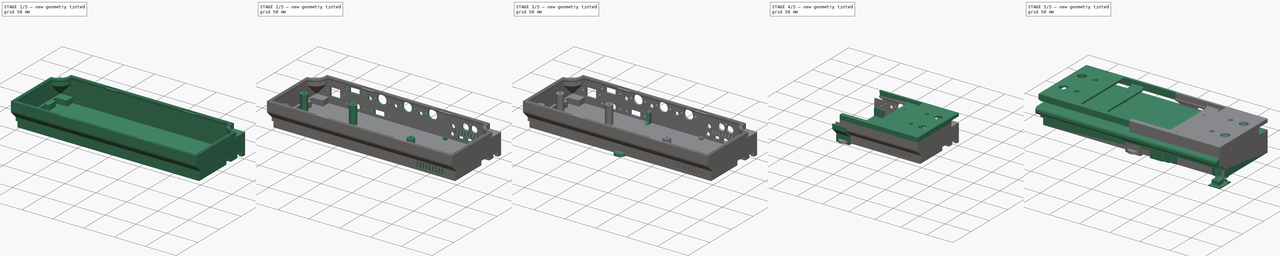
[diagram: build sequence overview — one tinted view per stage of 5, left to right]
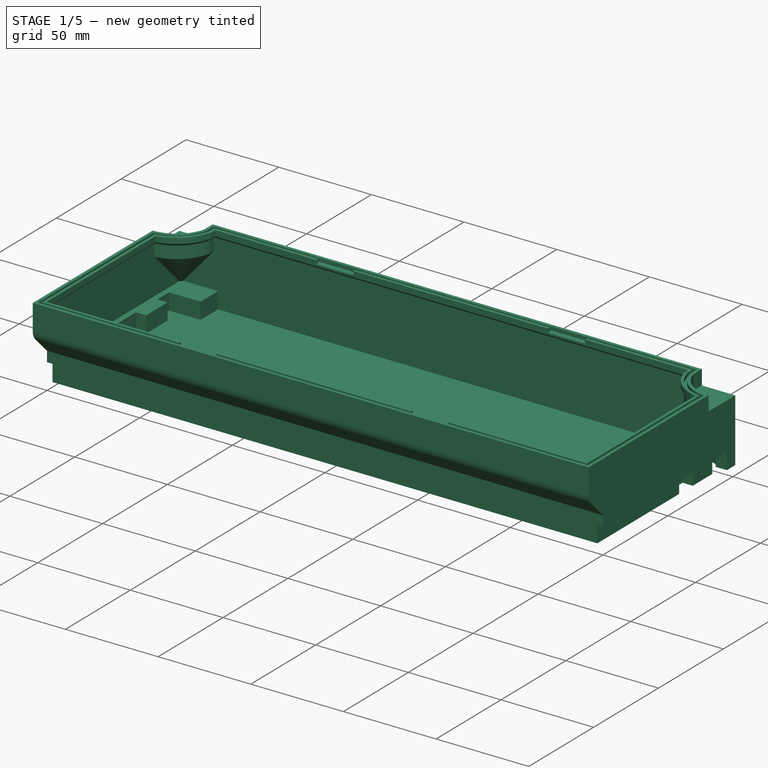
[diagram: stage 1 of 5 — iso view after this stage's code; geometry added in this stage tinted green]
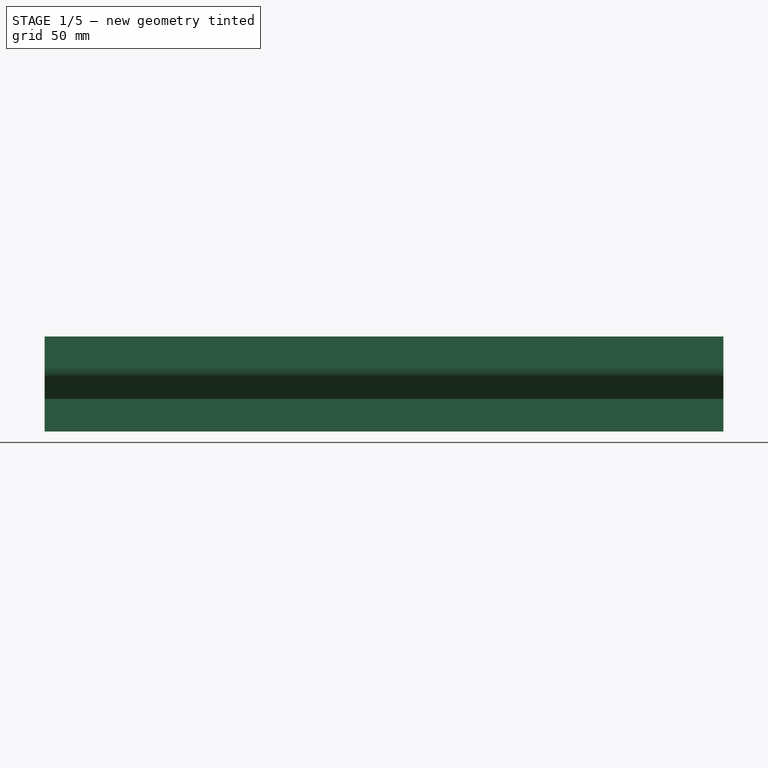
[diagram: stage 1 of 5 — front view after this stage's code; geometry added in this stage tinted green]
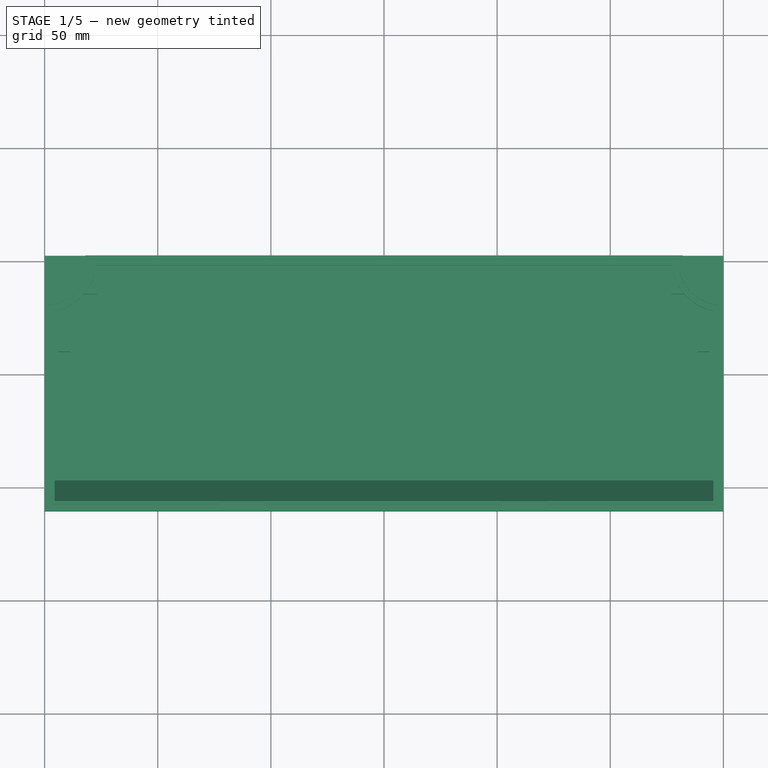
[diagram: stage 1 of 5 — top view after this stage's code; geometry added in this stage tinted green]
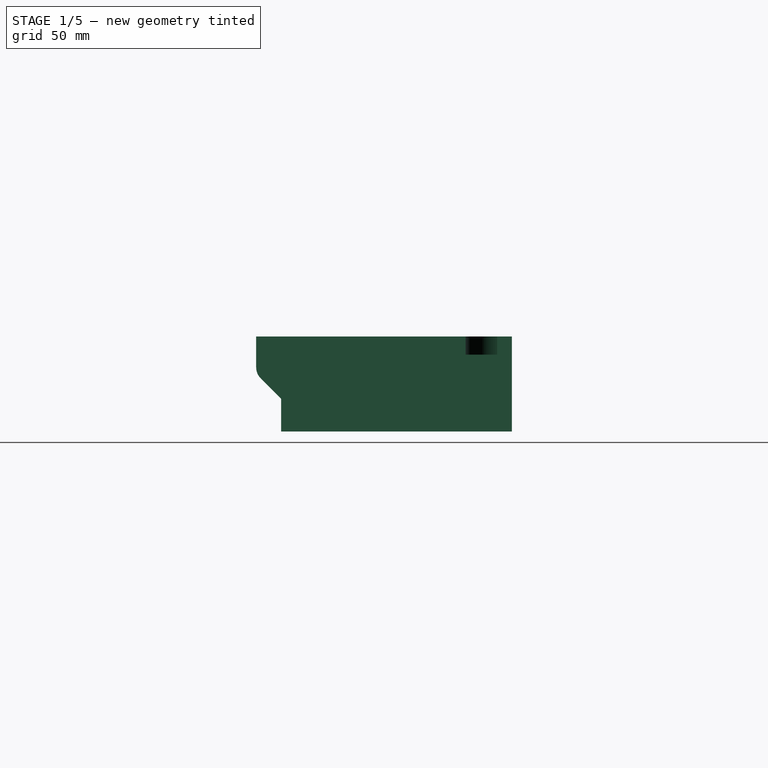
[diagram: stage 1 of 5 — right view after this stage's code; geometry added in this stage tinted green]
FCSTD DOCUMENT  (FreeCAD 0.21R33771 (Git))
Label: MyZynthian-Boutique
License: All rights reserved
LicenseURL: http://en.wikipedia.org/wiki/All_rights_reserved
objects: Part::Feature×69, Sketcher::SketchObject×39, App::Part×35, PartDesign::Pad×18, PartDesign::Body×17, PartDesign::Pocket×11, PartDesign::FeatureBase×9, App::Link×7, App::DocumentObjectGroup×6, Part::FeaturePython×6, PartDesign::Plane×5, App::LinkGroup×2, PartDesign::Thickness×2, PartDesign::AdditiveLoft×2, PartDesign::ShapeBinder×2, Part::Compound2×1, PartDesign::Revolution×1, Part::Offset2D×1, Part::Extrusion×1, PartDesign::AdditivePipe×1, +5 more types
note: 226 computed .brp shape members not serialized (recipe doc carries the construction recipe); baked Part::Feature solids carry a one-line shape summary decoded from their .brp

FEATURE [PartDesign::Body] Body010  label="SplitPlane"
  Group = -> [Sketch015,Pad008]
  Origin = -> Origin042
  Tip = -> Pad008
FEATURE [Sketcher::SketchObject] Sketch018
  ExternalGeometry = -> [Thickness]
  FullyConstrained = true
  MapMode = 5
  Placement = pos=(0,0,4e-16) rot=(1,0,0;3.14159rad)
  Support = -> [Thickness]
  sketch-geometry (4):
    g0: ArcOfCircle CenterX=139.7 CenterY=-94 CenterZ=0 NormalX=0 NormalY=0 NormalZ=1 AngleXU=0 Radius=4.5 StartAngle=3.48143 EndAngle=5.94335
    g1: LineSegment StartX=135.457 StartY=-95.5 StartZ=0 EndX=143.943 EndY=-95.5 EndZ=0
    g2: ArcOfCircle CenterX=-139.7 CenterY=-94 CenterZ=0 NormalX=0 NormalY=0 NormalZ=1 AngleXU=0 Radius=4.5 StartAngle=3.48143 EndAngle=5.94335
    g3: LineSegment StartX=-143.943 StartY=-95.5 StartZ=0 EndX=-135.457 EndY=-95.5 EndZ=0
  constraints (14):
    c: PointOnObject(g0,g-3)
    c: PointOnObject(g0,g-3)
    c: Radius(g0) = 4.5
    c: DistanceX(g0,g-4) = 10.3
    c: DistanceY(g-5,g0) = 8
    c: Coincident(g1,g0)
    c: Coincident(g1,g0)
    c: PointOnObject(g2,g-7)
    c: PointOnObject(g2,g-7)
    c: Horizontal(g2,g0)
    c: Equal(g0,g2)
    c: DistanceX(g-6,g2) = 10.3
    c: Coincident(g3,g2)
    c: Coincident(g3,g2)
FEATURE [Sketcher::SketchObject] Sketch019
  ExternalGeometry = -> [Thickness]
  FullyConstrained = true
  MapMode = 5
  Placement = pos=(-8e-16,1.3e-15,3) rot=(0,0,1;0rad)
  Support = -> [Thickness]
  sketch-geometry (8):
    g0: LineSegment StartX=-147 StartY=98.5 StartZ=0 EndX=-127 EndY=98.5 EndZ=0
    g1: LineSegment StartX=-127 StartY=98.5 StartZ=0 EndX=-127 EndY=99 EndZ=0
    g2: LineSegment StartX=-127 StartY=99 StartZ=0 EndX=-147 EndY=99 EndZ=0
    g3: LineSegment StartX=-147 StartY=99 StartZ=0 EndX=-147 EndY=98.5 EndZ=0
    g4: LineSegment StartX=127 StartY=98.5 StartZ=0 EndX=147 EndY=98.5 EndZ=0
    g5: LineSegment StartX=147 StartY=98.5 StartZ=0 EndX=147 EndY=99 EndZ=0
    g6: LineSegment StartX=147 StartY=99 StartZ=0 EndX=127 EndY=99 EndZ=0
    g7: LineSegment StartX=127 StartY=99 StartZ=0 EndX=127 EndY=98.5 EndZ=0
  constraints (20):
    c: Coincident(g0,g1)
    c: Coincident(g1,g2)
    c: Coincident(g2,g3)
    c: Coincident(g3,g0)
    c: Horizontal(g2)
    c: Vertical(g1)
    c: Vertical(g3)
    c: Coincident(g0,g-4)
    c: PointOnObject(g1,g-5)
    c: Coincident(g0,g-3)
    c: Coincident(g4,g5)
    c: Coincident(g5,g6)
    c: Coincident(g6,g7)
    c: Coincident(g7,g4)
    c: Horizontal(g4)
    c: Horizontal(g6)
    c: Vertical(g5)
    c: Vertical(g7)
    c: Coincident(g4,g-6)
    c: Coincident(g5,g-7)
FEATURE [PartDesign::Pad] Pad010  label="BottomGapFill"
  BaseFeature = -> Thickness
  Direction = (-1.1e-15,8e-16,1)
  Length = 9
  Length2 = 10
  Profile = -> Sketch019
  ReferenceAxis = -> Sketch019 [N_Axis]
  Type = 0
FEATURE [PartDesign::Pocket] Pocket005  label="Bottom Cutout Screwhole"
  BaseFeature = -> Pad010
  Direction = (-1.1e-15,8e-16,1)
  Length = 8.9
  Length2 = 5
  Profile = -> Sketch018
  ReferenceAxis = -> Sketch018 [N_Axis]
  Type = 0
FEATURE [Sketcher::SketchObject] Sketch020  label="LeftCutout Sketch"
  ExternalGeometry = -> [Pocket005]
  FullyConstrained = true
  MapMode = 5
  Placement = pos=(-2.26e-14,2.23e-14,31) rot=(1,0,0;3.14159rad)
  Support = -> [Pocket005]
  sketch-geometry (4):
    g0: LineSegment StartX=-129 StartY=-95.1392 StartZ=0 EndX=-129 EndY=-99 EndZ=0
    g1: LineSegment StartX=-129 StartY=-99 StartZ=0 EndX=-147 EndY=-99 EndZ=0
    g2: LineSegment StartX=-147 StartY=-99 StartZ=0 EndX=-147 EndY=-78.7096 EndZ=0
    g3: ArcOfCircle CenterX=-150 CenterY=-100.071 CenterZ=0 NormalX=0 NormalY=0 NormalZ=1 AngleXU=0 Radius=21.5714 StartAngle=0.230685 EndAngle=1.43127
  constraints (9):
    c: Coincident(g-6,g0)
    c: Coincident(g0,g-5)
    c: Coincident(g0,g1)
    c: Coincident(g1,g-4)
    c: Coincident(g1,g2)
    c: Coincident(g2,g-6)
    c: Coincident(g3,g0)
    c: Coincident(g3,g2)
    c: Equal(g3,g-6)
FEATURE [Sketcher::SketchObject] Sketch021  label="RightCutout Sketch"
  ExternalGeometry = -> [Pocket005]
  FullyConstrained = true
  MapMode = 5
  Placement = pos=(-2.26e-14,2.23e-14,31) rot=(1,0,0;3.14159rad)
  Support = -> [Pocket005]
  sketch-geometry (4):
    g0: LineSegment StartX=129 StartY=-95.1392 StartZ=0 EndX=129 EndY=-99 EndZ=0
    g1: LineSegment StartX=129 StartY=-99 StartZ=0 EndX=147 EndY=-99 EndZ=0
    g2: LineSegment StartX=147 StartY=-99 StartZ=0 EndX=147 EndY=-78.7096 EndZ=0
    g3: ArcOfCircle CenterX=150 CenterY=-100.071 CenterZ=0 NormalX=0 NormalY=0 NormalZ=1 AngleXU=0 Radius=21.5714 StartAngle=1.71032 EndAngle=2.91091
  constraints (9):
    c: Coincident(g-6,g0)
    c: Coincident(g0,g-6)
    c: Coincident(g0,g1)
    c: Coincident(g1,g-4)
    c: Coincident(g1,g2)
    c: Coincident(g2,g-5)
    c: Coincident(g3,g0)
    c: Coincident(g3,g2)
    c: Equal(g-5,g3)
FEATURE [Sketcher::SketchObject] Sketch022
  ExternalGeometry = -> [Pocket005]
  FullyConstrained = true
  MapMode = 5
  Placement = pos=(-147,3.23e-14,-3.23e-14) rot=(0.57735,0.57735,0.57735;2.0944rad)
  Support = -> [Pocket005]
  sketch-geometry (2):
    g0: LineSegment StartX=99 StartY=31 StartZ=0 EndX=99 EndY=10.7096 EndZ=0
    g1: LineSegment StartX=78.7096 StartY=31 StartZ=0 EndX=99 EndY=31 EndZ=0
  constraints (5):
    c: Coincident(g0,g-3)
    c: PointOnObject(g0,g-3)
    c: Coincident(g1,g-4)
    c: Coincident(g1,g0)
    c: Equal(g0,g1)
FEATURE [PartDesign::AdditiveLoft] AdditiveLoft  label="LeftCutoutSupport"
  BaseFeature = -> Pocket005
  Closed = false
  Profile = -> Sketch022 [Vertex3]
  Ruled = false
  Sections = -> [Sketch020]
FEATURE [Sketcher::SketchObject] Sketch023
  ExternalGeometry = -> [Sketch021,AdditiveLoft]
  FullyConstrained = true
  MapMode = 5
  Placement = pos=(147,-3.23e-14,3.23e-14) rot=(-0.57735,0.57735,0.57735;4.18879rad)
  Support = -> [AdditiveLoft]
  sketch-geometry (2):
    g0: LineSegment StartX=-95.1392 StartY=42 StartZ=0 EndX=-95.1392 EndY=22.228 EndZ=0
    g1: LineSegment StartX=-95.1392 StartY=42 StartZ=0 EndX=-78.7096 EndY=31 EndZ=0
  constraints (5):
    c: Coincident(g0,g-4)
    c: PointOnObject(g0,g-4)
    c: Coincident(g1,g0)
    c: Coincident(g1,g-3)
    c: Equal(g1,g0)
FEATURE [PartDesign::AdditiveLoft] AdditiveLoft001  label="RightCutoutSupport"
  BaseFeature = -> AdditiveLoft
  Closed = false
  Profile = -> Sketch023 [Vertex3]
  Ruled = false
  Sections = -> [Sketch021]
FEATURE [Sketcher::SketchObject] Sketch024
  ExternalGeometry = -> [AdditiveLoft001]
  FullyConstrained = true
  MapMode = 5
  Placement = pos=(0,0,0) rot=(0.57735,0.57735,0.57735;2.0944rad)
  Support = -> [YZ_Plane037]
  sketch-geometry (4):
    g0: LineSegment StartX=-8 StartY=37.6 StartZ=0 EndX=-6.6 EndY=39 EndZ=0
    g1: LineSegment StartX=-6.6 StartY=39 StartZ=0 EndX=-6.6 EndY=42 EndZ=0
    g2: LineSegment StartX=-6.6 StartY=42 StartZ=0 EndX=-8 EndY=42 EndZ=0
    g3: LineSegment StartX=-8 StartY=42 StartZ=0 EndX=-8 EndY=37.6 EndZ=0
  constraints (11):
    c: PointOnObject(g0,g-3)
    c: Coincident(g0,g1)
    c: Coincident(g1,g2)
    c: Coincident(g2,g-3)
    c: Coincident(g2,g3)
    c: Coincident(g3,g0)
    c: Horizontal(g2)
    c: Vertical(g1)
    c: Angle(g0,g3) = 0.785398
    c: DistanceY(g1,g1) = 3
    c: DistanceX(g-4,g1) = 4.4
FEATURE [PartDesign::AdditivePipe] AdditivePipe  label="TopRim"
  AuxilleryCurvelinear = true
  AuxillerySpineTangent = false
  BaseFeature = -> AdditiveLoft001
  Binormal = (0,0,0)
  Mode = 0
  Profile = -> Sketch024
  Spine = -> AdditiveLoft001 [Edge104,Edge103,Edge102,Edge101,Edge108,Edge107,Edge106,Edge105]
  SpineTangent = false
  Transformation = 1
  Transition = 1
FEATURE [PartDesign::Body] Body013  label="TopCover Cutout Clone"
  Group = -> [Clone007]
  Origin = -> Origin045
  Tip = -> Clone007
FEATURE [PartDesign::FeatureBase] Clone007
  BaseFeature = -> Cut
FEATURE [PartDesign::Boolean] Boolean  label="TopCover Rim Cutout"
  BaseFeature = -> AdditivePipe
  Group = -> [Body013]
  Type = 1
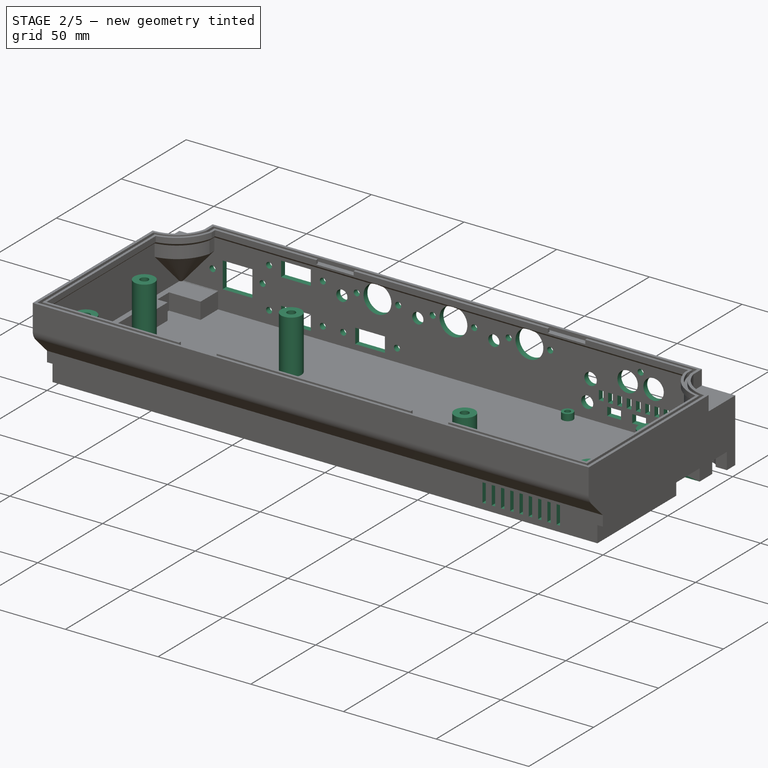
[diagram: stage 2 of 5 — iso view after this stage's code; geometry added in this stage tinted green]
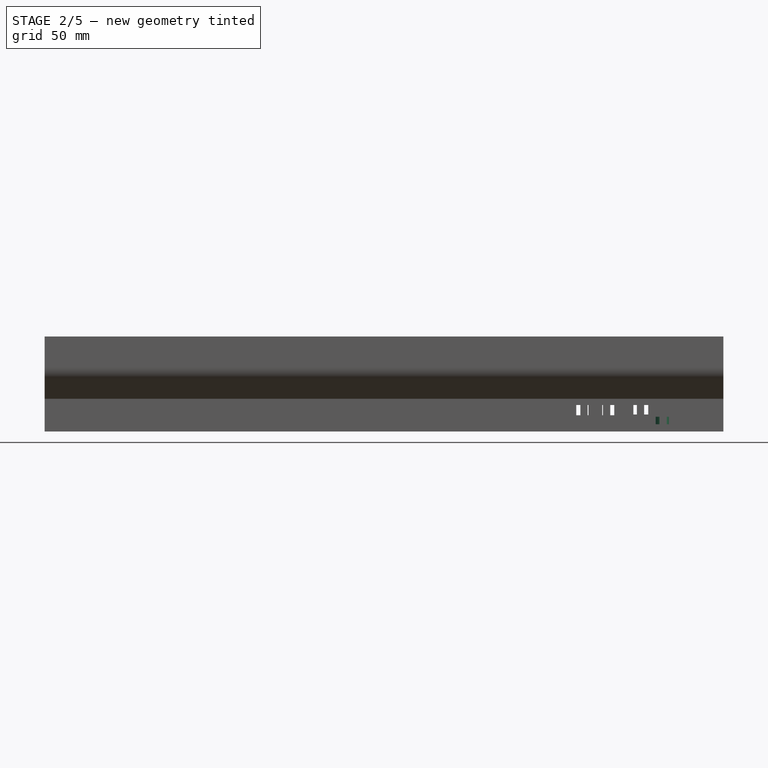
[diagram: stage 2 of 5 — front view after this stage's code; geometry added in this stage tinted green]
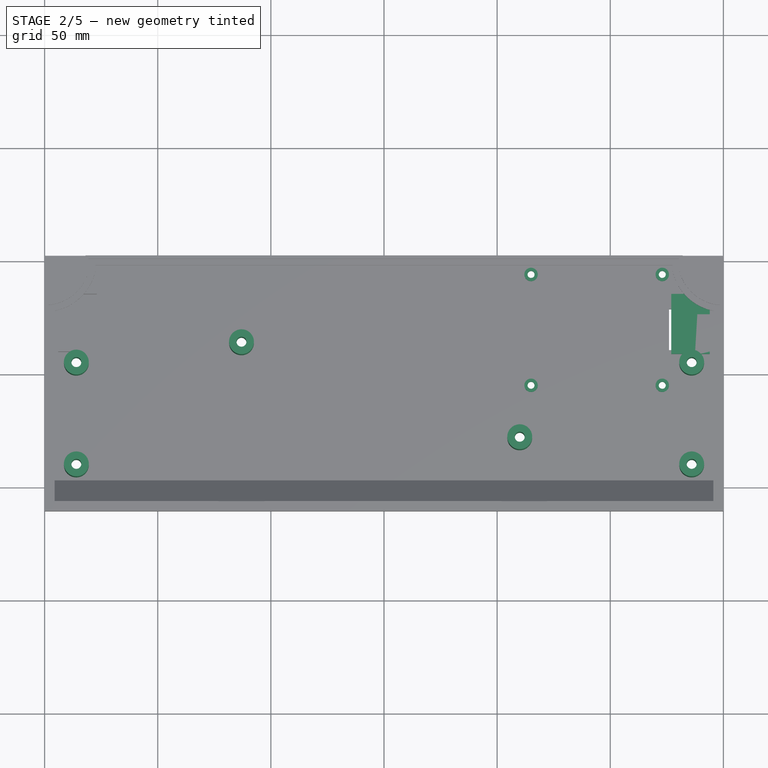
[diagram: stage 2 of 5 — top view after this stage's code; geometry added in this stage tinted green]
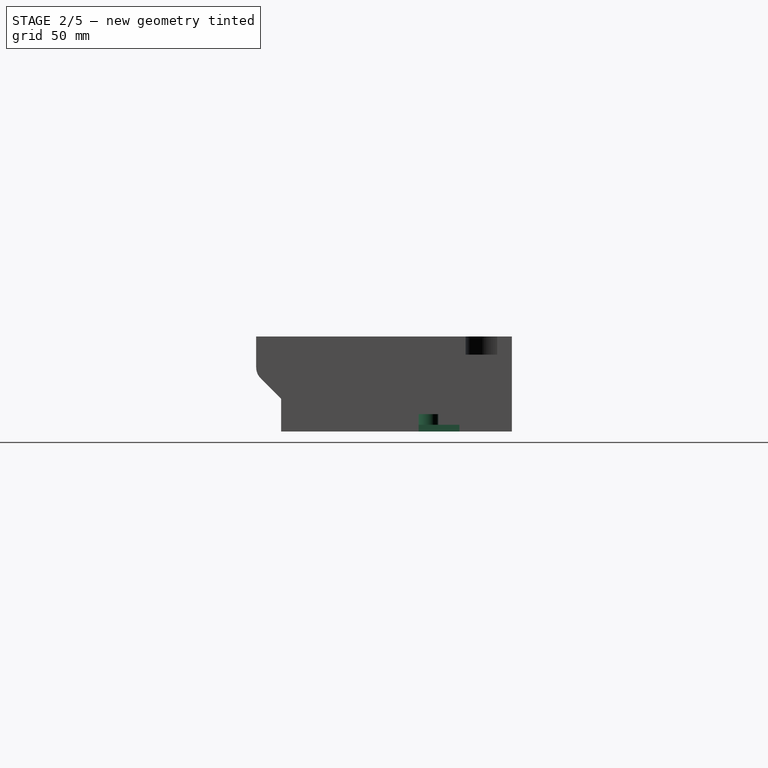
[diagram: stage 2 of 5 — right view after this stage's code; geometry added in this stage tinted green]
FEATURE [Sketcher::SketchObject] Sketch025
  ExternalGeometry = -> [Boolean]
  FullyConstrained = true
  MapMode = 5
  Placement = pos=(-1.18e-14,1.85e-14,42) rot=(0,0,1;0rad)
  Support = -> [Boolean]
  sketch-geometry (32):
    g0: LineSegment StartX=-148.5 StartY=80.0636 StartZ=0 EndX=-148.5 EndY=-9.5 EndZ=0
    g1: LineSegment StartX=-148.5 StartY=-9.5 StartZ=0 EndX=148.5 EndY=-9.5 EndZ=0
    g2: LineSegment StartX=148.5 StartY=-9.5 StartZ=0 EndX=148.5 EndY=80.0636 EndZ=0
    g3: LineSegment StartX=130.5 StartY=95.3476 StartZ=0 EndX=130.5 EndY=100.5 EndZ=0
    g4: LineSegment StartX=130.5 StartY=100.5 StartZ=0 EndX=-130.5 EndY=100.5 EndZ=0
    g5: LineSegment StartX=-130.5 StartY=100.5 StartZ=0 EndX=-130.5 EndY=95.3476 EndZ=0
    g6: ArcOfCircle CenterX=150 CenterY=100.071 CenterZ=0 NormalX=0 NormalY=0 NormalZ=1 AngleXU=0 Radius=20.064 StartAngle=3.37926 EndAngle=4.63756
    g7: ArcOfCircle CenterX=-150 CenterY=100.071 CenterZ=0 NormalX=0 NormalY=0 NormalZ=1 AngleXU=0 Radius=20.064 StartAngle=4.78722 EndAngle=6.04551
    g8: LineSegment StartX=-146.95 StartY=78.6531 StartZ=0 EndX=-146.95 EndY=-7.95 EndZ=0
    g9: LineSegment StartX=-146.95 StartY=-7.95 StartZ=0 EndX=-73.1 EndY=-7.95 EndZ=0
    g10: LineSegment StartX=-73.1 StartY=-7.95 StartZ=0 EndX=-73.1 EndY=-6.6 EndZ=0
    g11: LineSegment StartX=-73.1 StartY=-6.6 StartZ=0 EndX=-52.9 EndY=-6.6 EndZ=0
    g12: LineSegment StartX=-52.9 StartY=-6.6 StartZ=0 EndX=-52.9 EndY=-7.95 EndZ=0
    g13: LineSegment StartX=-52.9 StartY=-7.95 StartZ=0 EndX=51.9 EndY=-7.95 EndZ=0
    g14: LineSegment StartX=51.9 StartY=-7.95 StartZ=0 EndX=51.9 EndY=-6.6 EndZ=0
    g15: LineSegment StartX=51.9 StartY=-6.6 StartZ=0 EndX=72.1 EndY=-6.6 EndZ=0
    g16: LineSegment StartX=72.1 StartY=-6.6 StartZ=0 EndX=72.1 EndY=-7.95 EndZ=0
    g17: LineSegment StartX=72.1 StartY=-7.95 StartZ=0 EndX=146.95 EndY=-7.95 EndZ=0
    g18: LineSegment StartX=146.95 StartY=-7.95 StartZ=0 EndX=146.95 EndY=78.6531 EndZ=0
    g19: ArcOfCircle CenterX=-150 CenterY=100.071 CenterZ=0 NormalX=0 NormalY=0 NormalZ=1 AngleXU=0 Radius=21.6344 StartAngle=4.85384 EndAngle=6.05023
    g20: ArcOfCircle CenterX=150 CenterY=100.071 CenterZ=0 NormalX=0 NormalY=0 NormalZ=1 AngleXU=0 Radius=21.6344 StartAngle=3.37454 EndAngle=4.57094
    g21: LineSegment StartX=128.95 StartY=95.0771 StartZ=0 EndX=128.95 EndY=98.95 EndZ=0
    g22: LineSegment StartX=128.95 StartY=98.95 StartZ=0 EndX=72.1 EndY=98.95 EndZ=0
    g23: LineSegment StartX=72.1 StartY=98.95 StartZ=0 EndX=72.1 EndY=97.6 EndZ=0
    g24: LineSegment StartX=72.1 StartY=97.6 StartZ=0 EndX=51.9 EndY=97.6 EndZ=0
    g25: LineSegment StartX=51.9 StartY=97.6 StartZ=0 EndX=51.9 EndY=98.95 EndZ=0
    g26: LineSegment StartX=51.9 StartY=98.95 StartZ=0 EndX=-52.9 EndY=98.95 EndZ=0
    g27: LineSegment StartX=-52.9 StartY=98.95 StartZ=0 EndX=-52.9 EndY=97.6 EndZ=0
    g28: LineSegment StartX=-52.9 StartY=97.6 StartZ=0 EndX=-73.1 EndY=97.6 EndZ=0
    g29: LineSegment StartX=-73.1 StartY=97.6 StartZ=0 EndX=-73.1 EndY=98.95 EndZ=0
    g30: LineSegment StartX=-73.1 StartY=98.95 StartZ=0 EndX=-128.95 EndY=98.95 EndZ=0
    g31: LineSegment StartX=-128.95 StartY=98.95 StartZ=0 EndX=-128.95 EndY=95.0771 EndZ=0
  constraints (96):
    c: Vertical(g0)
    c: Coincident(g0,g1)
    c: Horizontal(g1)
    c: Coincident(g1,g2)
    c: Vertical(g2)
    c: Vertical(g3)
    c: Coincident(g3,g4)
    c: Horizontal(g4)
    c: Coincident(g4,g5)
    c: Vertical(g5)
    c: Coincident(g6,g3)
    c: Coincident(g6,g2)
    c: Coincident(g7,g5)
    c: Coincident(g7,g0)
    c: DistanceY(g-5,g4) = 0.1
    c: DistanceY(g-9,g0) = 0.1
    c: Coincident(g-7,g7)
    c: DistanceX(g4,g-5) = 0.1
    c: DistanceX(g-5,g3) = 0.1
    c: Coincident(g6,g-22)
    c: DistanceY(g-20,g2) = 0.1
    c: DistanceX(g-20,g2) = 0.1
    c: DistanceY(g1,g-19) = 0.1
    c: DistanceX(g0,g-10) = 0.1
    c: Vertical(g8)
    c: Coincident(g8,g9)
    c: Horizontal(g9)
    c: Coincident(g9,g10)
    c: Coincident(g10,g11)
    c: Horizontal(g11)
    c: Coincident(g11,g12)
    c: Coincident(g12,g13)
    c: Coincident(g13,g14)
    c: Coincident(g14,g15)
    c: Horizontal(g15)
    c: Coincident(g15,g16)
    c: Coincident(g16,g17)
    c: Horizontal(g17)
    c: Coincident(g17,g18)
    c: Vertical(g18)
    c: Horizontal(g11,g14)
    c: Vertical(g12)
    c: Vertical(g14)
    c: Vertical(g10)
    c: Horizontal(g12,g9)
    c: Horizontal(g10,g-12)
    c: Horizontal(g13)
    c: DistanceX(g14,g-15) = 0.1
    c: DistanceX(g-16,g15) = 0.1
    c: Vertical(g16)
    c: Horizontal(g16,g13)
    c: DistanceX(g17,g-18) = 0.1
    c: DistanceX(g10,g-12) = 0.1
    c: DistanceX(g-13,g11) = 0.1
    c: DistanceX(g-11,g8) = 0.1
    c: DistanceY(g-11,g8) = 0.1
    c: Coincident(g19,g8)
    c: Coincident(g20,g18)
    c: Coincident(g21,g22)
    c: Horizontal(g22)
    c: Coincident(g22,g23)
    c: Vertical(g23)
    c: Coincident(g23,g24)
    c: Horizontal(g24)
    c: Coincident(g24,g25)
    c: Vertical(g25)
    c: Coincident(g25,g26)
    c: Horizontal(g26)
    c: Coincident(g26,g27)
    c: Vertical(g27)
    c: Coincident(g27,g28)
    c: Horizontal(g28)
    c: Coincident(g28,g29)
    c: Vertical(g29)
    c: Coincident(g29,g30)
    c: Horizontal(g30)
    c: Coincident(g30,g31)
    c: Coincident(g31,g19)
    c: Vertical(g31)
    c: Coincident(g19,g7)
    c: DistanceY(g8,g-8) = 0.1
    c: DistanceX(g-6,g30) = 0.1
    c: DistanceY(g30,g-6) = 0.1
    c: Horizontal(g26,g29)
    c: Horizontal(g28,g-28)
    c: Horizontal(g24,g-25)
    c: Horizontal(g22,g25)
    c: Vertical(g21)
    c: DistanceY(g18,g-22) = 0.1
    c: DistanceX(g21,g-23) = 0.1
    c: Coincident(g21,g20)
    c: Coincident(g6,g20)
    c: DistanceX(g-24,g23) = 0.1
    c: DistanceX(g24,g-25) = 0.1
    c: DistanceX(g-27,g27) = 0.1
    c: DistanceX(g28,g-28) = 0.1
FEATURE [PartDesign::Pocket] Pocket006  label="TopCover Rim Clearance Cutout"
  BaseFeature = -> Boolean
  Direction = (3e-16,-4e-16,-1)
  Length = 2.1
  Length2 = 5
  Profile = -> Sketch025
  ReferenceAxis = -> Sketch025 [N_Axis]
  Type = 0
FEATURE [Sketcher::SketchObject] Sketch026
  ExternalGeometry = -> [Pocket006]
  FullyConstrained = true
  MapMode = 5
  Placement = pos=(-8e-16,1.3e-15,3) rot=(0,0,1;0rad)
  Support = -> [Pocket006]
  sketch-geometry (8):
    g0: LineSegment StartX=144 StartY=76.5 StartZ=0 EndX=144 EndY=85.5 EndZ=0
    g1: LineSegment StartX=144 StartY=85.5 StartZ=0 EndX=127 EndY=85.5 EndZ=0
    g2: LineSegment StartX=127 StartY=85.5 StartZ=0 EndX=127 EndY=59 EndZ=0
    g3: LineSegment StartX=127 StartY=59 StartZ=0 EndX=144 EndY=59 EndZ=0
    g4: LineSegment StartX=144 StartY=59 StartZ=0 EndX=144 EndY=60 EndZ=0
    g5: LineSegment StartX=144 StartY=60 StartZ=0 EndX=138.5 EndY=60 EndZ=0
    g6: LineSegment StartX=138.5 StartY=60 StartZ=0 EndX=138.5 EndY=76.5 EndZ=0
    g7: LineSegment StartX=138.5 StartY=76.5 StartZ=0 EndX=144 EndY=76.5 EndZ=0
  constraints (21):
    c: Coincident(g0,g1)
    c: Horizontal(g1)
    c: Coincident(g1,g2)
    c: Vertical(g2)
    c: Coincident(g2,g3)
    c: Horizontal(g3)
    c: Coincident(g3,g4)
    c: Coincident(g4,g5)
    c: Coincident(g5,g6)
    c: Coincident(g6,g7)
    c: Coincident(g7,g0)
    c: DistanceY(g4,g4) = 1
    c: DistanceX(g1,g1) = 17
    c: Vertical(g4)
    c: Coincident(g0,g-3)
    c: Vertical(g0)
    c: Coincident(g6,g-4)
    c: Coincident(g5,g-4)
    c: Horizontal(g5)
    c: Horizontal(g7)
    c: Vertical(g4,g0)
FEATURE [PartDesign::Pad] Pad011  label="SDCard Pad"
  BaseFeature = -> Pocket006
  Direction = (-3e-16,4e-16,1)
  Length = 9
  Length2 = 10
  Profile = -> Sketch026
  ReferenceAxis = -> Sketch026 [N_Axis]
  Type = 0
FEATURE [Sketcher::SketchObject] Sketch027
  ExternalGeometry = -> [Pad011]
  FullyConstrained = true
  MapMode = 5
  Placement = pos=(0,0,4e-16) rot=(1,0,0;3.14159rad)
  Support = -> [Pad011]
  sketch-geometry (9):
    g0: Circle CenterX=123 CenterY=-94.2 CenterZ=0 NormalX=0 NormalY=0 NormalZ=1 AngleXU=0 Radius=1.55
    g1: Circle CenterX=123 CenterY=-45.2 CenterZ=0 NormalX=0 NormalY=0 NormalZ=1 AngleXU=0 Radius=1.55
    g2: Circle CenterX=65 CenterY=-45.2 CenterZ=0 NormalX=0 NormalY=0 NormalZ=1 AngleXU=0 Radius=1.55
    g3: Circle CenterX=65 CenterY=-94.2 CenterZ=0 NormalX=0 NormalY=0 NormalZ=1 AngleXU=0 Radius=1.55
    g4: LineSegment StartX=126 StartY=-60.8 StartZ=0 EndX=150 EndY=-60.8 EndZ=0
    g5: LineSegment StartX=150 StartY=-60.8 StartZ=0 EndX=150 EndY=-78.8 EndZ=0
    g6: LineSegment StartX=150 StartY=-78.8 StartZ=0 EndX=126 EndY=-78.8 EndZ=0
    g7: LineSegment StartX=126 StartY=-78.8 StartZ=0 EndX=126 EndY=-60.8 EndZ=0
    g8: GeomPoint X=150 Y=-69.8 Z=0
  constraints (25):
    c: Horizontal(g2,g1)
    c: Horizontal(g0,g3)
    c: Vertical(g2,g3)
    c: Vertical(g0,g1)
    c: DistanceX(g2,g1) = 58
    c: DistanceY(g3,g2) = 49
    c: Coincident(g4,g5)
    c: Coincident(g5,g6)
    c: Coincident(g6,g7)
    c: Coincident(g7,g4)
    c: Horizontal(g4)
    c: Horizontal(g6)
    c: Vertical(g5)
    c: Vertical(g7)
    c: DistanceX(g4,g4) = 24
    c: DistanceY(g7,g7) = 18
    c: Symmetric(g5,g4,g8)
    c: Diameter(g2) = 3.1
    c: Equal(g2,g3)
    c: Equal(g3,g0)
    c: Equal(g0,g1)
    c: Vertical(g-3,g8)
    c: DistanceY(g-3,g0) = 7.8
    c: DistanceY(g0,g8) = 24.4
    c: DistanceX(g0,g-3) = 27
FEATURE [PartDesign::Pocket] Pocket007  label="RPi Mount Bottom Cutout"
  BaseFeature = -> Pad011
  Direction = (-3e-16,4e-16,1)
  Length = 7.7
  Length2 = 5
  Profile = -> Sketch027
  ReferenceAxis = -> Sketch027 [N_Axis]
  Type = 0
FEATURE [Sketcher::SketchObject] Sketch028
  ExternalGeometry = -> [Pocket007]
  FullyConstrained = true
  MapMode = 5
  Placement = pos=(-8e-16,1.3e-15,3) rot=(0,0,1;0rad)
  Support = -> [Pocket007]
  sketch-geometry (8):
    g0: Circle CenterX=65 CenterY=94.2 CenterZ=0 NormalX=0 NormalY=0 NormalZ=1 AngleXU=0 Radius=1.55
    g1: Circle CenterX=65 CenterY=94.2 CenterZ=0 NormalX=0 NormalY=0 NormalZ=1 AngleXU=0 Radius=2.95
    g2: Circle CenterX=65 CenterY=45.2 CenterZ=0 NormalX=0 NormalY=0 NormalZ=1 AngleXU=0 Radius=1.55
    g3: Circle CenterX=65 CenterY=45.2 CenterZ=0 NormalX=0 NormalY=0 NormalZ=1 AngleXU=0 Radius=2.95
    g4: Circle CenterX=123 CenterY=45.2 CenterZ=0 NormalX=0 NormalY=0 NormalZ=1 AngleXU=0 Radius=1.55
    g5: Circle CenterX=123 CenterY=45.2 CenterZ=0 NormalX=0 NormalY=0 NormalZ=1 AngleXU=0 Radius=2.95
    g6: Circle CenterX=123 CenterY=94.2 CenterZ=0 NormalX=0 NormalY=0 NormalZ=1 AngleXU=0 Radius=1.55
    g7: Circle CenterX=123 CenterY=94.2 CenterZ=0 NormalX=0 NormalY=0 NormalZ=1 AngleXU=0 Radius=2.95
  constraints (16):
    c: Coincident(g1,g0)
    c: Coincident(g3,g2)
    c: Coincident(g5,g4)
    c: Coincident(g7,g6)
    c: Equal(g1,g7)
    c: Equal(g7,g5)
    c: Equal(g5,g3)
    c: Diameter(g3) = 5.9
    c: Equal(g2,g4)
    c: Equal(g4,g0)
    c: Equal(g0,g6)
    c: Coincident(g-3,g0)
    c: Equal(g0,g-3)
    c: Coincident(g-4,g2)
    c: Coincident(g-5,g4)
    c: Coincident(g-6,g6)
FEATURE [PartDesign::Pad] Pad012  label="RPi Posts"
  BaseFeature = -> Pocket007
  Direction = (-3e-16,4e-16,1)
  Length = 3.5
  Length2 = 10
  Profile = -> Sketch028
  ReferenceAxis = -> Sketch028 [N_Axis]
  Type = 0
FEATURE [Sketcher::SketchObject] Sketch029
  ExternalGeometry = -> [Pad012]
  FullyConstrained = true
  MapMode = 5
  Placement = pos=(4.49e-14,102,-2.24e-14) rot=(0,0.707107,0.707107;3.14159rad)
  Support = -> [Pad012]
  sketch-geometry (117):
    g0: Circle CenterX=-41 CenterY=31 CenterZ=0 NormalX=0 NormalY=0 NormalZ=1 AngleXU=0 Radius=7.5
    g1: Circle CenterX=0 CenterY=31 CenterZ=0 NormalX=0 NormalY=0 NormalZ=1 AngleXU=0 Radius=7.5
    g2: Circle CenterX=41 CenterY=31 CenterZ=0 NormalX=0 NormalY=0 NormalZ=1 AngleXU=0 Radius=7.5
    g3: Circle CenterX=-52.2 CenterY=31 CenterZ=0 NormalX=0 NormalY=0 NormalZ=1 AngleXU=0 Radius=1.6
    g4: Circle CenterX=-29.8 CenterY=31 CenterZ=0 NormalX=0 NormalY=0 NormalZ=1 AngleXU=0 Radius=1.6
    g5: Circle CenterX=-11.2 CenterY=31 CenterZ=0 NormalX=0 NormalY=0 NormalZ=1 AngleXU=0 Radius=1.6
    g6: Circle CenterX=11.2 CenterY=31 CenterZ=0 NormalX=0 NormalY=0 NormalZ=1 AngleXU=0 Radius=1.6
    g7: Circle CenterX=29.8 CenterY=31 CenterZ=0 NormalX=0 NormalY=0 NormalZ=1 AngleXU=0 Radius=1.6
    g8: Circle CenterX=-21.8 CenterY=27.5 CenterZ=0 NormalX=0 NormalY=0 NormalZ=1 AngleXU=0 Radius=3
    g9: Circle CenterX=19.2 CenterY=27.5 CenterZ=0 NormalX=0 NormalY=0 NormalZ=1 AngleXU=0 Radius=3
    g10: Circle CenterX=60.2 CenterY=27.5 CenterZ=0 NormalX=0 NormalY=0 NormalZ=1 AngleXU=0 Radius=3
    g11: Circle CenterX=52.2 CenterY=31 CenterZ=0 NormalX=0 NormalY=0 NormalZ=1 AngleXU=0 Radius=1.6
    g12: Circle CenterX=-108 CenterY=26.8 CenterZ=0 NormalX=0 NormalY=0 NormalZ=1 AngleXU=0 Radius=5.5
    g13: Circle CenterX=-94 CenterY=26.8 CenterZ=0 NormalX=0 NormalY=0 NormalZ=1 AngleXU=0 Radius=5.5
    g14: Circle CenterX=-74 CenterY=22.8 CenterZ=0 NormalX=0 NormalY=0 NormalZ=1 AngleXU=0 Radius=3.35
    g15: Circle CenterX=-72.2 CenterY=11 CenterZ=0 NormalX=0 NormalY=0 NormalZ=1 AngleXU=0 Radius=3.25
    g16: Circle CenterX=-101 CenterY=33.3 CenterZ=0 NormalX=0 NormalY=0 NormalZ=1 AngleXU=0 Radius=1.6
    g17: LineSegment StartX=-101 StartY=26.8 StartZ=0 EndX=-101 EndY=33.3 EndZ=0
    g18: LineSegment StartX=-119.75 StartY=11.7 StartZ=0 EndX=-110.25 EndY=11.7 EndZ=0
    g19: LineSegment StartX=-110.25 StartY=11.7 StartZ=0 EndX=-110.25 EndY=7.5 EndZ=0
    g20: LineSegment StartX=-110.25 StartY=7.5 StartZ=0 EndX=-119.75 EndY=7.5 EndZ=0
    g21: LineSegment StartX=-119.75 StartY=7.5 StartZ=0 EndX=-119.75 EndY=11.7 EndZ=0
    g22: LineSegment StartX=-103.9 StartY=11.7 StartZ=0 EndX=-96.5 EndY=11.7 EndZ=0
    g23: LineSegment StartX=-96.5 StartY=11.7 StartZ=0 EndX=-96.5 EndY=7.2 EndZ=0
    g24: LineSegment StartX=-96.5 StartY=7.2 StartZ=0 EndX=-103.9 EndY=7.2 EndZ=0
    g25: LineSegment StartX=-103.9 StartY=7.2 StartZ=0 EndX=-103.9 EndY=11.7 EndZ=0
    g26: LineSegment StartX=-90.4 StartY=11.7 StartZ=0 EndX=-83 EndY=11.7 EndZ=0
    g27: LineSegment StartX=-83 StartY=11.7 StartZ=0 EndX=-83 EndY=7.2 EndZ=0
    g28: LineSegment StartX=-83 StartY=7.2 StartZ=0 EndX=-90.4 EndY=7.2 EndZ=0
    g29: LineSegment StartX=-90.4 StartY=7.2 StartZ=0 EndX=-90.4 EndY=11.7 EndZ=0
    g30: GeomPoint X=-115 Y=7.5 Z=0
    g31: GeomPoint X=-100.2 Y=7.2 Z=0
    g32: GeomPoint X=-86.7 Y=7.2 Z=0
    g33: GeomPoint X=-123 Y=8 Z=0
    g34: GeomPoint X=-123 Y=19.8 Z=0
    g35: LineSegment StartX=66 StartY=16.7 StartZ=0 EndX=104 EndY=16.7 EndZ=0
    g36: LineSegment StartX=104 StartY=16.7 StartZ=0 EndX=104 EndY=3 EndZ=0
    g37: LineSegment StartX=104 StartY=3 StartZ=0 EndX=66 EndY=3 EndZ=0
    g38: LineSegment StartX=66 StartY=3 StartZ=0 EndX=66 EndY=16.7 EndZ=0
    g39: LineSegment StartX=26 StartY=16.7 StartZ=0 EndX=64 EndY=16.7 EndZ=0
    g40: LineSegment StartX=64 StartY=16.7 StartZ=0 EndX=64 EndY=3 EndZ=0
    g41: LineSegment StartX=64 StartY=3 StartZ=0 EndX=26 EndY=3 EndZ=0
    g42: LineSegment StartX=26 StartY=3 StartZ=0 EndX=26 EndY=16.7 EndZ=0
    g43: LineSegment StartX=98 StartY=33.5 StartZ=0 EndX=135 EndY=33.5 EndZ=0
    g44: LineSegment StartX=135 StartY=33.5 StartZ=0 EndX=135 EndY=10.5 EndZ=0
    g45: LineSegment StartX=135 StartY=10.5 StartZ=0 EndX=98 EndY=10.5 EndZ=0
    g46: LineSegment StartX=98 StartY=10.5 StartZ=0 EndX=98 EndY=33.5 EndZ=0
    g47: Circle CenterX=103 CenterY=22 CenterZ=0 NormalX=0 NormalY=0 NormalZ=1 AngleXU=0 Radius=1.6
    g48: Circle CenterX=130 CenterY=22 CenterZ=0 NormalX=0 NormalY=0 NormalZ=1 AngleXU=0 Radius=1.6
    g49: Circle CenterX=70.5 CenterY=9.85 CenterZ=0 NormalX=0 NormalY=0 NormalZ=1 AngleXU=0 Radius=1.6
    g50: Circle CenterX=99.5 CenterY=9.85 CenterZ=0 NormalX=0 NormalY=0 NormalZ=1 AngleXU=0 Radius=1.6
    g51: Circle CenterX=30.5 CenterY=9.85 CenterZ=0 NormalX=0 NormalY=0 NormalZ=1 AngleXU=0 Radius=1.6
    g52: Circle CenterX=59.5 CenterY=9.85 CenterZ=0 NormalX=0 NormalY=0 NormalZ=1 AngleXU=0 Radius=1.6
    g53: GeomPoint X=45 Y=9.85 Z=0
    g54: GeomPoint X=85 Y=9.85 Z=0
    g55: GeomPoint X=116.5 Y=22 Z=0
    g56: LineSegment StartX=77 StartY=13.85 StartZ=0 EndX=93 EndY=13.85 EndZ=0
    g57: LineSegment StartX=93 StartY=13.85 StartZ=0 EndX=93 EndY=5.85 EndZ=0
    g58: LineSegment StartX=93 StartY=5.85 StartZ=0 EndX=77 EndY=5.85 EndZ=0
    g59: LineSegment StartX=77 StartY=5.85 StartZ=0 EndX=77 EndY=13.85 EndZ=0
    g60: LineSegment StartX=37 StartY=13.85 StartZ=0 EndX=53 EndY=13.85 EndZ=0
    g61: LineSegment StartX=53 StartY=13.85 StartZ=0 EndX=53 EndY=5.85 EndZ=0
    g62: LineSegment StartX=53 StartY=5.85 StartZ=0 EndX=37 EndY=5.85 EndZ=0
    g63: LineSegment StartX=37 StartY=5.85 StartZ=0 EndX=37 EndY=13.85 EndZ=0
    g64: LineSegment StartX=108.5 StartY=27.5 StartZ=0 EndX=124.5 EndY=27.5 EndZ=0
    g65: LineSegment StartX=124.5 StartY=27.5 StartZ=0 EndX=124.5 EndY=13.5 EndZ=0
    g66: LineSegment StartX=124.5 StartY=13.5 StartZ=0 EndX=108.5 EndY=13.5 EndZ=0
    g67: LineSegment StartX=108.5 StartY=13.5 StartZ=0 EndX=108.5 EndY=27.5 EndZ=0
    g68: GeomPoint X=116.5 Y=20.5 Z=0
    g69: LineSegment StartX=132 StartY=34 StartZ=0 EndX=150 EndY=16 EndZ=0
    g70: LineSegment StartX=66 StartY=38.7 StartZ=0 EndX=104 EndY=38.7 EndZ=0
    g71: LineSegment StartX=104 StartY=38.7 StartZ=0 EndX=104 EndY=25 EndZ=0
    g72: LineSegment StartX=104 StartY=25 StartZ=0 EndX=66 EndY=25 EndZ=0
    g73: LineSegment StartX=66 StartY=25 StartZ=0 EndX=66 EndY=38.7 EndZ=0
    g74: Circle CenterX=70.5 CenterY=31.85 CenterZ=0 NormalX=0 NormalY=0 NormalZ=1 AngleXU=0 Radius=1.6
    g75: Circle CenterX=99.5 CenterY=31.85 CenterZ=0 NormalX=0 NormalY=0 NormalZ=1 AngleXU=0 Radius=1.6
    g76: GeomPoint X=85 Y=31.85 Z=0
    g77: LineSegment StartX=77 StartY=35.85 StartZ=0 EndX=93 EndY=35.85 EndZ=0
    g78: LineSegment StartX=93 StartY=35.85 StartZ=0 EndX=93 EndY=27.85 EndZ=0
    g79: LineSegment StartX=93 StartY=27.85 StartZ=0 EndX=77 EndY=27.85 EndZ=0
    g80: LineSegment StartX=77 StartY=27.85 StartZ=0 EndX=77 EndY=35.85 EndZ=0
    g81: LineSegment StartX=-121 StartY=18.7 StartZ=0 EndX=-118.5 EndY=18.7 EndZ=0
    g82: LineSegment StartX=-118.5 StartY=18.7 StartZ=0 EndX=-118.5 EndY=13.7 EndZ=0
    g83: LineSegment StartX=-118.5 StartY=13.7 StartZ=0 EndX=-121 EndY=13.7 EndZ=0
    g84: LineSegment StartX=-121 StartY=13.7 StartZ=0 EndX=-121 EndY=18.7 EndZ=0
    g85: LineSegment StartX=-116 StartY=18.7 StartZ=0 EndX=-113.5 EndY=18.7 EndZ=0
    g86: LineSegment StartX=-113.5 StartY=18.7 StartZ=0 EndX=-113.5 EndY=13.7 EndZ=0
    g87: LineSegment StartX=-113.5 StartY=13.7 StartZ=0 EndX=-116 EndY=13.7 EndZ=0
    g88: LineSegment StartX=-116 StartY=13.7 StartZ=0 EndX=-116 EndY=18.7 EndZ=0
    g89: LineSegment StartX=-111 StartY=18.7 StartZ=0 EndX=-108.5 EndY=18.7 EndZ=0
    g90: LineSegment StartX=-108.5 StartY=18.7 StartZ=0 EndX=-108.5 EndY=13.7 EndZ=0
    g91: LineSegment StartX=-108.5 StartY=13.7 StartZ=0 EndX=-111 EndY=13.7 EndZ=0
    g92: LineSegment StartX=-111 StartY=13.7 StartZ=0 EndX=-111 EndY=18.7 EndZ=0
    g93: LineSegment StartX=-106 StartY=18.7 StartZ=0 EndX=-103.5 EndY=18.7 EndZ=0
    g94: LineSegment StartX=-103.5 StartY=18.7 StartZ=0 EndX=-103.5 EndY=13.7 EndZ=0
    g95: LineSegment StartX=-103.5 StartY=13.7 StartZ=0 EndX=-106 EndY=13.7 EndZ=0
    g96: LineSegment StartX=-106 StartY=13.7 StartZ=0 EndX=-106 EndY=18.7 EndZ=0
    g97: LineSegment StartX=-101 StartY=18.7 StartZ=0 EndX=-98.5 EndY=18.7 EndZ=0
    g98: LineSegment StartX=-98.5 StartY=18.7 StartZ=0 EndX=-98.5 EndY=13.7 EndZ=0
    g99: LineSegment StartX=-98.5 StartY=13.7 StartZ=0 EndX=-101 EndY=13.7 EndZ=0
    g100: LineSegment StartX=-101 StartY=13.7 StartZ=0 EndX=-101 EndY=18.7 EndZ=0
    g101: LineSegment StartX=-96 StartY=18.7 StartZ=0 EndX=-93.5 EndY=18.7 EndZ=0
    g102: LineSegment StartX=-93.5 StartY=18.7 StartZ=0 EndX=-93.5 EndY=13.7 EndZ=0
    g103: LineSegment StartX=-93.5 StartY=13.7 StartZ=0 EndX=-96 EndY=13.7 EndZ=0
    g104: LineSegment StartX=-96 StartY=13.7 StartZ=0 EndX=-96 EndY=18.7 EndZ=0
    g105: LineSegment StartX=-91 StartY=18.7 StartZ=0 EndX=-88.5 EndY=18.7 EndZ=0
    g106: LineSegment StartX=-88.5 StartY=18.7 StartZ=0 EndX=-88.5 EndY=13.7 EndZ=0
    g107: LineSegment StartX=-88.5 StartY=13.7 StartZ=0 EndX=-91 EndY=13.7 EndZ=0
    g108: LineSegment StartX=-91 StartY=13.7 StartZ=0 EndX=-91 EndY=18.7 EndZ=0
    g109: LineSegment StartX=-86 StartY=18.7 StartZ=0 EndX=-83.5 EndY=18.7 EndZ=0
    g110: LineSegment StartX=-83.5 StartY=18.7 StartZ=0 EndX=-83.5 EndY=13.7 EndZ=0
    g111: LineSegment StartX=-83.5 StartY=13.7 StartZ=0 EndX=-86 EndY=13.7 EndZ=0
    g112: LineSegment StartX=-86 StartY=13.7 StartZ=0 EndX=-86 EndY=18.7 EndZ=0
    g113: LineSegment StartX=-81 StartY=18.7 StartZ=0 EndX=-78.5 EndY=18.7 EndZ=0
    g114: LineSegment StartX=-78.5 StartY=18.7 StartZ=0 EndX=-78.5 EndY=13.7 EndZ=0
    g115: LineSegment StartX=-78.5 StartY=13.7 StartZ=0 EndX=-81 EndY=13.7 EndZ=0
    g116: LineSegment StartX=-81 StartY=13.7 StartZ=0 EndX=-81 EndY=18.7 EndZ=0
  constraints (319):
    c: Equal(g0,g1)
    c: Equal(g1,g2)
    c: Diameter(g0) = 15
    c: Equal(g3, g4-g7) x4
    c: Diameter(g3) = 3.2
    c: Equal(g11,g7)
    c: Horizontal(g11,g2)
    c: Horizontal(g7,g6)
    c: Horizontal(g6,g1)
    c: Horizontal(g5,g4)
    c: Horizontal(g4,g0)
    c: Symmetric(g3,g4,g0)
    c: Symmetric(g5,g6,g1)
    c: Symmetric(g7,g11,g2)
    c: DistanceY(g-1,g1) = 31
    c: DistanceX(g3,g4) = 22.4
    c: DistanceX(g5,g6) = 22.4
    c: DistanceX(g7,g11) = 22.4
    c: DistanceX(g0,g1) = 41
    c: DistanceX(g1,g2) = 41
    c: DistanceX(g4,g8) = 8
    c: DistanceX(g6,g9) = 8
    c: DistanceX(g11,g10) = 8
    c: Horizontal(g8,g9)
    c: Horizontal(g9,g10)
    c: DistanceY(g10,g11) = 3.5
    c: PointOnObject(g1,g-2)
    c: Equal(g9,g10)
    c: Equal(g9,g8)
    c: Diameter(g9) = 6
    c: Horizontal(g12,g13)
    c: Diameter(g12) = 11
    c: Equal(g12,g13)
    c: DistanceX(g12,g13) = 14
    c: Coincident(g17,g16)
    c: Vertical(g17)
    c: Symmetric(g12,g13,g17)
    c: DistanceY(g17,g17) = 6.5
    c: Diameter(g16) = 3.2
    c: Diameter(g14) = 6.7
    c: Diameter(g15) = 6.5
    c: Coincident(g18,g19)
    c: Coincident(g19,g20)
    c: Coincident(g20,g21)
    c: Coincident(g21,g18)
    c: Horizontal(g18)
    c: Horizontal(g20)
    c: Vertical(g19)
    c: Vertical(g21)
    c: Coincident(g22,g23)
    c: Coincident(g23,g24)
    c: Coincident(g24,g25)
    c: Coincident(g25,g22)
    c: Horizontal(g22)
    c: Horizontal(g24)
    c: Vertical(g23)
    c: Vertical(g25)
    c: Coincident(g26,g27)
    c: Coincident(g27,g28)
    c: Coincident(g28,g29)
    c: Coincident(g29,g26)
    c: Horizontal(g26)
    c: Horizontal(g28)
    c: Vertical(g27)
    c: Vertical(g29)
    c: Horizontal(g23,g28)
    c: Horizontal(g26,g22)
    c: DistanceY(g21,g21) = 4.2
    c: DistanceY(g27,g27) = 4.5
    c: Symmetric(g20,g19,g30)
    c: Symmetric(g24,g23,g31)
    c: Symmetric(g28,g27,g32)
    c: DistanceX(g-3,g33) = 27
    c: DistanceY(g-3,g33) = 8
    c: DistanceX(g33,g30) = 8
    c: DistanceX(g30,g31) = 14.8
    c: DistanceX(g31,g32) = 13.5
    c: DistanceX(g32,g15) = 14.5
    c: Equal(g26,g22)
    c: DistanceY(g24,g33) = 0.8
    c: DistanceY(g20,g33) = 0.5
    c: DistanceX(g18,g18) = 9.5
    c: DistanceX(g22,g22) = 7.4
    c: DistanceY(g33,g15) = 3
    c: Vertical(g34,g33)
    c: DistanceY(g33,g34) = 11.8
    c: DistanceX(g34,g12) = 15
    c: DistanceX(g34,g14) = 49
    c: DistanceY(g34,g14) = 3
    c: DistanceY(g34,g12) = 7
    c: Coincident(g35,g36)
    c: Coincident(g36,g37)
    c: Coincident(g37,g38)
    c: Coincident(g38,g35)
    c: Horizontal(g35)
    c: Horizontal(g37)
    c: Vertical(g36)
    c: Vertical(g38)
    c: Coincident(g39,g40)
    c: Coincident(g40,g41)
    c: Coincident(g41,g42)
    c: Coincident(g42,g39)
    c: Horizontal(g39)
    c: Horizontal(g41)
    c: Vertical(g40)
    c: Vertical(g42)
    c: DistanceY(g36,g36) = 13.7
    c: DistanceX(g37,g37) = 38
    c: Coincident(g43,g44)
    c: Coincident(g44,g45)
    c: Coincident(g45,g46)
    c: Coincident(g46,g43)
    c: Horizontal(g43)
    c: Horizontal(g45)
    c: Vertical(g44)
    c: Vertical(g46)
    c: DistanceX(g45,g45) = 37
    c: DistanceY(g44,g44) = 23
    c: Equal(g36,g40)
    c: Equal(g35,g41)
    c: Symmetric(g37,g35,g54)
    c: Symmetric(g41,g39,g53)
    c: Symmetric(g49,g50,g54)
    c: Symmetric(g51,g52,g53)
    c: Horizontal(g49,g50)
    c: Horizontal(g51,g52)
    c: Horizontal(g47,g48)
    c: Symmetric(g47,g48,g55)
    c: Equal(g51,g49)
    c: Equal(g51,g52)
    c: Equal(g51,g50)
    c: Equal(g51,g47)
    c: Equal(g51,g48)
    c: Diameter(g51) = 3.2
    c: DistanceX(g49,g50) = 29
    c: DistanceX(g51,g52) = 29
    c: DistanceX(g47,g48) = 27
    c: Coincident(g56,g57)
    c: Coincident(g57,g58)
    c: Coincident(g58,g59)
    c: Coincident(g59,g56)
    c: Horizontal(g56)
    c: Horizontal(g58)
    c: Vertical(g57)
    c: Vertical(g59)
    c: Coincident(g60,g61)
    c: Coincident(g61,g62)
    c: Coincident(g62,g63)
    c: Coincident(g63,g60)
    c: Horizontal(g60)
    c: Horizontal(g62)
    c: Vertical(g61)
    c: Vertical(g63)
    c: Coincident(g64,g65)
    c: Coincident(g65,g66)
    c: Coincident(g66,g67)
    c: Coincident(g67,g64)
    c: Horizontal(g64)
    c: Horizontal(g66)
    c: Vertical(g65)
    c: Vertical(g67)
    c: Symmetric(g62,g60,g53)
    c: Symmetric(g58,g56,g54)
    c: Equal(g57,g61)
    c: Equal(g56,g60)
    c: DistanceX(g58,g58) = 16
    c: DistanceY(g57,g57) = 8
    c: DistanceX(g66,g66) = 16
    c: DistanceY(g67,g67) = 14
    c: DistanceY(g47,g64) = 5.5
    c: Symmetric(g66,g64,g68)
    c: Vertical(g68,g55)
    c: Symmetric(g45,g43,g55)
    c: Coincident(g69,g-5)
    c: Angle(g69,g-5) = 0.785398
    c: Vertical(g69,g-5)
    c: DistanceY(g-4,g36) = 3
    c: DistanceX(g69,g43) = 3
    c: DistanceY(g43,g-6) = 8.5
    c: DistanceX(g45,g35) = 6
    c: Coincident(g70,g71)
    c: Coincident(g71,g72)
    c: Coincident(g72,g73)
    c: Coincident(g73,g70)
    c: Horizontal(g70)
    c: Horizontal(g72)
    c: Vertical(g71)
    c: Vertical(g73)
    c: Symmetric(g72,g70,g76)
    c: Symmetric(g74,g75,g76)
    c: Horizontal(g74,g75)
    c: Equal(g51,g74) = 3.2
    c: DistanceX(g74,g75) = 29
    c: Coincident(g77,g78)
    c: Coincident(g78,g79)
    c: Coincident(g79,g80)
    c: Coincident(g80,g77)
    c: Horizontal(g77)
    c: Horizontal(g79)
    c: Vertical(g78)
    c: Vertical(g80)
    c: Symmetric(g79,g77,g76)
    c: Equal(g71,g36)
    c: Vertical(g35,g72)
    c: Horizontal(g40,g37)
    c: DistanceY(g50,g75) = 22
    c: Equal(g57,g78)
    c: Equal(g56,g77)
    c: Equal(g74,g75)
    c: Equal(g72,g35)
    c: DistanceX(g40,g37) = 2
    c: Coincident(g81,g82)
    c: Coincident(g82,g83)
    c: Coincident(g83,g84)
    c: Coincident(g84,g81)
    c: Horizontal(g81)
    c: Horizontal(g83)
    c: Vertical(g82)
    c: Vertical(g84)
    c: Coincident(g85,g86)
    c: Coincident(g86,g87)
    c: Coincident(g87,g88)
    c: Coincident(g88,g85)
    c: Horizontal(g85)
    c: Horizontal(g87)
    c: Vertical(g86)
    c: Vertical(g88)
    c: Horizontal(g82,g87)
    c: Horizontal(g81,g85)
    c: Equal(g81,g85)
    c: DistanceY(g18,g83) = 2
    c: DistanceY(g84,g84) = 5
    c: DistanceX(g83,g83) = 2.5
    c: DistanceX(g33,g83) = 2
    c: DistanceX(g82,g87) = 2.5
    c: Coincident(g89,g90)
    c: Coincident(g90,g91)
    c: Coincident(g91,g92)
    c: Coincident(g92,g89)
    c: Horizontal(g89)
    c: Horizontal(g91)
    c: Vertical(g90)
    c: Vertical(g92)
    c: Coincident(g93,g94)
    c: Coincident(g94,g95)
    c: Coincident(g95,g96)
    c: Coincident(g96,g93)
    c: Horizontal(g93)
    c: Horizontal(g95)
    c: Vertical(g94)
    c: Vertical(g96)
    c: Coincident(g97,g98)
    c: Coincident(g98,g99)
    c: Coincident(g99,g100)
    c: Coincident(g100,g97)
    c: Horizontal(g97)
    c: Horizontal(g99)
    c: Vertical(g98)
    c: Vertical(g100)
    c: Coincident(g101,g102)
    c: Coincident(g102,g103)
    c: Coincident(g103,g104)
    c: Coincident(g104,g101)
    c: Horizontal(g101)
    c: Horizontal(g103)
    c: Vertical(g102)
    c: Vertical(g104)
    c: Coincident(g105,g106)
    c: Coincident(g106,g107)
    c: Coincident(g107,g108)
    c: Coincident(g108,g105)
    c: Horizontal(g105)
    c: Horizontal(g107)
    c: Vertical(g106)
    c: Vertical(g108)
    c: Coincident(g109,g110)
    c: Coincident(g110,g111)
    c: Coincident(g111,g112)
    c: Coincident(g112,g109)
    c: Horizontal(g109)
    c: Horizontal(g111)
    c: Vertical(g110)
    c: Vertical(g112)
    c: Coincident(g113,g114)
    c: Coincident(g114,g115)
    c: Coincident(g115,g116)
    c: Coincident(g116,g113)
    c: Horizontal(g113)
    c: Horizontal(g115)
    c: Vertical(g114)
    c: Vertical(g116)
    c: Horizontal(g86,g91)
    c: Horizontal(g91,g95)
    c: Horizontal(g95,g99)
    c: Horizontal(g99,g103)
    c: Horizontal(g103,g107)
    c: Horizontal(g107,g111)
    c: Horizontal(g111,g115)
    c: Horizontal(g85,g89)
    c: Horizontal(g89,g93)
    c: Horizontal(g93,g97)
    c: Horizontal(g97,g101)
    c: Horizontal(g101,g105)
    c: Horizontal(g105,g109)
    c: Horizontal(g109,g113)
    c: Equal(g81,g89)
    c: Equal(g89,g93)
    c: Equal(g93,g97)
    c: Equal(g97,g101)
    c: Equal(g101,g105)
    c: Equal(g105,g109)
    c: Equal(g109,g113)
    c: DistanceX(g86,g91) = 2.5
    c: DistanceX(g90,g95) = 2.5
    c: DistanceX(g94,g99) = 2.5
    c: DistanceX(g98,g103) = 2.5
    c: DistanceX(g102,g107) = 2.5
    c: DistanceX(g106,g111) = 2.5
    c: DistanceX(g110,g115) = 2.5
FEATURE [PartDesign::Pocket] Pocket008  label="Back Connector Cutouts"
  BaseFeature = -> Pad012
  Direction = (-4e-16,-1,2e-16)
  Length = 5
  Length2 = 5
  Profile = -> Sketch029
  ReferenceAxis = -> Sketch029 [N_Axis]
  Type = 0
FEATURE [PartDesign::Pocket] Pocket009  label="Airflow Cutouts Front"
  BaseFeature = -> Pocket008
  Direction = (0,1,-2e-16)
  Length = 5
  Length2 = 5
  Profile = -> Sketch031
  ReferenceAxis = -> Sketch031 [N_Axis]
  Type = 0
FEATURE [Sketcher::SketchObject] Sketch032
  ExternalGeometry = -> [Pad007]
  FullyConstrained = true
  MapMode = 5
  Placement = pos=(-4.3e-15,4.3e-15,39.15) rot=(1,0,0;3.14159rad)
  Support = -> [Cut]
  sketch-geometry (4):
    g0: Circle CenterX=-64 CenterY=-11.65 CenterZ=0 NormalX=0 NormalY=0 NormalZ=1 AngleXU=0 Radius=1.6
    g1: Circle CenterX=-64 CenterY=-77.35 CenterZ=0 NormalX=0 NormalY=0 NormalZ=1 AngleXU=0 Radius=1.6
    g2: Circle CenterX=62.5 CenterY=-11.65 CenterZ=0 NormalX=0 NormalY=0 NormalZ=1 AngleXU=0 Radius=1.6
    g3: Circle CenterX=62.5 CenterY=-77.35 CenterZ=0 NormalX=0 NormalY=0 NormalZ=1 AngleXU=0 Radius=1.6
  constraints (12):
    c: Equal(g0,g1)
    c: Equal(g1,g3)
    c: Equal(g3,g2)
    c: Vertical(g3,g2)
    c: Diameter(g0) = 3.2
    c: DistanceY(g3,g2) = 65.7
    c: DistanceX(g0,g2) = 126.5
    c: Horizontal(g0,g2)
    c: Horizontal(g1,g3)
    c: Vertical(g1,g0)
    c: DistanceX(g0,g-1) = 64
    c: DistanceY(g0,g-3) = 15.65
FEATURE [PartDesign::Pocket] Pocket010  label="Display Screwholes"
  BaseFeature = -> Pad007
  Direction = (-1e-16,1e-16,1)
  Length = 5
  Length2 = 5
  Profile = -> Sketch032
  ReferenceAxis = -> Sketch032 [N_Axis]
  Type = 1
FEATURE [Sketcher::SketchObject] Sketch033  label="Screwposts Top Sketch"
  ExternalGeometry = -> [Pocket010]
  FullyConstrained = true
  MapMode = 5
  Placement = pos=(0,0,32) rot=(0,1,0;3.14159rad)
  Support = -> [DatumPlane003]
  sketch-geometry (6):
    g0: Circle CenterX=-136 CenterY=10 CenterZ=0 NormalX=0 NormalY=0 NormalZ=1 AngleXU=0 Radius=5.5
    g1: Circle CenterX=136 CenterY=10 CenterZ=0 NormalX=0 NormalY=0 NormalZ=1 AngleXU=0 Radius=5.5
    g2: Circle CenterX=63 CenterY=64 CenterZ=0 NormalX=0 NormalY=0 NormalZ=1 AngleXU=0 Radius=5.5
    g3: Circle CenterX=-60 CenterY=22 CenterZ=0 NormalX=0 NormalY=0 NormalZ=1 AngleXU=0 Radius=5.5
    g4: Circle CenterX=-136 CenterY=55 CenterZ=0 NormalX=0 NormalY=0 NormalZ=1 AngleXU=0 Radius=5.5
    g5: Circle CenterX=136 CenterY=55 CenterZ=0 NormalX=0 NormalY=0 NormalZ=1 AngleXU=0 Radius=5.5
  constraints (19):
    c: Symmetric(g0,g1,g-2)
    c: Equal(g0,g3)
    c: Equal(g3,g2)
    c: Equal(g2,g1)
    c: Diameter(g0) = 11
    c: DistanceY(g-1,g0) = 10
    c: DistanceX(g0,g-1) = 136
    c: DistanceX(g3,g-1) = 60
    c: DistanceX(g-1,g2) = 63
    c: DistanceY(g2,g-3) = 38
    c: DistanceY(g-1,g2) = 64
    c: DistanceY(g-1,g3) = 22
    c: DistanceY(g3,g-3) = 80
    c: Equal(g4,g5)
    c: Equal(g5,g1)
    c: Vertical(g0,g4)
    c: Vertical(g5,g1)
    c: DistanceY(g0,g4) = 45
    c: Horizontal(g5,g4)
FEATURE [Sketcher::SketchObject] Sketch034
  ExternalGeometry = -> [Sketch033]
  FullyConstrained = true
  MapMode = 5
  Placement = pos=(0,0,32) rot=(0,0,1;0rad)
  Support = -> [DatumPlane003]
  sketch-geometry (4):
    g0: Circle CenterX=-136 CenterY=10 CenterZ=0 NormalX=0 NormalY=0 NormalZ=1 AngleXU=0 Radius=5.5
    g1: Circle CenterX=136 CenterY=10 CenterZ=0 NormalX=0 NormalY=0 NormalZ=1 AngleXU=0 Radius=5.5
    g2: Circle CenterX=-136 CenterY=55 CenterZ=0 NormalX=0 NormalY=0 NormalZ=1 AngleXU=0 Radius=5.5
    g3: Circle CenterX=136 CenterY=55 CenterZ=0 NormalX=0 NormalY=0 NormalZ=1 AngleXU=0 Radius=5.5
  constraints (8):
    c: Equal(g2,g-5)
    c: Equal(g0,g-3)
    c: Equal(g1,g-4)
    c: Equal(g3,g-6)
    c: Coincident(g3,g-6)
    c: Coincident(g1,g-4)
    c: Coincident(g-3,g0)
    c: Coincident(g-5,g2)
FEATURE [PartDesign::Pad] Pad013  label="Outer Screwposts"
  BaseFeature = -> Pocket010
  Direction = (0,0,1)
  Length = 13
  Length2 = 10
  Profile = -> Sketch034
  ReferenceAxis = -> Sketch034 [N_Axis]
  Type = 3
  UpToFace = -> Pocket010 [Face25]
FEATURE [Sketcher::SketchObject] Sketch035
  ExternalGeometry = -> [Sketch033]
  FullyConstrained = true
  MapMode = 5
  Placement = pos=(0,0,32) rot=(0,0,1;0rad)
  Support = -> [DatumPlane003]
  sketch-geometry (2):
    g0: Circle CenterX=-63 CenterY=64 CenterZ=0 NormalX=0 NormalY=0 NormalZ=1 AngleXU=0 Radius=5.5
    g1: Circle CenterX=60 CenterY=22 CenterZ=0 NormalX=0 NormalY=0 NormalZ=1 AngleXU=0 Radius=5.5
  constraints (4):
    c: Coincident(g0,g-3)
    c: Coincident(g1,g-4)
    c: Equal(g0,g-3)
    c: Equal(g1,g-4)
FEATURE [PartDesign::Pad] Pad014  label="Inner Screwposts"
  BaseFeature = -> Pad013
  Direction = (0,0,1)
  Length = 4.2
  Length2 = 10
  Profile = -> Sketch035
  ReferenceAxis = -> Sketch035 [N_Axis]
  Type = 3
  UpToFace = -> Pad013 [Face124]
FEATURE [Sketcher::SketchObject] Sketch036
  ExternalGeometry = -> [Sketch033]
  FullyConstrained = true
  MapMode = 5
  Placement = pos=(0,0,32) rot=(0,0,1;0rad)
  Support = -> [DatumPlane003]
  sketch-geometry (6):
    g0: Circle CenterX=-136 CenterY=10 CenterZ=0 NormalX=0 NormalY=0 NormalZ=1 AngleXU=0 Radius=2.8
    g1: Circle CenterX=136 CenterY=10 CenterZ=0 NormalX=0 NormalY=0 NormalZ=1 AngleXU=0 Radius=2.8
    g2: Circle CenterX=-63 CenterY=64 CenterZ=0 NormalX=0 NormalY=0 NormalZ=1 AngleXU=0 Radius=2.8
    g3: Circle CenterX=60 CenterY=22 CenterZ=0 NormalX=0 NormalY=0 NormalZ=1 AngleXU=0 Radius=2.8
    g4: Circle CenterX=-136 CenterY=55 CenterZ=0 NormalX=0 NormalY=0 NormalZ=1 AngleXU=0 Radius=2.8
    g5: Circle CenterX=136 CenterY=55 CenterZ=0 NormalX=0 NormalY=0 NormalZ=1 AngleXU=0 Radius=2.8
  constraints (12):
    c: Coincident(g0,g-3)
    c: Coincident(g1,g-4)
    c: Equal(g0,g1)
    c: Diameter(g0) = 5.6
    c: Coincident(g2,g-5)
    c: Coincident(g3,g-6)
    c: Equal(g2,g3)
    c: Equal(g3,g0)
    c: Coincident(g4,g-7)
    c: Coincident(g5,g-8)
    c: Equal(g5,g4)
    c: Equal(g4,g2)
FEATURE [PartDesign::Pocket] Pocket011  label="M4 Insert Pocket"
  BaseFeature = -> Pad014
  Direction = (0,0,-1)
  Length = 9
  Length2 = 5
  Profile = -> Sketch036
  ReferenceAxis = -> Sketch036 [N_Axis]
  Reversed = true
  Type = 0
FEATURE [PartDesign::Pad] Pad015  label="Screwposts"
  BaseFeature = -> Pocket009
  Direction = (0,0,-1)
  Length = 30.9
  Length2 = 10
  Profile = -> Sketch037
  ReferenceAxis = -> Sketch037 [N_Axis]
  Type = 3
  UpToFace = -> Pocket009 [Face135]
FEATURE [Sketcher::SketchObject] Sketch038
  ExternalGeometry = -> [Pad015]
  FullyConstrained = true
  MapMode = 5
  Placement = pos=(0,0,4e-16) rot=(1,0,0;3.14159rad)
  Support = -> [Pad015]
  sketch-geometry (6):
    g0: Circle CenterX=60 CenterY=-22 CenterZ=0 NormalX=0 NormalY=0 NormalZ=1 AngleXU=0 Radius=4
    g1: Circle CenterX=136 CenterY=-55 CenterZ=0 NormalX=0 NormalY=0 NormalZ=1 AngleXU=0 Radius=4
    g2: Circle CenterX=-63 CenterY=-64 CenterZ=0 NormalX=0 NormalY=0 NormalZ=1 AngleXU=0 Radius=4
    g3: Circle CenterX=-136 CenterY=-55 CenterZ=0 NormalX=0 NormalY=0 NormalZ=1 AngleXU=0 Radius=4
    g4: Circle CenterX=-136 CenterY=-10 CenterZ=0 NormalX=0 NormalY=0 NormalZ=1 AngleXU=0 Radius=4
    g5: Circle CenterX=136 CenterY=-10 CenterZ=0 NormalX=0 NormalY=0 NormalZ=1 AngleXU=0 Radius=4
  constraints (12):
    c: Equal(g0,g1)
    c: Equal(g0,g2)
    c: Equal(g0,g3)
    c: Diameter(g0) = 8
    c: Equal(g5,g4)
    c: Equal(g4,g0)
    c: Coincident(g1,g-7)
    c: Coincident(g5,g-8)
    c: Coincident(g0,g-6)
    c: Coincident(g3,g-4)
    c: Coincident(g4,g-3)
    c: Coincident(g2,g-5)
FEATURE [PartDesign::Hole] Hole  label="M4 Screwholes"
  BaseFeature = -> Pad015
  CustomThreadClearance = 0
  Depth = 651.183
  DepthType = 1
  Diameter = 4.4
  DrillForDepth = false
  DrillPoint = 1
  DrillPointAngle = 118
  HoleCutCountersinkAngle = 90
  HoleCutCustomValues = false
  HoleCutDepth = 0
  HoleCutDiameter = 9
  HoleCutType = 2
  ModelThread = false
  Profile = -> Sketch038
  Tapered = false
  TaperedAngle = 90
  ThreadClass = 0
  ThreadDepth = 651.183
  ThreadDepthType = 0
  ThreadDirection = 0
  ThreadFit = 0
  ThreadSize = 0
  ThreadType = 0
  Threaded = false
  UseCustomThreadClearance = false
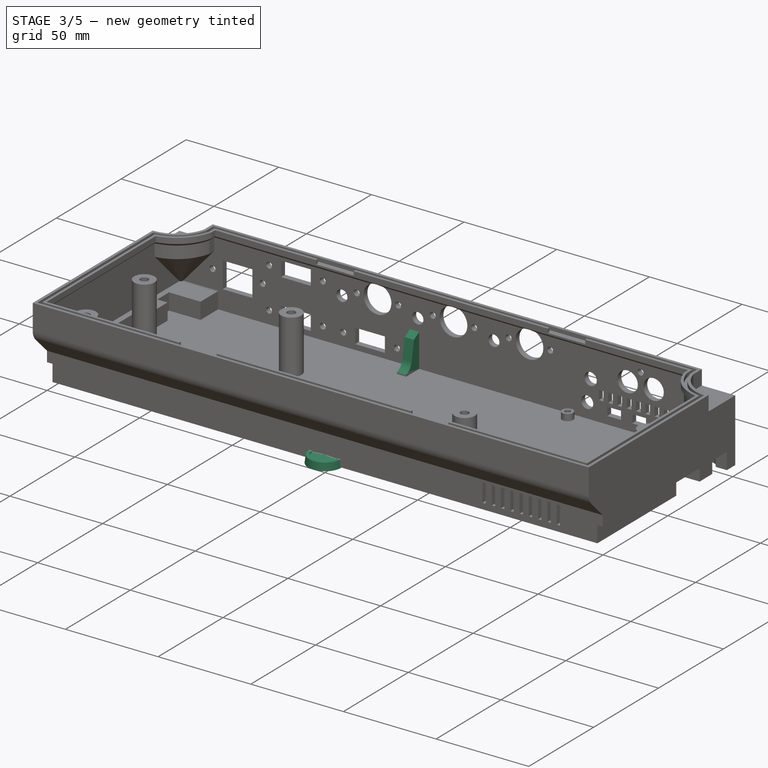
[diagram: stage 3 of 5 — iso view after this stage's code; geometry added in this stage tinted green]
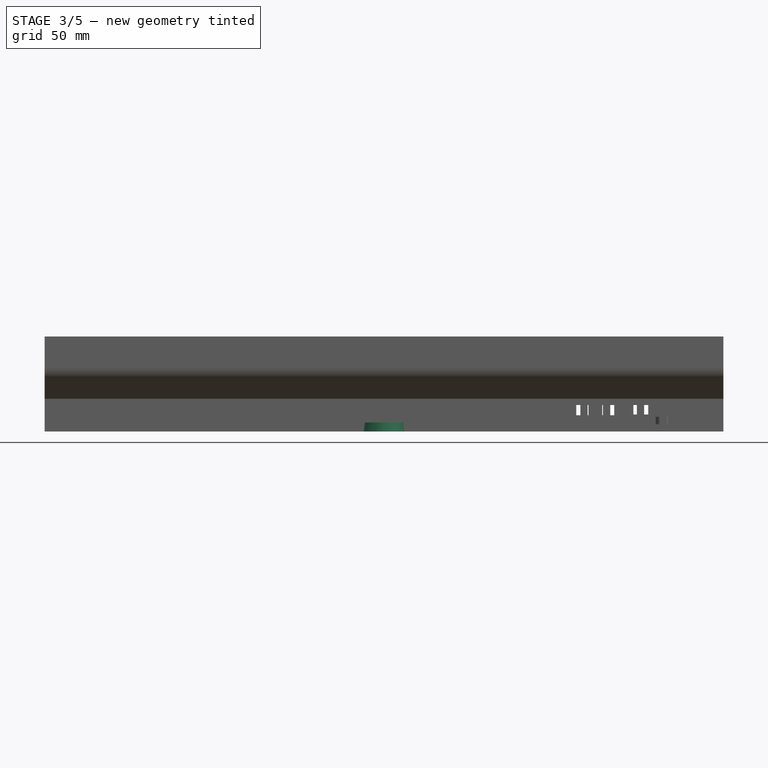
[diagram: stage 3 of 5 — front view after this stage's code; geometry added in this stage tinted green]
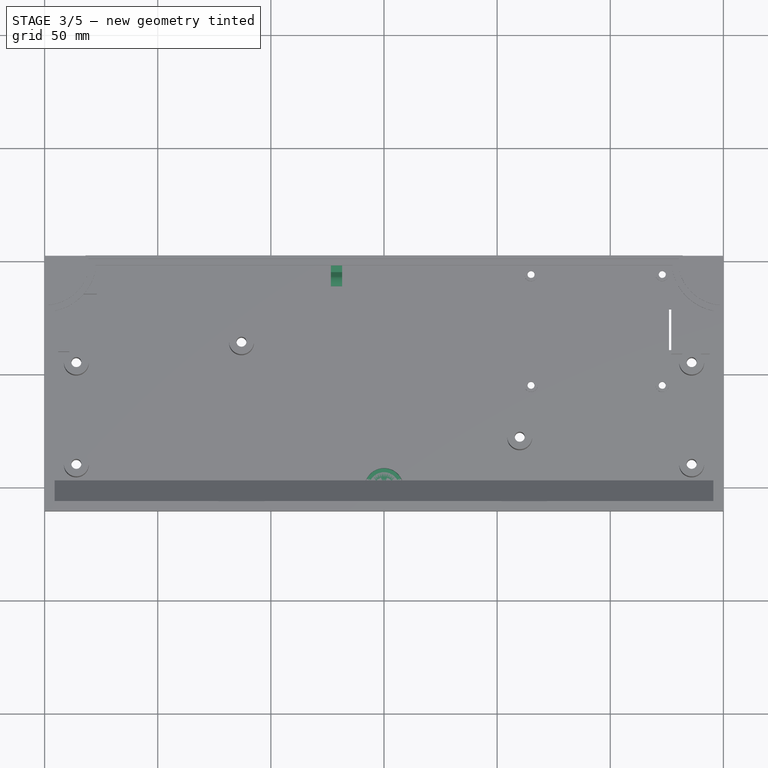
[diagram: stage 3 of 5 — top view after this stage's code; geometry added in this stage tinted green]
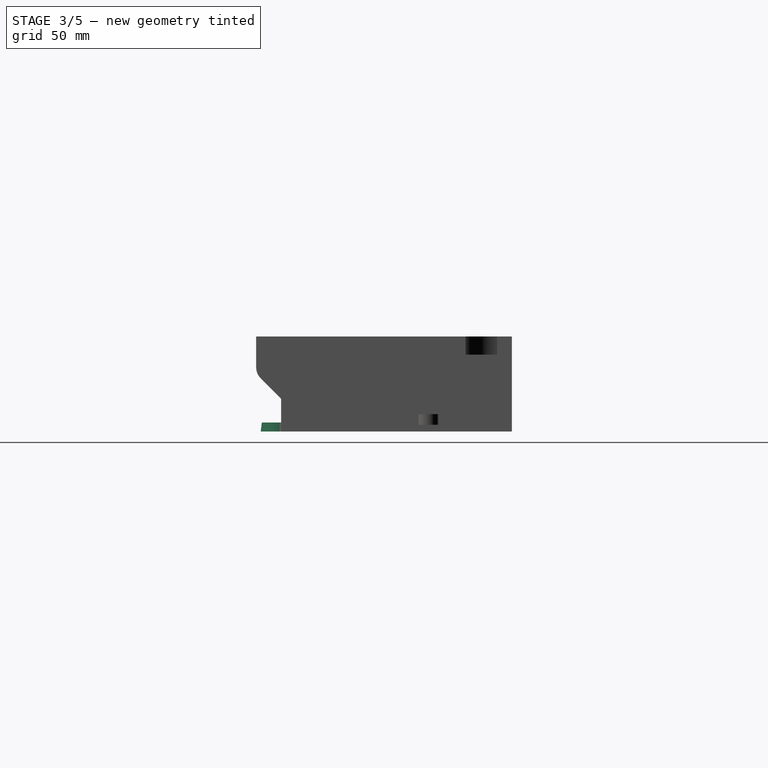
[diagram: stage 3 of 5 — right view after this stage's code; geometry added in this stage tinted green]
FEATURE [PartDesign::Body] Body001  label="Boutique Sketch"
  Group = -> [Sketch,Pad]
  Origin = -> Origin032
  Tip = -> Pad
FEATURE [Sketcher::SketchObject] Sketch001
  FullyConstrained = true
  MapMode = 5
  Placement = pos=(0,0,0) rot=(0.57735,0.57735,0.57735;2.0944rad)
  Support = -> [YZ_Plane033]
  sketch-geometry (6):
    g0: LineSegment StartX=0 StartY=0 StartZ=0 EndX=-9 EndY=0 EndZ=0
    g1: LineSegment StartX=-9 StartY=0 StartZ=0 EndX=-8.5 EndY=4 EndZ=0
    g2: LineSegment StartX=-8.5 StartY=4 StartZ=0 EndX=-6.8 EndY=4 EndZ=0
    g3: LineSegment StartX=-6.8 StartY=4 StartZ=0 EndX=-6.8 EndY=3.5 EndZ=0
    g4: ArcOfCircle CenterX=0 CenterY=-42.49 CenterZ=0 NormalX=0 NormalY=0 NormalZ=1 AngleXU=0 Radius=46.49 StartAngle=1.5708 EndAngle=1.71759
    g5: LineSegment StartX=0 StartY=0 StartZ=0 EndX=-5.91e-14 EndY=4 EndZ=0
  constraints (18):
    c: Coincident(g-1,g0)
    c: PointOnObject(g0,g-1)
    c: Coincident(g0,g1)
    c: Coincident(g1,g2)
    c: Coincident(g2,g3)
    c: PointOnObject(g4,g-2)
    c: Coincident(g0,g5)
    c: Coincident(g5,g4)
    c: DistanceX(g0,g0) = 9
    c: Horizontal(g2)
    c: Vertical(g3)
    c: Coincident(g3,g4)
    c: PointOnObject(g4,g-2)
    c: DistanceY(g0,g1) = 4
    c: DistanceX(g0,g1) = 0.5
    c: DistanceX(g2,g2) = 1.7
    c: DistanceY(g3,g3) = 0.5
    c: Horizontal(g4,g2)
FEATURE [PartDesign::Revolution] Revolution
  Angle = 360
  Axis = (-2e-16,3e-16,1)
  Base = (0,0,0)
  Placement = pos=(0,0,0) rot=(0.57735,0.57735,0.57735;2.0944rad)
  Profile = -> Sketch001
  ReferenceAxis = -> Sketch001 [V_Axis]
FEATURE [PartDesign::Body] Body002  label="Button"
  Group = -> [Sketch001,Revolution]
  Origin = -> Origin033
  Placement = pos=(-107,27,0) rot=(0,0,1;0rad)
  Tip = -> Revolution
FEATURE [PartDesign::FeatureBase] Clone
  BaseFeature = -> Body002
FEATURE [PartDesign::Body] Body003  label="Button 2"
  Group = -> [Clone]
  Origin = -> Origin034
  Placement = pos=(-107,71,0) rot=(0,0,1;0rad)
  Tip = -> Clone
FEATURE [PartDesign::FeatureBase] Clone001
  BaseFeature = -> Body002
FEATURE [PartDesign::Body] Body004  label="Button 3"
  Group = -> [Clone001]
  Origin = -> Origin035
  Placement = pos=(160,71,0) rot=(0,0,1;0rad)
  Tip = -> Clone001
FEATURE [PartDesign::FeatureBase] Clone002
  BaseFeature = -> Body002
FEATURE [PartDesign::Body] Body009  label="USB Connector 2"
  Group = -> [Clone004]
  Origin = -> Origin041
  Placement = pos=(0,-0.5,0) rot=(0,0,1;0rad)
  Tip = -> Clone004
FEATURE [App::DocumentObjectGroup] Group006  label="Connectors"
  Group = -> [Body008,Body009]
FEATURE [App::Part] Part001  label="Raspberry"
  Group = -> [Feature,Raspberry_Pi_Touch_Screen_Assembly008,Group006,Body008,Body009]
  Origin = -> Origin002
  Placement = pos=(66.6,70.4,6.5) rot=(0,0,1;3.14159rad)
FEATURE [PartDesign::Pad] Pad006  label="LeftSupport"
  BaseFeature = -> Pad004
  Direction = (1,-1e-16,1e-16)
  Length = 20
  Length2 = 10
  Midplane = true
  Profile = -> Sketch010
  ReferenceAxis = -> Sketch010 [N_Axis]
  Type = 0
FEATURE [Sketcher::SketchObject] Sketch012
  ExternalGeometry = -> [Pad004]
  FullyConstrained = true
  MapMode = 5
  Placement = pos=(62,-1.38e-14,1.38e-14) rot=(0.57735,0.57735,0.57735;2.0944rad)
  Support = -> [DatumPlane001]
  expr: Constraints[15] = Sketch010.Constraints[15]
  expr: Constraints[16] = Sketch010.Constraints[16]
  expr: Constraints[17] = Sketch010.Constraints[17]
  expr: Constraints[18] = Sketch010.Constraints[18]
  expr: Constraints[19] = Sketch010.Constraints[19]
  expr: Constraints[25] = Sketch010.Constraints[25]
  expr: Constraints[26] = Sketch010.Constraints[26]
  sketch-geometry (12):
    g0: LineSegment StartX=-4 StartY=48.05 StartZ=0 EndX=-4 EndY=44.85 EndZ=0
    g1: LineSegment StartX=-4 StartY=44.85 StartZ=0 EndX=-1.1 EndY=41.95 EndZ=0
    g2: LineSegment StartX=-1.1 StartY=41.95 StartZ=0 EndX=96.15 EndY=41.95 EndZ=0
    g3: LineSegment StartX=96.15 StartY=41.95 StartZ=0 EndX=99.05 EndY=44.85 EndZ=0
    g4: LineSegment StartX=96.05 StartY=39.15 StartZ=0 EndX=-5.05 EndY=39.15 EndZ=0
    g5: LineSegment StartX=-8.05 StartY=48.05 StartZ=0 EndX=-4 EndY=48.05 EndZ=0
    g6: LineSegment StartX=-8.05 StartY=48.05 StartZ=0 EndX=-8.05 EndY=40 EndZ=0
    g7: LineSegment StartX=-8.05 StartY=40 StartZ=0 EndX=-5.05 EndY=40 EndZ=0
    g8: LineSegment StartX=-5.05 StartY=40 StartZ=0 EndX=-5.05 EndY=39.15 EndZ=0
    g9: LineSegment StartX=99.05 StartY=44.85 StartZ=0 EndX=99.05 EndY=40 EndZ=0
    g10: LineSegment StartX=99.05 StartY=40 StartZ=0 EndX=96.05 EndY=40 EndZ=0
    g11: LineSegment StartX=96.05 StartY=40 StartZ=0 EndX=96.05 EndY=39.15 EndZ=0
  constraints (33):
    c: Vertical(g8)
    c: Horizontal(g7)
    c: Horizontal(g4)
    c: Horizontal(g2)
    c: Vertical(g0)
    c: Vertical(g11)
    c: Vertical(g9)
    c: Horizontal(g10)
    c: Coincident(g0,g5)
    c: Coincident(g5,g6)
    c: Coincident(g7,g6)
    c: Coincident(g7,g8)
    c: Coincident(g4,g8)
    c: Coincident(g0,g1)
    c: Coincident(g2,g1)
    c: DistanceY(g0,g0) = 3.2
    c: DistanceX(g7,g7) = 3
    c: DistanceY(g1,g0) = 2.9
    c: Angle(g1,g0) = 2.35619
    c: DistanceY(g4,g1) = 2.8
    c: Coincident(g4,g11)
    c: Coincident(g10,g11)
    c: Coincident(g10,g9)
    c: Coincident(g9,g3)
    c: Coincident(g2,g3)
    c: DistanceX(g10,g10) = 3
    c: Angle(g3,g9) = 0.785398
    c: Horizontal(g0,g3)
    c: Vertical(g6)
    c: Horizontal(g5)
    c: Coincident(g6,g-4)
    c: Coincident(g0,g-3)
    c: Coincident(g9,g-5)
FEATURE [PartDesign::Pad] Pad007  label="RightSupport"
  BaseFeature = -> Pad006
  Direction = (1,-1e-16,1e-16)
  Length = 20
  Length2 = 10
  Midplane = true
  Profile = -> Sketch012
  ReferenceAxis = -> Sketch012 [N_Axis]
  Type = 0
FEATURE [Sketcher::SketchObject] Sketch014  label="Bottom Edge Helper Sketch"
  ExternalGeometry = -> [Thickness]
  FullyConstrained = true
  MapMode = 5
  Placement = pos=(-1.18e-14,1.85e-14,42) rot=(0,0,1;0rad)
  Support = -> [Thickness]
  sketch-geometry (8):
    g0: LineSegment StartX=-150 StartY=81.5 StartZ=0 EndX=-150 EndY=-11 EndZ=0
    g1: LineSegment StartX=-150 StartY=-11 StartZ=0 EndX=150 EndY=-11 EndZ=0
    g2: LineSegment StartX=150 StartY=-11 StartZ=0 EndX=150 EndY=81.5 EndZ=0
    g3: ArcOfCircle CenterX=150 CenterY=100.071 CenterZ=0 NormalX=0 NormalY=0 NormalZ=1 AngleXU=0 Radius=18.5714 StartAngle=3.3903 EndAngle=4.71239
    g4: LineSegment StartX=132 StartY=95.5 StartZ=0 EndX=132 EndY=102 EndZ=0
    g5: LineSegment StartX=132 StartY=102 StartZ=0 EndX=-132 EndY=102 EndZ=0
    g6: LineSegment StartX=-132 StartY=102 StartZ=0 EndX=-132 EndY=95.5 EndZ=0
    g7: ArcOfCircle CenterX=-150 CenterY=100.071 CenterZ=0 NormalX=0 NormalY=0 NormalZ=1 AngleXU=0 Radius=18.5714 StartAngle=4.71239 EndAngle=6.03448
  constraints (16):
    c: Coincident(g-6,g0)
    c: Coincident(g0,g-7)
    c: Coincident(g0,g1)
    c: Coincident(g1,g-10)
    c: Coincident(g1,g2)
    c: Coincident(g2,g-10)
    c: Perpendicular(g2,g3) = 4.71239
    c: Coincident(g3,g-9)
    c: Coincident(g3,g4)
    c: Coincident(g4,g-8)
    c: Coincident(g4,g5)
    c: Coincident(g5,g-4)
    c: Coincident(g5,g6)
    c: Coincident(g6,g-5)
    c: Perpendicular(g0,g7) = 1.5708
    c: Coincident(g7,g6)
FEATURE [Part::Offset2D] Offset2D
  Fill = true
  Intersection = false
  Join = 2
  Mode = 1
  SelfIntersection = false
  Source = -> Sketch014
  Value = -1.6
FEATURE [Part::Extrusion] Extrude002  label="RimOffset"
  Base = -> Offset2D
  Dir = (-1e-15,8e-16,1)
  DirMode = 2
  FaceMakerClass = Part::FaceMakerBullseye
  LengthFwd = -4
  LengthRev = 0
  Solid = false
  Symmetric = false
FEATURE [Sketcher::SketchObject] Sketch015
  FullyConstrained = true
  MapMode = 5
  Placement = pos=(0,0,0) rot=(0.57735,0.57735,0.57735;2.0944rad)
  Support = -> [YZ_Plane042]
  sketch-geometry (4):
    g0: LineSegment StartX=-25 StartY=70 StartZ=0 EndX=135 EndY=70 EndZ=0
    g1: LineSegment StartX=135 StartY=70 StartZ=0 EndX=135 EndY=-10 EndZ=0
    g2: LineSegment StartX=135 StartY=-10 StartZ=0 EndX=-25 EndY=-10 EndZ=0
    g3: LineSegment StartX=-25 StartY=-10 StartZ=0 EndX=-25 EndY=70 EndZ=0
  constraints (12):
    c: Coincident(g0,g1)
    c: Coincident(g1,g2)
    c: Coincident(g2,g3)
    c: Coincident(g3,g0)
    c: Horizontal(g0)
    c: Horizontal(g2)
    c: Vertical(g1)
    c: Vertical(g3)
    c: DistanceX(g0,g0) = 160
    c: DistanceX(g2,g-1) = 25
    c: DistanceY(g1,g1) = 80
    c: DistanceY(g2,g-1) = 10
FEATURE [PartDesign::Pad] Pad008
  Direction = (1,-2e-16,3e-16)
  Length = 0.1
  Length2 = 10
  Midplane = true
  Placement = pos=(0,0,0) rot=(0.57735,0.57735,0.57735;2.0944rad)
  Profile = -> Sketch015
  ReferenceAxis = -> Sketch015 [N_Axis]
  Type = 0
FEATURE [Part::FeaturePython] Slice001  # WARN: FeaturePython — macro-defined, semantics opaque (R4)
  Base = -> Body
  Mode = 1
  Tolerance = 0
  Tools = -> [Body010]
FEATURE [Sketcher::SketchObject] Sketch042
  ExternalGeometry = -> [Hole]
  FullyConstrained = true
  MapMode = 5
  Placement = pos=(-21,4.7e-15,-4.7e-15) rot=(0.57735,0.57735,0.57735;2.0944rad)
  Support = -> [DatumPlane004]
  sketch-geometry (6):
    g0: LineSegment StartX=99 StartY=3 StartZ=0 EndX=99 EndY=21 EndZ=0
    g1: LineSegment StartX=99 StartY=21 StartZ=0 EndX=95 EndY=18.6906 EndZ=0
    g2: LineSegment StartX=95 StartY=18.6906 StartZ=0 EndX=93.2406 EndY=8.7126 EndZ=0
    g3: ArcOfCircle CenterX=87 CenterY=9.81299 CenterZ=0 NormalX=0 NormalY=0 NormalZ=1 AngleXU=0 Radius=6.33688 StartAngle=5.03349 EndAngle=6.10865
    g4: LineSegment StartX=89 StartY=3.8 StartZ=0 EndX=89 EndY=3 EndZ=0
    g5: LineSegment StartX=89 StartY=3 StartZ=0 EndX=99 EndY=3 EndZ=0
  constraints (17):
    c: Coincident(g-4,g0)
    c: Vertical(g0)
    c: Coincident(g0,g1)
    c: Coincident(g1,g2)
    c: Tangent(g2,g3) = 1.5708
    c: Coincident(g3,g4)
    c: Vertical(g4)
    c: Coincident(g4,g5)
    c: Coincident(g5,g0)
    c: Horizontal(g5)
    c: DistanceY(g0,g0) = 18
    c: DistanceX(g5,g5) = 10
    c: DistanceX(g3,g3) = 2
    c: DistanceY(g4,g4) = 0.8
    c: DistanceX(g1,g0) = 4
    c: Angle(g1,g0) = 1.0472
    c: Angle(g2,g1) = 2.26893
FEATURE [PartDesign::Pad] Pad018  label="Backplane Support"
  BaseFeature = -> Hole
  Direction = (1,-1e-16,1e-16)
  Length = 5
  Length2 = 10
  Midplane = true
  Profile = -> Sketch042
  ReferenceAxis = -> Sketch042 [N_Axis]
  Type = 0
FEATURE [PartDesign::Chamfer] Chamfer
  Angle = 55
  Base = -> Pocket011 [Edge1,Edge2,Edge4,Edge3]
  BaseFeature = -> Pocket011
  ChamferType = 2
  FlipDirection = false
  Size = 0.3
  Size2 = 1
  SupportTransform = false
  UseAllEdges = false
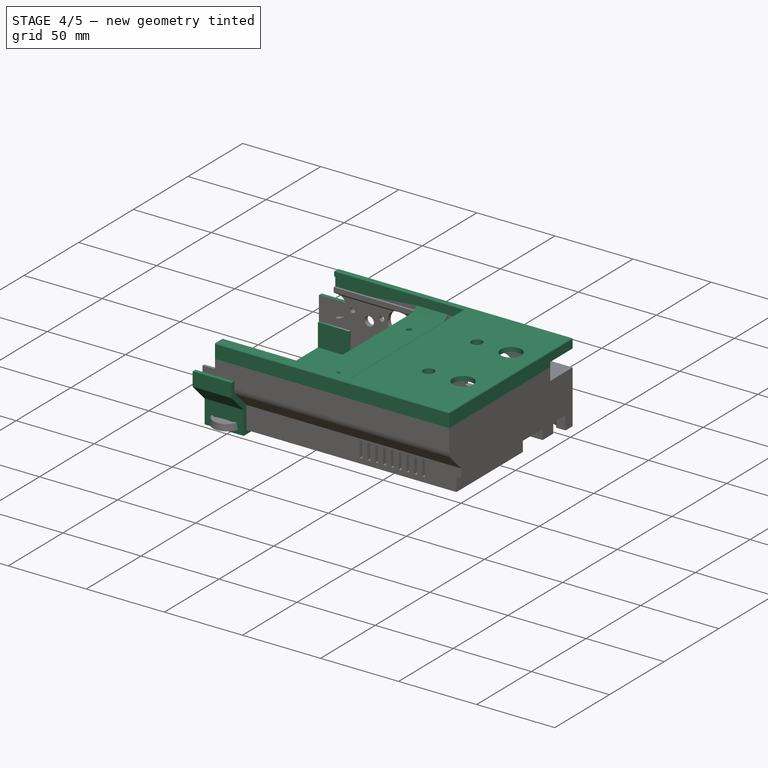
[diagram: stage 4 of 5 — iso view after this stage's code; geometry added in this stage tinted green]
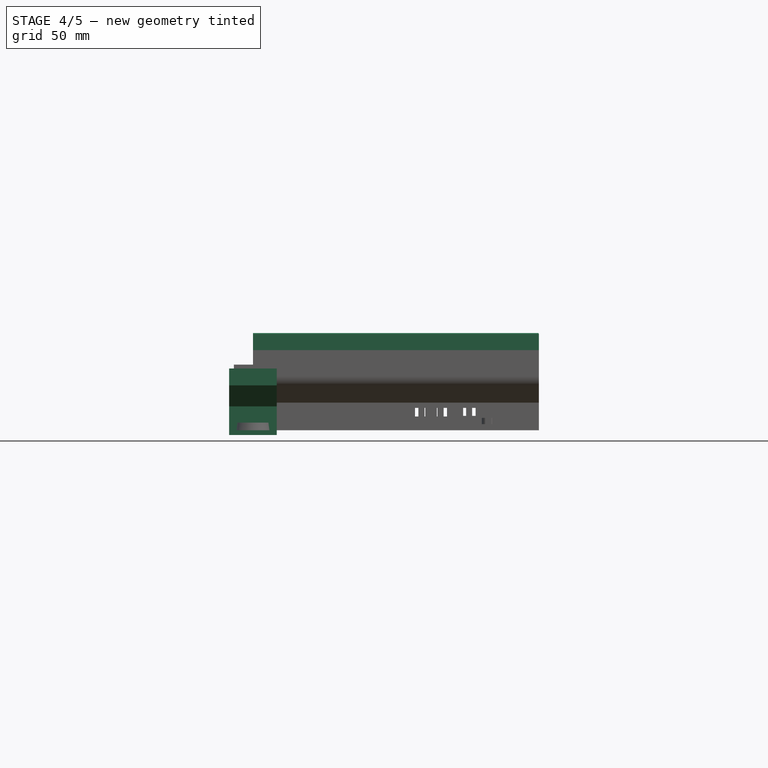
[diagram: stage 4 of 5 — front view after this stage's code; geometry added in this stage tinted green]
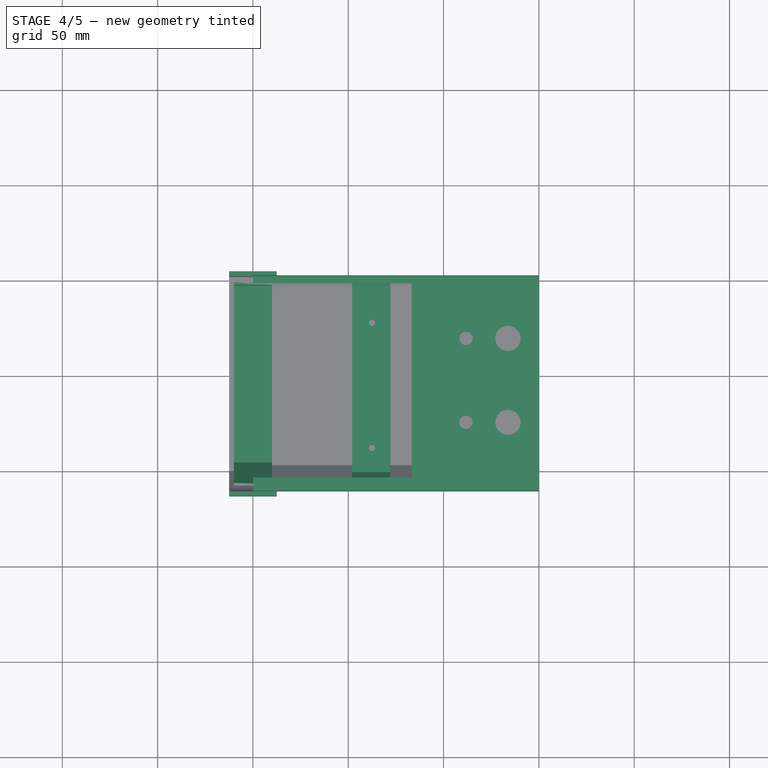
[diagram: stage 4 of 5 — top view after this stage's code; geometry added in this stage tinted green]
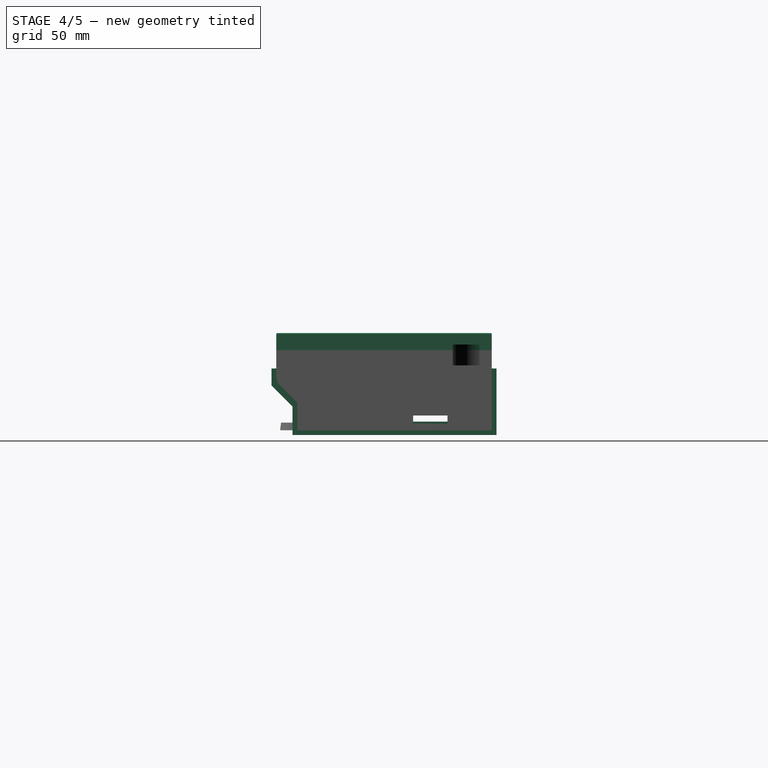
[diagram: stage 4 of 5 — right view after this stage's code; geometry added in this stage tinted green]
FEATURE [Sketcher::SketchObject] Sketch031
  FullyConstrained = true
  MapMode = 5
  Placement = pos=(0,1e-15,0) rot=(1,0,0;1.5708rad)
  sketch-geometry (44):
    g0: LineSegment StartX=125 StartY=13.2 StartZ=0 EndX=126.8 EndY=13.2 EndZ=0
    g1: LineSegment StartX=126.8 StartY=13.2 StartZ=0 EndX=126.8 EndY=3.2 EndZ=0
    g2: LineSegment StartX=126.8 StartY=3.2 StartZ=0 EndX=125 EndY=3.2 EndZ=0
    g3: LineSegment StartX=125 StartY=3.2 StartZ=0 EndX=125 EndY=13.2 EndZ=0
    g4: LineSegment StartX=120 StartY=13.2 StartZ=0 EndX=121.8 EndY=13.2 EndZ=0
    g5: LineSegment StartX=120 StartY=3.2 StartZ=0 EndX=120 EndY=13.2 EndZ=0
    g6: LineSegment StartX=121.8 StartY=13.2 StartZ=0 EndX=121.8 EndY=3.2 EndZ=0
    g7: LineSegment StartX=121.8 StartY=3.2 StartZ=0 EndX=120 EndY=3.2 EndZ=0
    g8: LineSegment StartX=125 StartY=13.2 StartZ=0 EndX=120 EndY=13.2 EndZ=0
    g9: LineSegment StartX=115 StartY=13.2 StartZ=0 EndX=116.8 EndY=13.2 EndZ=0
    g10: LineSegment StartX=115 StartY=3.2 StartZ=0 EndX=115 EndY=13.2 EndZ=0
    g11: LineSegment StartX=116.8 StartY=13.2 StartZ=0 EndX=116.8 EndY=3.2 EndZ=0
    g12: LineSegment StartX=116.8 StartY=3.2 StartZ=0 EndX=115 EndY=3.2 EndZ=0
    g13: LineSegment StartX=120 StartY=13.2 StartZ=0 EndX=115 EndY=13.2 EndZ=0
    g14: LineSegment StartX=110 StartY=13.2 StartZ=0 EndX=111.8 EndY=13.2 EndZ=0
    g15: LineSegment StartX=110 StartY=3.2 StartZ=0 EndX=110 EndY=13.2 EndZ=0
    g16: LineSegment StartX=111.8 StartY=13.2 StartZ=0 EndX=111.8 EndY=3.2 EndZ=0
    g17: LineSegment StartX=111.8 StartY=3.2 StartZ=0 EndX=110 EndY=3.2 EndZ=0
    g18: LineSegment StartX=115 StartY=13.2 StartZ=0 EndX=110 EndY=13.2 EndZ=0
    g19: LineSegment StartX=105 StartY=13.2 StartZ=0 EndX=106.8 EndY=13.2 EndZ=0
    g20: LineSegment StartX=105 StartY=3.2 StartZ=0 EndX=105 EndY=13.2 EndZ=0
    g21: LineSegment StartX=106.8 StartY=13.2 StartZ=0 EndX=106.8 EndY=3.2 EndZ=0
    g22: LineSegment StartX=106.8 StartY=3.2 StartZ=0 EndX=105 EndY=3.2 EndZ=0
    g23: LineSegment StartX=110 StartY=13.2 StartZ=0 EndX=105 EndY=13.2 EndZ=0
    g24: LineSegment StartX=100 StartY=13.2 StartZ=0 EndX=101.8 EndY=13.2 EndZ=0
    g25: LineSegment StartX=100 StartY=3.2 StartZ=0 EndX=100 EndY=13.2 EndZ=0
    g26: LineSegment StartX=101.8 StartY=13.2 StartZ=0 EndX=101.8 EndY=3.2 EndZ=0
    g27: LineSegment StartX=101.8 StartY=3.2 StartZ=0 EndX=100 EndY=3.2 EndZ=0
    g28: LineSegment StartX=105 StartY=13.2 StartZ=0 EndX=100 EndY=13.2 EndZ=0
    g29: LineSegment StartX=95 StartY=13.2 StartZ=0 EndX=96.8 EndY=13.2 EndZ=0
    g30: LineSegment StartX=95 StartY=3.2 StartZ=0 EndX=95 EndY=13.2 EndZ=0
    g31: LineSegment StartX=96.8 StartY=13.2 StartZ=0 EndX=96.8 EndY=3.2 EndZ=0
    g32: LineSegment StartX=96.8 StartY=3.2 StartZ=0 EndX=95 EndY=3.2 EndZ=0
    g33: LineSegment StartX=100 StartY=13.2 StartZ=0 EndX=95 EndY=13.2 EndZ=0
    g34: LineSegment StartX=90 StartY=13.2 StartZ=0 EndX=91.8 EndY=13.2 EndZ=0
    g35: LineSegment StartX=90 StartY=3.2 StartZ=0 EndX=90 EndY=13.2 EndZ=0
    g36: LineSegment StartX=91.8 StartY=13.2 StartZ=0 EndX=91.8 EndY=3.2 EndZ=0
    g37: LineSegment StartX=91.8 StartY=3.2 StartZ=0 EndX=90 EndY=3.2 EndZ=0
    g38: LineSegment StartX=95 StartY=13.2 StartZ=0 EndX=90 EndY=13.2 EndZ=0
    g39: LineSegment StartX=85 StartY=13.2 StartZ=0 EndX=86.8 EndY=13.2 EndZ=0
    g40: LineSegment StartX=86.8 StartY=13.2 StartZ=0 EndX=86.8 EndY=3.2 EndZ=0
    g41: LineSegment StartX=86.8 StartY=3.2 StartZ=0 EndX=85 EndY=3.2 EndZ=0
    g42: LineSegment StartX=85 StartY=3.2 StartZ=0 EndX=85 EndY=13.2 EndZ=0
    g43: LineSegment StartX=85 StartY=13.2 StartZ=0 EndX=90 EndY=13.2 EndZ=0
  constraints (124):
    c: Coincident(g0,g1)
    c: Coincident(g1,g2)
    c: Coincident(g2,g3)
    c: Coincident(g3,g0)
    c: Horizontal(g0)
    c: Horizontal(g2)
    c: Vertical(g1)
    c: Vertical(g3)
    c: DistanceX(g0,g0) = 1.8
    c: DistanceY(g1,g1) = 10
    c: Coincident(g4,g6)
    c: Coincident(g6,g7)
    c: Coincident(g7,g5)
    c: Coincident(g5,g4)
    c: Horizontal(g4)
    c: Horizontal(g7)
    c: Vertical(g6)
    c: Vertical(g5)
    c: Coincident(g0,g8)
    c: Coincident(g4,g8)
    c: Distance(g8) = 5
    c: Angle(g8) = 3.14159
    c: Coincident(g9,g11)
    c: Coincident(g11,g12)
    c: Coincident(g12,g10)
    c: Coincident(g10,g9)
    c: Horizontal(g9)
    c: Horizontal(g12)
    c: Vertical(g11)
    c: Vertical(g10)
    c: Coincident(g4,g13)
    c: Coincident(g9,g13)
    c: Equal(g8,g13)
    c: Parallel(g13,g8)
    c: Coincident(g14,g16)
    c: Coincident(g16,g17)
    c: Coincident(g17,g15)
    c: Coincident(g15,g14)
    c: Horizontal(g14)
    c: Horizontal(g17)
    c: Vertical(g16)
    c: Vertical(g15)
    c: Coincident(g9,g18)
    c: Coincident(g14,g18)
    c: Equal(g8,g18)
    c: Parallel(g18,g8)
    c: Coincident(g19,g21)
    c: Coincident(g21,g22)
    c: Coincident(g22,g20)
    c: Coincident(g20,g19)
    c: Horizontal(g19)
    c: Horizontal(g22)
    c: Vertical(g21)
    c: Vertical(g20)
    c: Coincident(g14,g23)
    c: Coincident(g19,g23)
    c: Equal(g8,g23)
    c: Parallel(g23,g8)
    c: Coincident(g24,g26)
    c: Coincident(g26,g27)
    c: Coincident(g27,g25)
    c: Coincident(g25,g24)
    c: Horizontal(g24)
    c: Horizontal(g27)
    c: Vertical(g26)
    c: Vertical(g25)
    c: Coincident(g19,g28)
    c: Coincident(g24,g28)
    c: Equal(g8,g28)
    c: Parallel(g28,g8)
    c: Coincident(g29,g31)
    c: Coincident(g31,g32)
    c: Coincident(g32,g30)
    c: Coincident(g30,g29)
    c: Horizontal(g29)
    c: Horizontal(g32)
    c: Vertical(g31)
    c: Vertical(g30)
    c: Coincident(g24,g33)
    c: Coincident(g29,g33)
    c: Equal(g8,g33)
    c: Parallel(g33,g8)
    c: Coincident(g34,g36)
    c: Coincident(g36,g37)
    c: Coincident(g37,g35)
    c: Coincident(g35,g34)
    c: Horizontal(g34)
    c: Horizontal(g37)
    c: Vertical(g36)
    c: Vertical(g35)
    c: Coincident(g29,g38)
    c: Coincident(g34,g38)
    c: Equal(g8,g38)
    c: Parallel(g38,g8)
    c: DistanceY(g-1,g35) = 3.2
    c: DistanceX(g-1,g35) = 90
    c: Coincident(g39,g40)
    c: Coincident(g40,g41)
    c: Coincident(g41,g42)
    c: Coincident(g42,g39)
    c: Horizontal(g39)
    c: Horizontal(g41)
    c: Vertical(g40)
    c: Vertical(g42)
    c: Horizontal(g41,g35)
    c: Coincident(g43,g39)
    c: Coincident(g43,g34)
    c: Equal(g0,g4)
    c: Equal(g4,g9)
    c: Equal(g9,g14)
    c: Equal(g14,g19)
    c: Equal(g19,g24)
    c: Equal(g24,g29)
    c: Equal(g29,g34)
    c: Equal(g34,g39)
    c: Horizontal(g30,g36)
    c: Horizontal(g36,g25)
    c: Horizontal(g25,g20)
    c: Horizontal(g20,g15)
    c: Horizontal(g15,g10)
    c: Horizontal(g10,g5)
    c: Horizontal(g5,g2)
    c: Horizontal(g43)
    c: Equal(g43,g38)
FEATURE [PartDesign::Plane] DatumPlane003  label="Screwpost DatumPlane"
  AttachmentOffset = pos=(0,0,32) rot=(0,0,1;0rad)
  Length = 339.038
  MapMode = 5
  Placement = pos=(0,0,32) rot=(0,0,1;0rad)
  ResizeMode = 0
  Support = -> [XY_Plane038]
  Width = 166.038
FEATURE [PartDesign::SubShapeBinder] Binder  label="Top Screwpost Sketch Binder"
  BindCopyOnChange = 0
  BindMode = 0
  ClaimChildren = false
  Context = -> Body [Binder.]
  Fuse = false
  MakeFace = true
  OffsetFill = false
  OffsetIntersection = false
  OffsetJoinType = 0
  OffsetOpenResult = false
  PartialLoad = false
  Relative = true
  Support = -> [Body006[Sketch033.]]
  _Version = 2
FEATURE [Sketcher::SketchObject] Sketch037
  ExternalGeometry = -> [Binder]
  FullyConstrained = true
  MapMode = 11
  Placement = pos=(-63,64,32) rot=(0.707107,0.707107,0;3.14159rad)
  Support = -> [Binder]
  sketch-geometry (6):
    g0: Circle CenterX=0 CenterY=0 CenterZ=0 NormalX=0 NormalY=0 NormalZ=1 AngleXU=0 Radius=5.5
    g1: Circle CenterX=-9 CenterY=-73 CenterZ=0 NormalX=0 NormalY=0 NormalZ=1 AngleXU=0 Radius=5.5
    g2: Circle CenterX=-42 CenterY=123 CenterZ=0 NormalX=0 NormalY=0 NormalZ=1 AngleXU=0 Radius=5.5
    g3: Circle CenterX=-9 CenterY=199 CenterZ=0 NormalX=0 NormalY=0 NormalZ=1 AngleXU=0 Radius=5.5
    g4: Circle CenterX=-54 CenterY=199 CenterZ=0 NormalX=0 NormalY=0 NormalZ=1 AngleXU=0 Radius=5.5
    g5: Circle CenterX=-54 CenterY=-73 CenterZ=0 NormalX=0 NormalY=0 NormalZ=1 AngleXU=0 Radius=5.5
  constraints (12):
    c: Coincident(g0,g-3)
    c: Coincident(g4,g-8)
    c: Equal(g3,g-6)
    c: Equal(g2,g-5)
    c: Equal(g4,g-8)
    c: Equal(g0,g-3)
    c: Equal(g1,g-4)
    c: Equal(g5,g-7)
    c: Coincident(g5,g-7)
    c: Coincident(g-4,g1)
    c: Coincident(g3,g-6)
    c: Coincident(g-5,g2)
FEATURE [App::Part] Part005  label="Buttons"
  Group = -> [Body002,Body003,Body004,Body005]
  Origin = -> Origin078
  Placement = pos=(0,-26,0) rot=(0,0,1;0rad)
FEATURE [App::Part] Part002  label="Display Group"
  Group = -> [Compound,Solid001,Solid013,Solid006,Solid002,Solid015,Solid010,Solid014,Solid003,Solid005,Solid004,Solid007,Solid011,Solid,Solid009,Solid008,Solid012,Solid017,Solid019,Solid016,Solid018,Group004,Raspberry_Pi_Touch_Screen_Assembly,Raspberry_Pi_Touch_Screen_Assembly001,Raspberry_Pi_Touch_Screen_Assembly005,Raspberry_Pi_Touch_Screen_Assembly004,Raspberry_Pi_Touch_Screen_Assembly003,+10 more]
  Origin = -> Origin003
  Placement = pos=(26.5,70,51.9) rot=(0,0,1;3.14159rad)
FEATURE [PartDesign::Plane] DatumPlane004  label="Backplanesupport Plane"
  AttachmentOffset = pos=(0,0,-21) rot=(0,0,1;0rad)
  Length = 145.449
  MapMode = 5
  Placement = pos=(-21,4.7e-15,-4.7e-15) rot=(0.57735,0.57735,0.57735;2.0944rad)
  ResizeMode = 0
  Support = -> [YZ_Plane037]
  Width = 85.4488
FEATURE [Part::Feature] Part__Feature001  label="R_Axial_DIN0207_L63mm_D25mm_P762mm_Horizontal"
  shape: bbox 8.418 x 2.706 x 5.603 mm, 15 faces (baked)
FEATURE [App::Part] R_Axial_DIN0207_L6_3mm_D2_5mm_P7_62mm_Horizontal  label="R_Axial_DIN0207_L6.3mm_D2.5mm_P7.62mm_Horizontal"
  Group = -> [Part__Feature001]
  Origin = -> Origin079
  Placement = pos=(4.87,31.22,1.65) rot=(0,0,1;0rad)
FEATURE [Part::Feature] Part__Feature002  label="PinSocket_2x20_P254mm_Vertical"
  shape: bbox 5.08 x 50.8 x 10.1 mm, 1250 faces (baked)
FEATURE [App::Part] PinSocket_2x20_P2_54mm_Vertical  label="PinSocket_2x20_P2.54mm_Vertical"
  Group = -> [Part__Feature002]
  Origin = -> Origin080
  Placement = pos=(53.13,47.73,1.65) rot=(0,0,-1;1.5708rad)
FEATURE [Part::Feature] Part__Feature003  label="R_Axial_DIN0207_L63mm_D25mm_P762mm_Horizontal001"
  shape: bbox 8.418 x 2.706 x 5.603 mm, 15 faces (baked)
FEATURE [App::Part] R_Axial_DIN0207_L6_3mm_D2_5mm_P7_62mm_Horizontal001  label="R_Axial_DIN0207_L6.3mm_D2.5mm_P7.62mm_Horizontal001"
  Group = -> [Part__Feature003]
  Origin = -> Origin081
  Placement = pos=(4.87,40.745,1.65) rot=(0,0,1;0rad)
FEATURE [Part::Feature] Part__Feature004  label="R_Axial_DIN0207_L63mm_D25mm_P762mm_Horizontal002"
  shape: bbox 8.418 x 2.706 x 5.603 mm, 15 faces (baked)
FEATURE [App::Part] R_Axial_DIN0207_L6_3mm_D2_5mm_P7_62mm_Horizontal002  label="R_Axial_DIN0207_L6.3mm_D2.5mm_P7.62mm_Horizontal002"
  Group = -> [Part__Feature004]
  Origin = -> Origin082
  Placement = pos=(4.87,34.395,1.65) rot=(0,0,1;0rad)
FEATURE [Part::Feature] Part__Feature005  label="PinHeader_2x03_P254mm_Horizontal"
  shape: bbox 12.9 x 7.62 x 8.08 mm, 148 faces (baked)
FEATURE [App::Part] PinHeader_2x03_P2_54mm_Horizontal  label="PinHeader_2x03_P2.54mm_Horizontal"
  Group = -> [Part__Feature005]
  Origin = -> Origin083
  Placement = pos=(-6.56,53.445,1.65) rot=(0,0,1;3.14159rad)
FEATURE [Part::Feature] Part__Feature006  label="PinHeader_2x03_P254mm_Horizontal001"
  shape: bbox 12.9 x 7.62 x 8.08 mm, 148 faces (baked)
FEATURE [App::Part] PinHeader_2x03_P2_54mm_Horizontal001  label="PinHeader_2x03_P2.54mm_Horizontal001"
  Group = -> [Part__Feature006]
  Origin = -> Origin084
  Placement = pos=(-6.56,43.27,1.65) rot=(0,0,1;3.14159rad)
FEATURE [Part::Feature] Part__Feature007  label="PinHeader_2x03_P254mm_Horizontal002"
  shape: bbox 12.9 x 7.62 x 8.08 mm, 148 faces (baked)
FEATURE [App::Part] PinHeader_2x03_P2_54mm_Horizontal002  label="PinHeader_2x03_P2.54mm_Horizontal002"
  Group = -> [Part__Feature007]
  Origin = -> Origin085
  Placement = pos=(-6.56,33.11,1.65) rot=(0,0,1;3.14159rad)
FEATURE [Part::Feature] Part__Feature008  label="R_Axial_DIN0207_L63mm_D25mm_P762mm_Horizontal003"
  shape: bbox 8.418 x 2.706 x 5.603 mm, 15 faces (baked)
FEATURE [App::Part] R_Axial_DIN0207_L6_3mm_D2_5mm_P7_62mm_Horizontal003  label="R_Axial_DIN0207_L6.3mm_D2.5mm_P7.62mm_Horizontal003"
  Group = -> [Part__Feature008]
  Origin = -> Origin086
  Placement = pos=(4.87,28.045,1.65) rot=(0,0,1;0rad)
FEATURE [Part::Feature] Part__Feature009  label="PinHeader_2x02_P254mm_Horizontal"
  shape: bbox 12.9 x 5.08 x 8.08 mm, 100 faces (baked)
FEATURE [App::Part] PinHeader_2x02_P2_54mm_Horizontal  label="PinHeader_2x02_P2.54mm_Horizontal"
  Group = -> [Part__Feature009]
  Origin = -> Origin087
  Placement = pos=(36.62,68.05,1.65) rot=(0,0,1;1.5708rad)
FEATURE [Part::Feature] Part__Feature010  label="DIP-6_W7.62mm"
  shape: bbox 7.874 x 7.05 x 6.98 mm, 114 faces (baked)
FEATURE [App::Part] DIP_6_W7_62mm  label="DIP-6_W7.62mm001"
  Group = -> [Part__Feature010]
  Origin = -> Origin088
  Placement = pos=(22.904,28.03,1.65) rot=(0,0,1;0rad)
FEATURE [Part::Feature] Part__Feature011  label="PinHeader_2x02_P254mm_Horizontal001"
  shape: bbox 12.9 x 5.08 x 8.08 mm, 100 faces (baked)
FEATURE [App::Part] PinHeader_2x02_P2_54mm_Horizontal001  label="PinHeader_2x02_P2.54mm_Horizontal001"
  Group = -> [Part__Feature011]
  Origin = -> Origin089
  Placement = pos=(13.76,68.05,1.65) rot=(0,0,1;1.5708rad)
FEATURE [Part::Feature] Part__Feature012  label="R_Axial_DIN0207_L63mm_D25mm_P762mm_Horizontal004"
  shape: bbox 8.418 x 2.706 x 5.603 mm, 15 faces (baked)
FEATURE [App::Part] R_Axial_DIN0207_L6_3mm_D2_5mm_P7_62mm_Horizontal004  label="R_Axial_DIN0207_L6.3mm_D2.5mm_P7.62mm_Horizontal004"
  Group = -> [Part__Feature012]
  Origin = -> Origin090
  Placement = pos=(-2.75,55.35,1.65) rot=(0,0,1;0rad)
FEATURE [Part::Feature] Part__Feature013  label="R_Axial_DIN0207_L63mm_D25mm_P762mm_Horizontal005"
  shape: bbox 8.418 x 2.706 x 5.603 mm, 15 faces (baked)
FEATURE [App::Part] R_Axial_DIN0207_L6_3mm_D2_5mm_P7_62mm_Horizontal005  label="R_Axial_DIN0207_L6.3mm_D2.5mm_P7.62mm_Horizontal005"
  Group = -> [Part__Feature013]
  Origin = -> Origin091
  Placement = pos=(4.87,37.57,1.65) rot=(0,0,1;0rad)
FEATURE [Part::Feature] Part__Feature014  label="C_Disc_D50mm_W25mm_P500mm"
  shape: bbox 5.5 x 2.5 x 7.1 mm, 10 faces (baked)
FEATURE [App::Part] C_Disc_D5_0mm_W2_5mm_P5_00mm  label="C_Disc_D5.0mm_W2.5mm_P5.00mm"
  Group = -> [Part__Feature014]
  Origin = -> Origin092
  Placement = pos=(33.826,30.545,1.65) rot=(0,0,-1;1.5708rad)
FEATURE [Part::Feature] Part__Feature015  label="PinHeader_2x02_P254mm_Horizontal002"
  shape: bbox 12.9 x 5.08 x 8.08 mm, 100 faces (baked)
FEATURE [App::Part] PinHeader_2x02_P2_54mm_Horizontal002  label="PinHeader_2x02_P2.54mm_Horizontal002"
  Group = -> [Part__Feature015]
  Origin = -> Origin093
  Placement = pos=(21.38,68.05,1.65) rot=(0,0,1;1.5708rad)
FEATURE [Part::Feature] Part__Feature016  label="R_Axial_DIN0207_L63mm_D25mm_P762mm_Horizontal006"
  shape: bbox 8.418 x 2.706 x 5.603 mm, 15 faces (baked)
FEATURE [App::Part] R_Axial_DIN0207_L6_3mm_D2_5mm_P7_62mm_Horizontal006  label="R_Axial_DIN0207_L6.3mm_D2.5mm_P7.62mm_Horizontal006"
  Group = -> [Part__Feature016]
  Origin = -> Origin094
  Placement = pos=(4.87,43.92,1.65) rot=(0,0,1;0rad)
FEATURE [Part::Feature] Part__Feature017  label="D_DO-35_SOD27_P7.62mm_Horizontal"
  shape: bbox 8.244 x 2.165 x 5.082 mm, 16 faces, 2 solids (baked)
FEATURE [App::Part] D_DO_35_SOD27_P7_62mm_Horizontal  label="D_DO-35_SOD27_P7.62mm_Horizontal001"
  Group = -> [Part__Feature017]
  Origin = -> Origin095
  Placement = pos=(19.475,30.585,1.65) rot=(0,0,-1;1.5708rad)
FEATURE [Part::Feature] Part__Feature018  label="DIP-28_W7.62mm"
  shape: bbox 7.874 x 35.56 x 6.98 mm, 488 faces (baked)
FEATURE [App::Part] DIP_28_W7_62mm  label="DIP-28_W7.62mm001"
  Group = -> [Part__Feature018]
  Origin = -> Origin096
  Placement = pos=(20.11,55.35,1.65) rot=(0,0,1;1.5708rad)
FEATURE [Part::Feature] Part__Feature019  label="PinHeader_2x02_P254mm_Horizontal003"
  shape: bbox 12.9 x 5.08 x 8.08 mm, 100 faces (baked)
FEATURE [App::Part] PinHeader_2x02_P2_54mm_Horizontal003  label="PinHeader_2x02_P2.54mm_Horizontal003"
  Group = -> [Part__Feature019]
  Origin = -> Origin097
  Placement = pos=(44.235,68.05,1.65) rot=(0,0,1;1.5708rad)
FEATURE [Part::Feature] Part__Feature020  label="R_Axial_DIN0207_L63mm_D25mm_P762mm_Horizontal007"
  shape: bbox 8.418 x 2.706 x 5.603 mm, 15 faces (baked)
FEATURE [App::Part] R_Axial_DIN0207_L6_3mm_D2_5mm_P7_62mm_Horizontal007  label="R_Axial_DIN0207_L6.3mm_D2.5mm_P7.62mm_Horizontal007"
  Group = -> [Part__Feature020]
  Origin = -> Origin098
  Placement = pos=(-2.75,58.525,1.65) rot=(0,0,1;0rad)
FEATURE [Part::Feature] Part__Feature021  label="R_Axial_DIN0207_L63mm_D25mm_P762mm_Horizontal008"
  shape: bbox 8.418 x 2.706 x 5.603 mm, 15 faces (baked)
FEATURE [App::Part] R_Axial_DIN0207_L6_3mm_D2_5mm_P7_62mm_Horizontal008  label="R_Axial_DIN0207_L6.3mm_D2.5mm_P7.62mm_Horizontal008"
  Group = -> [Part__Feature021]
  Origin = -> Origin099
  Placement = pos=(37.89,30.585,1.65) rot=(0,0,-1;1.5708rad)
FEATURE [Part::Feature] Part__Feature022  label="C_Disc_D50mm_W25mm_P500mm001"
  shape: bbox 5.5 x 2.5 x 7.1 mm, 10 faces (baked)
FEATURE [App::Part] C_Disc_D5_0mm_W2_5mm_P5_00mm001  label="C_Disc_D5.0mm_W2.5mm_P5.00mm001"
  Group = -> [Part__Feature022]
  Origin = -> Origin100
  Placement = pos=(42.335,32.41,1.65) rot=(0,0,-1;1.5708rad)
FEATURE [Part::Feature] Part__Feature023  label="C_Disc_D50mm_W25mm_P500mm002"
  shape: bbox 5.5 x 2.5 x 7.1 mm, 10 faces (baked)
FEATURE [App::Part] C_Disc_D5_0mm_W2_5mm_P5_00mm002  label="C_Disc_D5.0mm_W2.5mm_P5.00mm002"
  Group = -> [Part__Feature023]
  Origin = -> Origin101
  Placement = pos=(57.956,62.97,1.65) rot=(0,0,-1;1.5708rad)
FEATURE [Part::Feature] Part__Feature024  label="DIP-14_W7.62mm"
  shape: bbox 7.874 x 19.05 x 6.98 mm, 250 faces (baked)
FEATURE [App::Part] DIP_14_W7_62mm  label="DIP-14_W7.62mm001"
  Group = -> [Part__Feature024]
  Origin = -> Origin102
  Placement = pos=(42.33,42.635,1.65) rot=(0,0,-1;1.5708rad)
FEATURE [Part::Feature] Part__Feature025  label="PinHeader_2x02_P254mm_Horizontal004"
  shape: bbox 12.9 x 5.08 x 8.08 mm, 100 faces (baked)
FEATURE [App::Part] PinHeader_2x02_P2_54mm_Horizontal004  label="PinHeader_2x02_P2.54mm_Horizontal004"
  Group = -> [Part__Feature025]
  Origin = -> Origin103
  Placement = pos=(6.14,68.05,1.65) rot=(0,0,1;1.5708rad)
FEATURE [Part::Feature] Part__Feature026  label="C_Disc_D50mm_W25mm_P500mm003"
  shape: bbox 5.5 x 2.5 x 7.1 mm, 10 faces (baked)
FEATURE [App::Part] C_Disc_D5_0mm_W2_5mm_P5_00mm003  label="C_Disc_D5.0mm_W2.5mm_P5.00mm003"
  Group = -> [Part__Feature026]
  Origin = -> Origin104
  Placement = pos=(6.14,22.965,1.65) rot=(0,0,1;0rad)
FEATURE [Part::Feature] Part__Feature027  label="PinHeader_2x02_P254mm_Horizontal005"
  shape: bbox 12.9 x 5.08 x 8.08 mm, 100 faces (baked)
FEATURE [App::Part] PinHeader_2x02_P2_54mm_Horizontal005  label="PinHeader_2x02_P2.54mm_Horizontal005"
  Group = -> [Part__Feature027]
  Origin = -> Origin105
  Placement = pos=(51.86,68.05,1.65) rot=(0,0,1;1.5708rad)
FEATURE [Part::Feature] Part__Feature028  label="PinHeader_2x02_P254mm_Horizontal006"
  shape: bbox 12.9 x 5.08 x 8.08 mm, 100 faces (baked)
FEATURE [App::Part] PinHeader_2x02_P2_54mm_Horizontal006  label="PinHeader_2x02_P2.54mm_Horizontal006"
  Group = -> [Part__Feature028]
  Origin = -> Origin106
  Placement = pos=(29,68.05,1.65) rot=(0,0,1;1.5708rad)
FEATURE [Part::Feature] Part__Feature029  label="ZynthianIO_PCB"
  shape: bbox 75 x 78 x 1.6 mm, 197 faces (baked)
FEATURE [App::Part] ZynthianIO_1  label="ZynthianIO 1"
  Group = -> [R_Axial_DIN0207_L6_3mm_D2_5mm_P7_62mm_Horizontal,PinSocket_2x20_P2_54mm_Vertical,R_Axial_DIN0207_L6_3mm_D2_5mm_P7_62mm_Horizontal001,R_Axial_DIN0207_L6_3mm_D2_5mm_P7_62mm_Horizontal002,PinHeader_2x03_P2_54mm_Horizontal,PinHeader_2x03_P2_54mm_Horizontal001,PinHeader_2x03_P2_54mm_Horizontal002,R_Axial_DIN0207_L6_3mm_D2_5mm_P7_62mm_Horizontal003,PinHeader_2x02_P2_54mm_Horizontal,DIP_6_W7_62mm,+19 more]
  Origin = -> Origin107
  Placement = pos=(28.5,-24.5,26) rot=(0,-1,0;3.14159rad)
FEATURE [App::Part] Part  label="Boards"
  Group = -> [Feature001,ZynthianIO_1]
  Origin = -> Origin001
  Placement = pos=(93.2,69.9,6.5) rot=(0,0,1;3.14159rad)
FEATURE [Sketcher::SketchObject] Sketch041  label="ZynthianIO Board Outline"
  FullyConstrained = true
  MapMode = 2
  Placement = pos=(93.2,69.9,6.5) rot=(0,0,1;3.14159rad)
  Support = -> [Part]
  sketch-geometry (29):
    g0: LineSegment StartX=-0.5 StartY=-3.5 StartZ=0 EndX=0.5 EndY=-3.5 EndZ=0
    g1: ArcOfCircle CenterX=0.5 CenterY=-0.5 CenterZ=0 NormalX=0 NormalY=0 NormalZ=1 AngleXU=0 Radius=3 StartAngle=4.71239 EndAngle=6.28319
    g2: LineSegment StartX=3.5 StartY=-0.5 StartZ=0 EndX=3.5 EndY=11.5 EndZ=0
    g3: ArcOfCircle CenterX=4.5 CenterY=11.5 CenterZ=0 NormalX=0 NormalY=0 NormalZ=1 AngleXU=0 Radius=1 StartAngle=1.5708 EndAngle=3.14159
    g4: LineSegment StartX=4.5 StartY=12.5 StartZ=0 EndX=53 EndY=12.5 EndZ=0
    g5: ArcOfCircle CenterX=53 CenterY=11.5 CenterZ=0 NormalX=0 NormalY=0 NormalZ=1 AngleXU=0 Radius=1 StartAngle=7e-16 EndAngle=1.5708
    g6: LineSegment StartX=54 StartY=11.5 StartZ=0 EndX=54 EndY=-0.5 EndZ=0
    g7: ArcOfCircle CenterX=57 CenterY=-0.5 CenterZ=0 NormalX=0 NormalY=0 NormalZ=1 AngleXU=0 Radius=3 StartAngle=3.14159 EndAngle=4.71239
    g8: LineSegment StartX=57 StartY=-3.5 StartZ=0 EndX=58 EndY=-3.5 EndZ=0
    g9: ArcOfCircle CenterX=58 CenterY=-0.5 CenterZ=0 NormalX=0 NormalY=0 NormalZ=1 AngleXU=0 Radius=3 StartAngle=4.71239 EndAngle=6.28319
    g10: LineSegment StartX=61 StartY=-0.5 StartZ=0 EndX=61 EndY=15 EndZ=0
    g11: ArcOfCircle CenterX=60 CenterY=15 CenterZ=0 NormalX=0 NormalY=0 NormalZ=1 AngleXU=0 Radius=1 StartAngle=7e-16 EndAngle=1.5708
    g12: LineSegment StartX=60 StartY=16 StartZ=0 EndX=57 EndY=16 EndZ=0
    g13: ArcOfCircle CenterX=57 CenterY=17 CenterZ=0 NormalX=0 NormalY=0 NormalZ=1 AngleXU=0 Radius=1 StartAngle=3.14159 EndAngle=4.71239
    g14: LineSegment StartX=56 StartY=17 StartZ=0 EndX=56 EndY=32 EndZ=0
    g15: ArcOfCircle CenterX=57 CenterY=32 CenterZ=0 NormalX=0 NormalY=0 NormalZ=1 AngleXU=0 Radius=1 StartAngle=1.5708 EndAngle=3.14159
    g16: LineSegment StartX=57 StartY=33 StartZ=0 EndX=60 EndY=33 EndZ=0
    g17: ArcOfCircle CenterX=60 CenterY=34 CenterZ=0 NormalX=0 NormalY=0 NormalZ=1 AngleXU=0 Radius=1 StartAngle=4.71239 EndAngle=6.28319
    g18: LineSegment StartX=61 StartY=34 StartZ=0 EndX=61 EndY=71.5 EndZ=0
    g19: ArcOfCircle CenterX=58 CenterY=71.5 CenterZ=0 NormalX=0 NormalY=0 NormalZ=1 AngleXU=0 Radius=3 StartAngle=5e-16 EndAngle=1.5708
    g20: LineSegment StartX=58 StartY=74.5 StartZ=0 EndX=2 EndY=74.5 EndZ=0
    g21: LineSegment StartX=2 StartY=74.5 StartZ=0 EndX=2 EndY=65.5 EndZ=0
    g22: ArcOfCircle CenterX=-1 CenterY=65.5 CenterZ=0 NormalX=0 NormalY=0 NormalZ=1 AngleXU=0 Radius=3 StartAngle=4.71239 EndAngle=6.28319
    g23: LineSegment StartX=-1 StartY=62.5 StartZ=0 EndX=-14 EndY=62.5 EndZ=0
    g24: LineSegment StartX=-14 StartY=62.5 StartZ=0 EndX=-14 EndY=28.5 EndZ=0
    g25: LineSegment StartX=-14 StartY=28.5 StartZ=0 EndX=-6.5 EndY=28.5 EndZ=0
    g26: ArcOfCircle CenterX=-6.5 CenterY=25.5 CenterZ=0 NormalX=0 NormalY=0 NormalZ=1 AngleXU=0 Radius=3 StartAngle=4e-16 EndAngle=1.5708
    g27: LineSegment StartX=-3.5 StartY=25.5 StartZ=0 EndX=-3.5 EndY=-0.5 EndZ=0
    g28: ArcOfCircle CenterX=-0.5 CenterY=-0.5 CenterZ=0 NormalX=0 NormalY=0 NormalZ=1 AngleXU=0 Radius=3 StartAngle=3.14159 EndAngle=4.71239
  constraints (75):
    c: Horizontal(g0)
    c: Tangent(g0,g1) = -1.5708
    c: Tangent(g1,g2) = -1.5708
    c: Tangent(g2,g3) = 1.5708
    c: Coincident(g3,g4)
    c: Horizontal(g4)
    c: Tangent(g4,g5) = 1.5708
    c: Vertical(g6)
    c: Tangent(g6,g7) = -1.5708
    c: Horizontal(g8)
    c: Tangent(g8,g9) = -1.5708
    c: Vertical(g10)
    c: Tangent(g10,g11) = -1.5708
    c: Tangent(g12,g13) = 1.5708
    c: Vertical(g14)
    c: Tangent(g14,g15) = 1.5708
    c: Horizontal(g16)
    c: Tangent(g16,g17) = -1.5708
    c: Vertical(g18)
    c: Tangent(g18,g19) = -1.5708
    c: Horizontal(g20)
    c: Tangent(g21,g22) = 1.5708
    c: Coincident(g23,g24)
    c: Vertical(g24)
    c: Coincident(g24,g25)
    c: Tangent(g25,g26) = 1.5708
    c: Tangent(g27,g28) = -1.5708
    c: Radius(g28) = 3
    c: Equal(g9,g28)
    c: Tangent(g28,g0) = -1.5708
    c: Tangent(g4,g3,g3) = 1.5708
    c: Tangent(g5,g6) = 1.5708
    c: Tangent(g7,g8) = -1.5708
    c: Tangent(g9,g10) = -1.5708
    c: Tangent(g11,g12) = -1.5708
    c: Tangent(g13,g14) = 1.5708
    c: Tangent(g15,g16) = 1.5708
    c: Tangent(g17,g18) = -1.5708
    c: Tangent(g19,g20) = -1.5708
    c: Tangent(g22,g23) = 1.5708
    c: Tangent(g26,g27) = 1.5708
    c: Horizontal(g23)
    c: Horizontal(g25)
    c: Vertical(g21)
    c: Vertical(g10,g17)
    c: Equal(g11,g13)
    c: Equal(g11,g15)
    c: Equal(g11,g17)
    c: Radius(g11) = 1
    c: Horizontal(g12)
    c: Equal(g3,g5)
    c: Radius(g3) = 1
    c: Vertical(g2)
    c: Vertical(g27)
    c: Horizontal(g0,g7)
    c: DistanceX(g27,g-1) = 3.5
    c: DistanceX(g-1,g9) = 58
    c: DistanceY(g0,g-1) = 3.5
    c: DistanceX(g13,g10) = 5
    c: DistanceY(g8,g11) = 19.5
    c: DistanceY(g12,g15) = 17
    c: Equal(g0,g8)
    c: DistanceX(g-1,g1) = 3.5
    c: Equal(g7,g1)
    c: Radius(g1) = 3
    c: DistanceY(g0,g3) = 16
    c: Radius(g19) = 3
    c: DistanceY(g8,g19) = 78
    c: DistanceX(g24,g26) = 10.5
    c: Radius(g26) = 3
    c: Equal(g26,g22)
    c: DistanceY(g0,g25) = 32
    c: DistanceY(g24,g24) = 34
    c: Coincident(g21,g20)
    c: DistanceX(g-1,g20) = 2
FEATURE [PartDesign::Body] Body  label="Body Bottom"
  Group = -> [Sketch002,Pad001,Sketch003,Pocket,Sketch004,Pocket001,Thickness,Sketch014,Sketch018,Sketch019,Pad010,Pocket005,Sketch020,Sketch021,Sketch022,AdditiveLoft,Sketch023,AdditiveLoft001,Sketch024,AdditivePipe,Boolean,Sketch025,Pocket006,Sketch026,Pad011,Sketch027,Pocket007,Sketch028,Pad012,Sketch029,Pocket008,Sketch031,Pocket009,Binder,Sketch037,Pad015,Sketch038,Hole,DatumPlane004,Sketch042,Pad018]
  Origin = -> Origin037
  Tip = -> Pad018
FEATURE [PartDesign::Body] Body006  label="Top Cover"
  Group = -> [Sketch005,Pad002,Sketch006,Pocket002,Thickness001,Sketch007,Pocket003,Sketch008,Pad003,Sketch009,Pad004,DatumPlane,DatumPlane001,Sketch010,Pad006,Sketch012,Pad007,Sketch032,Pocket010,DatumPlane003,Sketch033,Sketch034,Pad013,Sketch035,Pad014,Sketch036,Pocket011,Chamfer]
  Origin = -> Origin038
  Tip = -> Chamfer
FEATURE [Part::Cut] Cut  label="Top Cover Rim Cut"
  Base = -> Body006
  Tool = -> Extrude002
FEATURE [Part::FeaturePython] Slice  # WARN: FeaturePython — macro-defined, semantics opaque (R4)
  Base = -> Cut
  Mode = 1
  Tolerance = 0
  Tools = -> [Body010]
FEATURE [Part::FeaturePython] Slice_child3  label="TopRight Cover"  # WARN: FeaturePython — macro-defined, semantics opaque (R4)
  Base = -> Slice
  FilterType = 1
  Invert = false
  OverrideMaxVal = 0
  WindowFrom = 80
  WindowTo = 100
  items = 3
FEATURE [App::DocumentObjectGroup] GrExplode_Slice001  label="Bottom Body Exploded Slice"
  Group = -> [Slice001_child0,Slice001_child2]
FEATURE [Part::FeaturePython] Slice001_child0  label="Slice001.0"  # WARN: FeaturePython — macro-defined, semantics opaque (R4)
  Base = -> Slice001
  FilterType = 1
  Invert = false
  OverrideMaxVal = 0
  WindowFrom = 80
  WindowTo = 100
  items = 0
FEATURE [Part::FeaturePython] Slice001_child2  label="Slice001.2"  # WARN: FeaturePython — macro-defined, semantics opaque (R4)
  Base = -> Slice001
  FilterType = 1
  Invert = false
  OverrideMaxVal = 0
  WindowFrom = 80
  WindowTo = 100
  items = 3
FEATURE [PartDesign::Body] Body014  label="BottomLeft Body"
  Group = -> [Clone008]
  Origin = -> Origin046
  Tip = -> Clone008
FEATURE [PartDesign::FeatureBase] Clone008
  BaseFeature = -> Slice001_child0
FEATURE [PartDesign::Body] Body015  label="BottomRight Body"
  Group = -> [Clone009]
  Origin = -> Origin047
  Tip = -> Clone009
FEATURE [PartDesign::FeatureBase] Clone009
  BaseFeature = -> Slice001_child2
FEATURE [PartDesign::Body] Body016  label="AssemblyHelper"
  Group = -> [ShapeBinder,Sketch039,Pad016]
  Origin = -> Origin048
  Tip = -> Pad016
FEATURE [PartDesign::ShapeBinder] ShapeBinder
  Support = -> [Clone008]
  TraceSupport = false
FEATURE [Sketcher::SketchObject] Sketch039
  ExternalGeometry = -> [ShapeBinder]
  FullyConstrained = true
  MapMode = 5
  Placement = pos=(0,0,0) rot=(0.57735,0.57735,0.57735;2.0944rad)
  Support = -> [YZ_Plane048]
  sketch-geometry (13):
    g0: LineSegment StartX=102 StartY=32.3995 StartZ=0 EndX=102 EndY=-7.82e-14 EndZ=0
    g1: LineSegment StartX=102 StartY=-7.82e-14 StartZ=0 EndX=1.847e-13 EndY=-8.17e-14 EndZ=0
    g2: LineSegment StartX=1.847e-13 StartY=-8.17e-14 StartZ=0 EndX=1.964e-13 EndY=14.5 EndZ=0
    g3: LineSegment StartX=1.964e-13 StartY=14.5 StartZ=0 EndX=-8.94975 EndY=23.4497 EndZ=0
    g4: ArcOfCircle CenterX=-4 CenterY=28.3995 CenterZ=0 NormalX=0 NormalY=0 NormalZ=1 AngleXU=0 Radius=7 StartAngle=3.14159 EndAngle=3.92699
    g5: LineSegment StartX=-11 StartY=28.3995 StartZ=0 EndX=-11 EndY=32.3995 EndZ=0
    g6: LineSegment StartX=-11 StartY=32.3995 StartZ=0 EndX=-13.5 EndY=32.3995 EndZ=0
    g7: LineSegment StartX=-13.5 StartY=32.3995 StartZ=0 EndX=-13.5 EndY=23.5 EndZ=0
    g8: LineSegment StartX=-13.5 StartY=23.5 StartZ=0 EndX=-2.5 EndY=12.5 EndZ=0
    g9: LineSegment StartX=-2.5 StartY=12.5 StartZ=0 EndX=-2.5 EndY=-2.5 EndZ=0
    g10: LineSegment StartX=-2.5 StartY=-2.5 StartZ=0 EndX=104.5 EndY=-2.5 EndZ=0
    g11: LineSegment StartX=104.5 StartY=-2.5 StartZ=0 EndX=104.5 EndY=32.3995 EndZ=0
    g12: LineSegment StartX=102 StartY=32.3995 StartZ=0 EndX=104.5 EndY=32.3995 EndZ=0
  constraints (34):
    c: Coincident(g0,g1)
    c: Coincident(g1,g2)
    c: Coincident(g2,g3)
    c: Tangent(g3,g4) = 1.5708
    c: Coincident(g4,g5)
    c: Coincident(g5,g6)
    c: Horizontal(g6)
    c: Coincident(g6,g7)
    c: Vertical(g7)
    c: Coincident(g7,g8)
    c: Coincident(g8,g9)
    c: Vertical(g9)
    c: Coincident(g9,g10)
    c: Horizontal(g10)
    c: Coincident(g10,g11)
    c: Vertical(g11)
    c: DistanceY(g10,g0) = 2.5
    c: DistanceX(g0,g11) = 2.5
    c: DistanceX(g9,g1) = 2.5
    c: DistanceX(g6,g6) = 2.5
    c: Parallel(g8,g3)
    c: DistanceY(g8,g2) = 2
    c: Coincident(g4,g-4)
    c: Coincident(g4,g-3)
    c: Vertical(g5)
    c: Coincident(g2,g-5)
    c: Coincident(g1,g-5)
    c: Coincident(g0,g-6)
    c: Vertical(g0)
    c: Coincident(g12,g0)
    c: Coincident(g12,g11)
    c: Horizontal(g12)
    c: Horizontal(g0,g5)
    c: DistanceY(g5,g5) = 4
FEATURE [PartDesign::Pad] Pad016
  Direction = (1,-2e-16,3e-16)
  Length = 25
  Length2 = 10
  Midplane = true
  Placement = pos=(0,0,0) rot=(1,1,1;2.0944rad)
  Profile = -> Sketch039
  ReferenceAxis = -> Sketch039 [N_Axis]
  Type = 0
FEATURE [PartDesign::Body] Body017  label="BodyConnector"
  Group = -> [ShapeBinder001,Sketch040,Pad017]
  Origin = -> Origin049
  Tip = -> Pad017
FEATURE [PartDesign::ShapeBinder] ShapeBinder001
  Support = -> [Body014]
  TraceSupport = false
FEATURE [Sketcher::SketchObject] Sketch040
  ExternalGeometry = -> [ShapeBinder001]
  FullyConstrained = true
  MapMode = 5
  Placement = pos=(0,0,0) rot=(0.57735,0.57735,0.57735;2.0944rad)
  Support = -> [YZ_Plane049]
  sketch-geometry (14):
    g0: LineSegment StartX=99 StartY=19 StartZ=0 EndX=99 EndY=3 EndZ=0
    g1: LineSegment StartX=99 StartY=3 StartZ=0 EndX=3 EndY=3 EndZ=0
    g2: LineSegment StartX=3 StartY=3 StartZ=0 EndX=3 EndY=15.7426 EndZ=0
    g3: LineSegment StartX=3 StartY=15.7426 StartZ=0 EndX=-6.82843 EndY=25.5711 EndZ=0
    g4: ArcOfCircle CenterX=-4 CenterY=28.3995 CenterZ=0 NormalX=0 NormalY=0 NormalZ=1 AngleXU=0 Radius=4 StartAngle=3.14159 EndAngle=3.92699
    g5: LineSegment StartX=-8 StartY=28.3995 StartZ=0 EndX=-8 EndY=34.3995 EndZ=0
    g6: LineSegment StartX=-8 StartY=34.3995 StartZ=0 EndX=-6.5 EndY=34.3995 EndZ=0
    g7: LineSegment StartX=-6.5 StartY=34.3995 StartZ=0 EndX=-6.5 EndY=28.3995 EndZ=0
    g8: ArcOfCircle CenterX=-4 CenterY=28.3995 CenterZ=0 NormalX=0 NormalY=0 NormalZ=1 AngleXU=0 Radius=2.5 StartAngle=3.14159 EndAngle=3.92699
    g9: LineSegment StartX=-5.76777 StartY=26.6317 StartZ=0 EndX=4.5 EndY=16.364 EndZ=0
    g10: LineSegment StartX=4.5 StartY=16.364 StartZ=0 EndX=4.5 EndY=4.5 EndZ=0
    g11: LineSegment StartX=4.5 StartY=4.5 StartZ=0 EndX=97.5 EndY=4.5 EndZ=0
    g12: LineSegment StartX=97.5 StartY=4.5 StartZ=0 EndX=97.5 EndY=19 EndZ=0
    g13: LineSegment StartX=97.5 StartY=19 StartZ=0 EndX=99 EndY=19 EndZ=0
  constraints (35):
    c: Coincident(g0,g1)
    c: Coincident(g1,g2)
    c: Coincident(g2,g3)
    c: Tangent(g3,g4) = 1.5708
    c: Coincident(g4,g5)
    c: Coincident(g5,g6)
    c: Horizontal(g6)
    c: Coincident(g6,g7)
    c: Vertical(g7)
    c: Tangent(g7,g8) = -1.5708
    c: Coincident(g9,g10)
    c: Vertical(g10)
    c: Coincident(g10,g11)
    c: Horizontal(g11)
    c: Coincident(g11,g12)
    c: Vertical(g12)
    c: Coincident(g12,g13)
    c: Coincident(g13,g0)
    c: Horizontal(g13)
    c: Parallel(g9,g3)
    c: Coincident(g4,g8)
    c: Tangent(g8,g9) = -1.5708
    c: DistanceX(g6,g6) = 1.5
    c: DistanceY(g5,g5) = 6
    c: DistanceX(g1,g10) = 1.5
    c: DistanceY(g1,g10) = 1.5
    c: DistanceX(g13,g13) = 1.5
    c: DistanceY(g0,g0) = 16
    c: Vertical(g0)
    c: Coincident(g0,g-4)
    c: Coincident(g1,g-4)
    c: Coincident(g2,g-3)
    c: Coincident(g3,g-3)
    c: Vertical(g5)
    c: Coincident(g4,g-5)
FEATURE [PartDesign::Pad] Pad017
  Direction = (1,-2e-16,3e-16)
  Length = 20
  Length2 = 10
  Midplane = true
  Placement = pos=(0,0,0) rot=(1,1,1;2.0944rad)
  Profile = -> Sketch040
  ReferenceAxis = -> Sketch040 [N_Axis]
  Type = 0
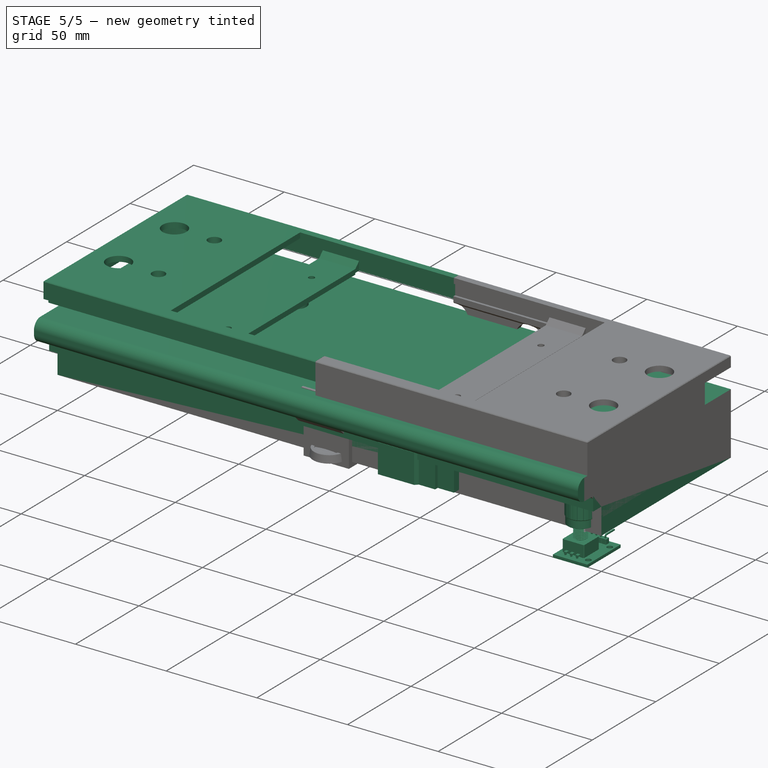
[diagram: stage 5 of 5 — iso view after this stage's code; geometry added in this stage tinted green]
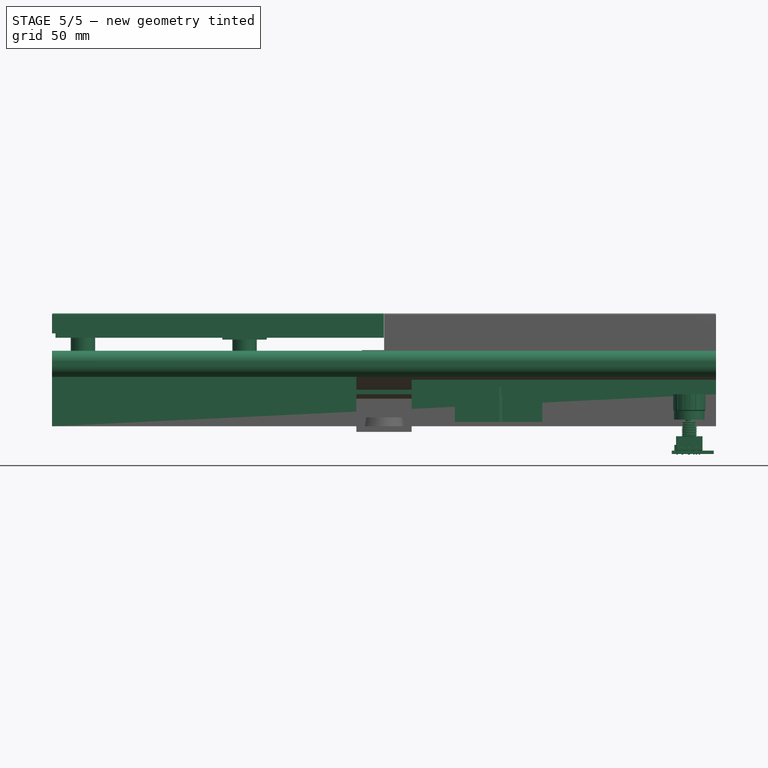
[diagram: stage 5 of 5 — front view after this stage's code; geometry added in this stage tinted green]
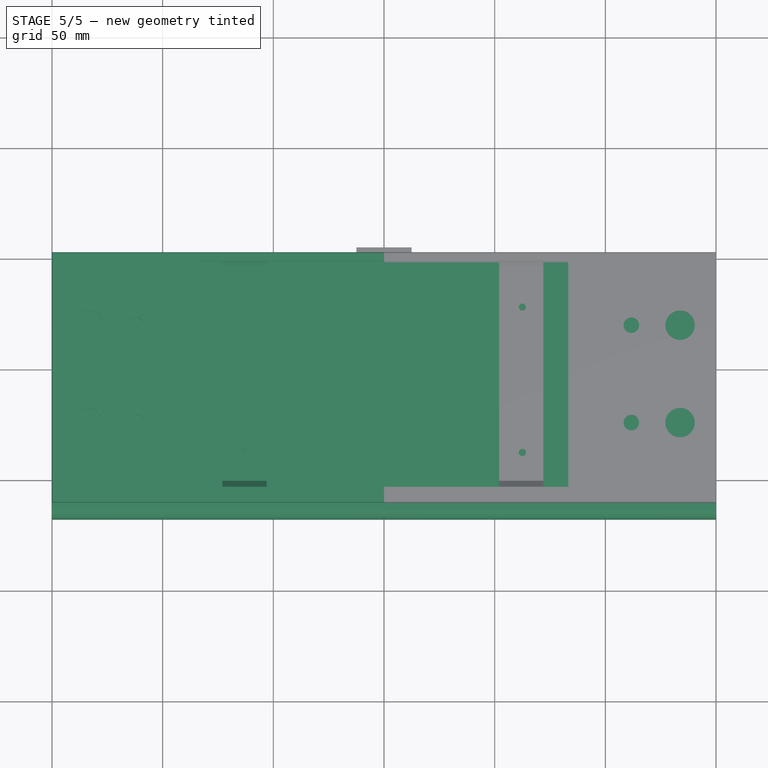
[diagram: stage 5 of 5 — top view after this stage's code; geometry added in this stage tinted green]
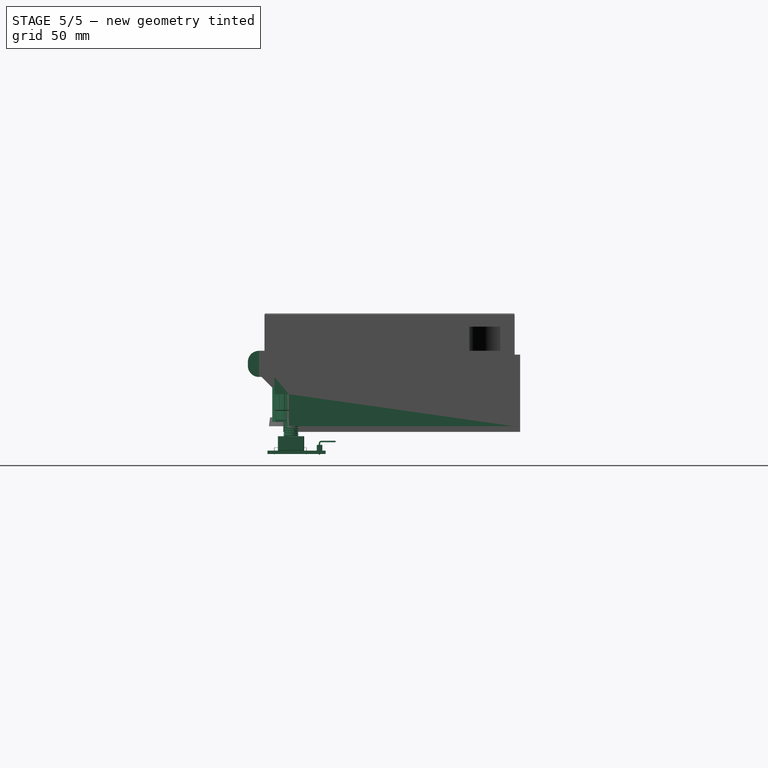
[diagram: stage 5 of 5 — right view after this stage's code; geometry added in this stage tinted green]
FEATURE [Part::Feature] Raspberry_Pi_Touch_Screen_Assembly  label="HDMI Board"
  Placement = pos=(0,0,-10) rot=(0,0,1;0rad)
  shape: bbox 65.02 x 56.02 x 1.42 mm, 14 faces (baked)
FEATURE [Part::Feature] Raspberry_Pi_Touch_Screen_Assembly001  label="7" Display"
  Placement = pos=(0,0,45) rot=(0,0,1;0rad)
  shape: bbox 193 x 110.8 x 10.98 mm, 87 faces (baked)
FEATURE [Part::Feature] Raspberry_Pi_Touch_Screen_Assembly002
  Placement = pos=(61.5,3.5,-22) rot=(0,0,1;0rad)
  shape: bbox 5.02 x 5.794 x 12.02 mm, 9 faces (baked)
FEATURE [Part::Feature] Raspberry_Pi_Touch_Screen_Assembly003
  Placement = pos=(3.5,52.5,-22) rot=(0,0,1;0rad)
  shape: bbox 5.02 x 5.794 x 12.02 mm, 9 faces (baked)
FEATURE [Part::Feature] Raspberry_Pi_Touch_Screen_Assembly004
  Placement = pos=(61.5,52.5,-22) rot=(0,0,1;0rad)
  shape: bbox 5.02 x 5.794 x 12.02 mm, 9 faces (baked)
FEATURE [Part::Feature] Raspberry_Pi_Touch_Screen_Assembly005
  Placement = pos=(3.5,3.5,-22) rot=(0,0,1;0rad)
  shape: bbox 5.02 x 5.794 x 12.02 mm, 9 faces (baked)
FEATURE [Part::Feature] Raspberry_Pi_Touch_Screen_Assembly007
  Placement = pos=(61.5,3.5,-17.5) rot=(1,0,0;3.14159rad)
  shape: bbox 5 x 6.612 x 11.43 mm, 33 faces (baked)
FEATURE [Part::Feature] Raspberry_Pi_Touch_Screen_Assembly008  label="SD Card"
  Placement = pos=(-62,5.9,-0.3) rot=(-1,0,0;1.5708rad)
  shape: bbox 15.02 x 11.05 x 1.073 mm, 82 faces, 0 solids (baked)
FEATURE [Part::Feature] Raspberry_Pi_Touch_Screen_Assembly009
  Placement = pos=(3.5,3.5,-17.4) rot=(1,0,0;3.14159rad)
  shape: bbox 5 x 6.612 x 11.43 mm, 33 faces (baked)
FEATURE [Part::Feature] Raspberry_Pi_Touch_Screen_Assembly010
  Placement = pos=(61.5,52.5,-17.4) rot=(1,0,0;3.14159rad)
  shape: bbox 5 x 6.612 x 11.43 mm, 33 faces (baked)
FEATURE [Part::Feature] Raspberry_Pi_Touch_Screen_Assembly011
  Placement = pos=(3.5,52.5,-17.4) rot=(1,0,0;3.14159rad)
  shape: bbox 5 x 6.612 x 11.43 mm, 33 faces (baked)
FEATURE [Part::Feature] Feature  label="Raspberry Pi 4 Model B001"
  Placement = pos=(-17.1,0.5,0.8) rot=(1,0,0;1.5708rad)
  shape: bbox 89 x 58.41 x 19.91 mm, 10487 faces, 109 solids (baked)
FEATURE [App::DocumentObjectGroup] Group003  label="Screws"
  Group = -> [Raspberry_Pi_Touch_Screen_Assembly002,Raspberry_Pi_Touch_Screen_Assembly003,Raspberry_Pi_Touch_Screen_Assembly004,Raspberry_Pi_Touch_Screen_Assembly005,Raspberry_Pi_Touch_Screen_Assembly007,Raspberry_Pi_Touch_Screen_Assembly009,Raspberry_Pi_Touch_Screen_Assembly010,Raspberry_Pi_Touch_Screen_Assembly011]
FEATURE [Part::Feature] Solid
  shape: bbox 19 x 26.25 x 1.54 mm, 202 faces (baked)
FEATURE [Part::Feature] Solid001 .. Solid005  x5 (patterned run collapsed; names and placements below)
  shape: bbox 2.51 x 2.45 x 2.6 mm, 14 faces (baked)
FEATURE [Part::Feature] Solid006
  shape: bbox 11.9 x 11.9 x 6.5 mm, 22 faces (baked)
FEATURE [Part::Feature] Solid007
  shape: bbox 1.5 x 1.65 x 3.29 mm, 14 faces (baked)
FEATURE [Part::Feature] Solid008
  shape: bbox 1.5 x 1.65 x 3.29 mm, 14 faces (baked)
FEATURE [Part::Feature] Solid009
  shape: bbox 1.5 x 1.1 x 3.29 mm, 14 faces (baked)
FEATURE [Part::Feature] Solid010
  shape: bbox 1.5 x 1.65 x 3.29 mm, 14 faces (baked)
FEATURE [Part::Feature] Solid011
  shape: bbox 1.5 x 1.1 x 3.29 mm, 14 faces (baked)
FEATURE [Part::Feature] Solid012 .. Solid016  x5 (patterned run collapsed; names and placements below)
  shape: bbox 0.65 x 7.6 x 6.24 mm, 18 faces (baked)
FEATURE [Part::Feature] Solid017
  shape: bbox 8.155 x 8.162 x 7.147 mm, 25 faces (baked)
FEATURE [Part::Feature] Solid018
  shape: bbox 6 x 6 x 20.15 mm, 7 faces (baked)
FEATURE [Part::Feature] Solid019
  shape: bbox 14.81 x 14.81 x 16.6 mm, 66 faces (baked)
FEATURE [Part::Compound2] Compound  label="Rotary Encoder - KY-040 v4"
  Links = -> [Solid,Solid001,Solid002,Solid003,Solid004,Solid005,Solid006,Solid007,Solid008,Solid009,Solid010,Solid011,Solid012,Solid013,Solid014,Solid015,Solid016,Solid017,Solid018,Solid019]
  Placement = pos=(139.5,3.5,-11) rot=(0,0,1;3.14159rad)
FEATURE [Part::Feature] Feature001  label="HifiberryDAC+"
  Placement = pos=(-0.4,1e-15,12.3) rot=(0,0,1;3.14159rad)
  shape: bbox 65 x 65.5 x 21.8 mm, 1217 faces, 46 solids (baked)
FEATURE [Part::Feature] DIN_5F_MAB
  shape: bbox 24.71 x 28 x 15.01 mm, 39 faces, 2 solids (baked)
FEATURE [Part::Feature] DIN_5F_MAB001
  Placement = pos=(-0.338284,13.0185,-13.6) rot=(0.998852,-0.047901,0;3.14159rad)
  shape: bbox 1.096 x 1.091 x 6 mm, 7 faces (baked)
FEATURE [Part::Feature] DIN_5F_MAB002
  Placement = pos=(4.19842,14.4808,-13.6) rot=(0.966881,0.255227,0;3.14159rad)
  shape: bbox 1.419 x 1.412 x 6 mm, 7 faces (baked)
FEATURE [Part::Feature] DIN_5F_MAB003
  Placement = pos=(6.98625,19.7158,-13.6) rot=(0.734923,0.678151,0;3.14159rad)
  shape: bbox 1.077 x 1.097 x 6 mm, 7 faces (baked)
FEATURE [Part::Feature] DIN_5F_MAB004
  Placement = pos=(5.25649,24.5958,-13.6) rot=(0.443201,0.896422,0;3.14159rad)
  shape: bbox 1.446 x 1.444 x 6 mm, 7 faces (baked)
FEATURE [Part::Feature] DIN_5F_MAB005
  Placement = pos=(0.482912,26.9645,-13.6) rot=(0.068684,0.997638,0;3.14159rad)
  shape: bbox 1.135 x 1.128 x 6 mm, 7 faces (baked)
FEATURE [App::Part] Part003  label="MIDI Connector"
  Group = -> [DIN_5F_MAB003,DIN_5F_MAB,DIN_5F_MAB001,DIN_5F_MAB002,DIN_5F_MAB004,DIN_5F_MAB005]
  Origin = -> Origin
  Placement = pos=(27,1.81e-14,-7) rot=(-0.57735,0.57735,0.57735;2.0944rad)
FEATURE [Part::Feature] Part__Feature  label="SL2616 - 3mm Grn LED v2"
  Placement = pos=(-12.5,-6e-15,-10) rot=(-1,0,0;1.5708rad)
  shape: bbox 8 x 24 x 9.238 mm, 21 faces (baked)
FEATURE [App::DocumentObjectGroup] Group  label="MIDI"
  Group = -> [Part__Feature,Part003]
FEATURE [App::Link] Link  label="MIDI Connector001"
  LinkTransform = true
  LinkedObject = -> Part003
FEATURE [App::Link] Link001  label="SL2616 - 3mm Grn LED v003"
  LinkTransform = true
  LinkedObject = -> Part__Feature
FEATURE [App::LinkGroup] LinkGroup  label="MIDI 2"
  ElementList = -> [Link,Link001]
  LinkMode = 1
  Placement = pos=(-41,4.29153e-06,9.53674e-07) rot=(0,0,1;0rad)
FEATURE [App::Link] Link002  label="MIDI Connector002"
  LinkTransform = true
  LinkedObject = -> Part003
FEATURE [App::Link] Link003  label="SL2616 - 3mm Grn LED v004"
  LinkTransform = true
  LinkedObject = -> Part__Feature
FEATURE [App::LinkGroup] LinkGroup001  label="MIDI 3"
  ElementList = -> [Link002,Link003]
  LinkMode = 1
  Placement = pos=(-82,4.29153e-06,9.53674e-07) rot=(0,0,1;0rad)
FEATURE [App::Link] Link004  label="Rotary Encoder - KY-040 v005"
  LinkPlacement = pos=(139.5,47.5003,-11.0001) rot=(0,0,1;3.14159rad)
  LinkedObject = -> Compound
  Placement = pos=(139.5,47.5003,-11.0001) rot=(0,0,1;3.14159rad)
FEATURE [App::Link] Link005  label="Rotary Encoder - KY-040 v006"
  LinkPlacement = pos=(-83.5,3.50017,-11) rot=(0,0,1;3.14159rad)
  LinkedObject = -> Compound
  Placement = pos=(-83.5,3.50017,-11) rot=(0,0,1;3.14159rad)
FEATURE [App::Link] Link006  label="Rotary Encoder - KY-040 v007"
  LinkPlacement = pos=(-83.5,47.5002,-11) rot=(0,0,1;3.14159rad)
  LinkedObject = -> Compound
  Placement = pos=(-83.5,47.5002,-11) rot=(0,0,1;3.14159rad)
FEATURE [App::DocumentObjectGroup] Group004  label="Encoder"
  Group = -> [Compound,Link004,Link005,Link006]
FEATURE [App::Part] Part004  label="MIDI Connectors"
  Group = -> [Part__Feature,Part003,Group,LinkGroup,LinkGroup001]
  Origin = -> Origin004
  Placement = pos=(34,102,38.2) rot=(0,0,1;0rad)
FEATURE [Sketcher::SketchObject] Sketch
  FullyConstrained = true
  MapMode = 5
  Placement = pos=(0,0,0) rot=(0.57735,0.57735,0.57735;2.0944rad)
  Support = -> [YZ_Plane032]
  sketch-geometry (11):
    g0: LineSegment StartX=0 StartY=0 StartZ=0 EndX=102 EndY=0 EndZ=0
    g1: LineSegment StartX=102 StartY=0 StartZ=0 EndX=102 EndY=34.1 EndZ=0
    g2: LineSegment StartX=102 StartY=34.1 StartZ=0 EndX=-13.5 EndY=34.1 EndZ=0
    g3: ArcOfCircle CenterX=-13.5 CenterY=29.1 CenterZ=0 NormalX=0 NormalY=0 NormalZ=1 AngleXU=0 Radius=5 StartAngle=1.5708 EndAngle=3.14159
    g4: LineSegment StartX=-18.5 StartY=29.1 StartZ=0 EndX=-18.5 EndY=27.3 EndZ=0
    g5: LineSegment StartX=0 StartY=14.5 StartZ=0 EndX=0 EndY=0 EndZ=0
    g6: LineSegment StartX=-13.5 StartY=22.3 StartZ=0 EndX=-6.5 EndY=22.3 EndZ=0
    g7: LineSegment StartX=-6.5 StartY=22.3 StartZ=0 EndX=-6.5 EndY=14.5 EndZ=0
    g8: LineSegment StartX=-6.5 StartY=14.5 StartZ=0 EndX=0 EndY=14.5 EndZ=0
    g9: ArcOfCircle CenterX=-13.5 CenterY=27.3 CenterZ=0 NormalX=0 NormalY=0 NormalZ=1 AngleXU=0 Radius=5 StartAngle=3.14159 EndAngle=4.71239
    g10: GeomPoint X=-18.5 Y=22.3 Z=0
  constraints (29):
    c: Coincident(g-1,g0)
    c: PointOnObject(g0,g-1)
    c: Coincident(g0,g1)
    c: Vertical(g1)
    c: Coincident(g1,g2)
    c: Horizontal(g2)
    c: Tangent(g2,g3) = -1.5708
    c: Tangent(g3,g4) = -1.5708
    c: PointOnObject(g5,g-2)
    c: Coincident(g5,g0)
    c: DistanceY(g1,g1) = 34.1
    c: Vertical(g4)
    c: Horizontal(g6)
    c: Coincident(g6,g7)
    c: Vertical(g7)
    c: Coincident(g7,g8)
    c: Coincident(g8,g5)
    c: Horizontal(g8)
    c: DistanceY(g5,g5) = 14.5
    c: DistanceX(g8,g8) = 6.5
    c: DistanceY(g7,g7) = 7.8
    c: DistanceX(g10,g6) = 12
    c: Radius(g3) = 5
    c: PointOnObject(g10,g4)
    c: PointOnObject(g10,g6)
    c: Tangent(g4,g9) = -1.5708
    c: Tangent(g6,g9) = -1.5708
    c: Radius(g9) = 5
    c: DistanceX(g0,g0) = 102
FEATURE [PartDesign::Pad] Pad
  Direction = (1,-2e-16,3e-16)
  Length = 300
  Length2 = 10
  Midplane = true
  Placement = pos=(0,0,0) rot=(0.57735,0.57735,0.57735;2.0944rad)
  Profile = -> Sketch
  ReferenceAxis = -> Sketch [N_Axis]
  Type = 0
FEATURE [PartDesign::Body] Body005  label="Button 4"
  Group = -> [Clone002]
  Origin = -> Origin036
  Placement = pos=(160,27,0) rot=(0,0,1;0rad)
  Tip = -> Clone002
FEATURE [Sketcher::SketchObject] Sketch002
  FullyConstrained = true
  MapMode = 5
  Placement = pos=(0,0,0) rot=(0.57735,0.57735,0.57735;2.0944rad)
  Support = -> [YZ_Plane037]
  sketch-geometry (8):
    g0: LineSegment StartX=0 StartY=0 StartZ=0 EndX=102 EndY=0 EndZ=0
    g1: LineSegment StartX=102 StartY=0 StartZ=0 EndX=102 EndY=42 EndZ=0
    g2: LineSegment StartX=102 StartY=42 StartZ=0 EndX=-11 EndY=42 EndZ=0
    g3: LineSegment StartX=-11 StartY=42 StartZ=0 EndX=-11 EndY=28.3995 EndZ=0
    g4: LineSegment StartX=-8.94975 StartY=23.4497 StartZ=0 EndX=0 EndY=14.5 EndZ=0
    g5: LineSegment StartX=0 StartY=14.5 StartZ=0 EndX=0 EndY=0 EndZ=0
    g6: ArcOfCircle CenterX=-4 CenterY=28.3995 CenterZ=0 NormalX=0 NormalY=0 NormalZ=1 AngleXU=0 Radius=7 StartAngle=3.14159 EndAngle=3.92699
    g7: GeomPoint X=-11 Y=25.5 Z=0
  constraints (21):
    c: Coincident(g-1,g0)
    c: PointOnObject(g0,g-1)
    c: Coincident(g0,g1)
    c: Vertical(g1)
    c: Horizontal(g2)
    c: Coincident(g2,g3)
    c: Vertical(g3)
    c: PointOnObject(g4,g-2)
    c: Coincident(g4,g5)
    c: Coincident(g5,g0)
    c: DistanceX(g0,g0) = 102
    c: DistanceY(g1,g1) = 42
    c: DistanceY(g5,g5) = 14.5
    c: Angle(g4,g5) = 2.35619
    c: DistanceX(g2,g1) = 113
    c: PointOnObject(g7,g3)
    c: PointOnObject(g7,g4)
    c: Tangent(g3,g6) = -1.5708
    c: Tangent(g4,g6) = -1.5708
    c: Radius(g6) = 7
    c: Coincident(g2,g1)
FEATURE [PartDesign::Pad] Pad001  label="Base"
  Direction = (1,-2e-16,3e-16)
  Length = 300
  Length2 = 10
  Midplane = true
  Placement = pos=(0,0,0) rot=(0.57735,0.57735,0.57735;2.0944rad)
  Profile = -> Sketch002
  ReferenceAxis = -> Sketch002 [N_Axis]
  Type = 0
FEATURE [Sketcher::SketchObject] Sketch003
  ExternalGeometry = -> [Pad001]
  FullyConstrained = true
  MapMode = 5
  Placement = pos=(0,0,4e-16) rot=(0.707107,0.707107,0;3.14159rad)
  Support = -> [Pad001]
  sketch-geometry (20):
    g0: LineSegment StartX=95.5 StartY=130 StartZ=0 EndX=88.5 EndY=130 EndZ=0
    g1: LineSegment StartX=88.5 StartY=130 StartZ=0 EndX=88.5 EndY=147 EndZ=0
    g2: LineSegment StartX=88.5 StartY=147 StartZ=0 EndX=73.5 EndY=147 EndZ=0
    g3: LineSegment StartX=73.5 StartY=147 StartZ=0 EndX=73.5 EndY=141.5 EndZ=0
    g4: LineSegment StartX=73.5 StartY=141.5 StartZ=0 EndX=63 EndY=141.5 EndZ=0
    g5: LineSegment StartX=63 StartY=141.5 StartZ=0 EndX=63 EndY=147 EndZ=0
    g6: LineSegment StartX=63 StartY=147 StartZ=0 EndX=-2.84e-14 EndY=147 EndZ=0
    g7: LineSegment StartX=-2.84e-14 StartY=147 StartZ=0 EndX=-3.21e-14 EndY=150 EndZ=0
    g8: LineSegment StartX=-3.21e-14 StartY=150 StartZ=0 EndX=95.5 EndY=150 EndZ=0
    g9: LineSegment StartX=95.5 StartY=150 StartZ=0 EndX=95.5 EndY=130 EndZ=0
    g10: LineSegment StartX=95.5 StartY=-130 StartZ=0 EndX=88.5 EndY=-130 EndZ=0
    g11: LineSegment StartX=88.5 StartY=-130 StartZ=0 EndX=88.5 EndY=-147 EndZ=0
    g12: LineSegment StartX=88.5 StartY=-147 StartZ=0 EndX=73.5 EndY=-147 EndZ=0
    g13: LineSegment StartX=73.5 StartY=-147 StartZ=0 EndX=73.5 EndY=-141.5 EndZ=0
    g14: LineSegment StartX=73.5 StartY=-141.5 StartZ=0 EndX=63 EndY=-141.5 EndZ=0
    g15: LineSegment StartX=63 StartY=-141.5 StartZ=0 EndX=63 EndY=-147 EndZ=0
    g16: LineSegment StartX=63 StartY=-147 StartZ=0 EndX=3.55e-14 EndY=-147 EndZ=0
    g17: LineSegment StartX=3.55e-14 StartY=-147 StartZ=0 EndX=3.37e-14 EndY=-150 EndZ=0
    g18: LineSegment StartX=3.37e-14 StartY=-150 StartZ=0 EndX=95.5 EndY=-150 EndZ=0
    g19: LineSegment StartX=95.5 StartY=-150 StartZ=0 EndX=95.5 EndY=-130 EndZ=0
  constraints (58):
    c: Coincident(g0,g1)
    c: Horizontal(g2)
    c: Coincident(g2,g3)
    c: Coincident(g3,g4)
    c: Horizontal(g4)
    c: Coincident(g4,g5)
    c: Vertical(g5)
    c: Coincident(g5,g6)
    c: PointOnObject(g6,g-5)
    c: Horizontal(g6)
    c: Coincident(g6,g7)
    c: Vertical(g3)
    c: Vertical(g1)
    c: Horizontal(g0)
    c: DistanceY(g7,g7) = 3
    c: Horizontal(g5,g2)
    c: DistanceX(g5,g2) = 10.5
    c: Coincident(g8,g7)
    c: Horizontal(g8)
    c: DistanceX(g2,g-4) = 28.5
    c: DistanceY(g5,g5) = 5.5
    c: Coincident(g7,g-5)
    c: DistanceY(g0,g8) = 20
    c: DistanceX(g8,g-4) = 6.5
    c: DistanceX(g0,g0) = 7
    c: Coincident(g1,g2)
    c: Coincident(g8,g9)
    c: Vertical(g9)
    c: Coincident(g10,g11)
    c: Horizontal(g12)
    c: Coincident(g12,g13)
    c: Coincident(g13,g14)
    c: Horizontal(g14)
    c: Coincident(g14,g15)
    c: Vertical(g15)
    c: Coincident(g15,g16)
    c: Horizontal(g16)
    c: Coincident(g16,g17)
    c: Vertical(g13)
    c: Vertical(g11)
    c: Horizontal(g10)
    c: Coincident(g18,g17)
    c: Horizontal(g18)
    c: Coincident(g11,g12)
    c: Coincident(g18,g19)
    c: Vertical(g19)
    c: Coincident(g17,g-6)
    c: PointOnObject(g16,g-5)
    c: Vertical(g18,g8)
    c: Vertical(g14,g4)
    c: Vertical(g3,g13)
    c: Equal(g17,g7)
    c: Vertical(g10,g0)
    c: Horizontal(g12,g15)
    c: Equal(g13,g3)
    c: Equal(g11,g1)
    c: Coincident(g9,g0)
    c: Coincident(g10,g19)
FEATURE [PartDesign::Pocket] Pocket  label="Buttom Cutouts"
  BaseFeature = -> Pad001
  Direction = (-4e-16,6e-16,1)
  Length = 8.9
  Length2 = 5
  Placement = pos=(0,0,0) rot=(0.57735,0.57735,0.57735;2.0944rad)
  Profile = -> Sketch003
  ReferenceAxis = -> Sketch003 [N_Axis]
  Type = 0
FEATURE [Sketcher::SketchObject] Sketch004
  ExternalGeometry = -> [Pocket]
  FullyConstrained = true
  MapMode = 5
  Placement = pos=(-1.18e-14,1.85e-14,42) rot=(0,0,-1;1.5708rad)
  Support = -> [Pocket]
  sketch-geometry (8):
    g0: LineSegment StartX=-95.5 StartY=132 StartZ=0 EndX=-102 EndY=132 EndZ=0
    g1: LineSegment StartX=-102 StartY=132 StartZ=0 EndX=-102 EndY=150 EndZ=0
    g2: LineSegment StartX=-102 StartY=150 StartZ=0 EndX=-81.5 EndY=150 EndZ=0
    g3: ArcOfCircle CenterX=-100.071 CenterY=150 CenterZ=0 NormalX=0 NormalY=0 NormalZ=1 AngleXU=0 Radius=18.5714 StartAngle=4.9611 EndAngle=6.28319
    g4: LineSegment StartX=-95.5 StartY=-132 StartZ=0 EndX=-102 EndY=-132 EndZ=0
    g5: LineSegment StartX=-102 StartY=-132 StartZ=0 EndX=-102 EndY=-150 EndZ=0
    g6: LineSegment StartX=-102 StartY=-150 StartZ=0 EndX=-81.5 EndY=-150 EndZ=0
    g7: ArcOfCircle CenterX=-100.071 CenterY=-150 CenterZ=0 NormalX=0 NormalY=0 NormalZ=1 AngleXU=0 Radius=18.5714 StartAngle=0 EndAngle=1.32209
  constraints (22):
    c: PointOnObject(g0,g-4)
    c: Horizontal(g0)
    c: Coincident(g0,g1)
    c: Coincident(g1,g-4)
    c: Coincident(g1,g2)
    c: PointOnObject(g2,g-3)
    c: Perpendicular(g2,g3) = 1.5708
    c: Coincident(g3,g0)
    c: DistanceY(g1,g1) = 18
    c: DistanceX(g0,g0) = 6.5
    c: DistanceX(g0,g2) = 14
    c: PointOnObject(g4,g-4)
    c: Horizontal(g4)
    c: Coincident(g4,g5)
    c: Coincident(g5,g-5)
    c: Coincident(g5,g6)
    c: PointOnObject(g6,g-5)
    c: Perpendicular(g6,g7) = 1.5708
    c: Coincident(g7,g4)
    c: Equal(g1,g5)
    c: Vertical(g0,g4)
    c: Vertical(g2,g6)
FEATURE [PartDesign::Pocket] Pocket001  label="Edge Cutouts001"
  BaseFeature = -> Pocket
  Direction = (7e-16,-7e-16,-1)
  Length = 8
  Length2 = 5
  Placement = pos=(0,0,0) rot=(0.57735,0.57735,0.57735;2.0944rad)
  Profile = -> Sketch004
  ReferenceAxis = -> Sketch004 [N_Axis]
  Type = 0
FEATURE [PartDesign::Thickness] Thickness
  Base = -> Pocket001 [Face26]
  BaseFeature = -> Pocket001
  Intersection = false
  Join = 1
  Mode = 0
  Reversed = true
  SupportTransform = false
  Value = 3
FEATURE [Sketcher::SketchObject] Sketch005
  FullyConstrained = true
  MapMode = 5
  Placement = pos=(0,0,0) rot=(0.57735,0.57735,0.57735;2.0944rad)
  Support = -> [YZ_Plane038]
  sketch-geometry (4):
    g0: LineSegment StartX=-11 StartY=51 StartZ=0 EndX=102 EndY=51 EndZ=0
    g1: LineSegment StartX=102 StartY=51 StartZ=0 EndX=102 EndY=40 EndZ=0
    g2: LineSegment StartX=102 StartY=40 StartZ=0 EndX=-11 EndY=40 EndZ=0
    g3: LineSegment StartX=-11 StartY=40 StartZ=0 EndX=-11 EndY=51 EndZ=0
  constraints (12):
    c: Coincident(g0,g1)
    c: Coincident(g1,g2)
    c: Coincident(g2,g3)
    c: Coincident(g3,g0)
    c: Horizontal(g0)
    c: Horizontal(g2)
    c: Vertical(g1)
    c: Vertical(g3)
    c: DistanceX(g0,g0) = 113
    c: DistanceX(g-1,g1) = 102
    c: DistanceY(g3,g3) = 11
    c: DistanceY(g-1,g2) = 40
FEATURE [PartDesign::Pad] Pad002
  Direction = (1,-2e-16,3e-16)
  Length = 300
  Length2 = 10
  Midplane = true
  Placement = pos=(0,0,0) rot=(0.57735,0.57735,0.57735;2.0944rad)
  Profile = -> Sketch005
  ReferenceAxis = -> Sketch005 [N_Axis]
  Type = 0
FEATURE [Sketcher::SketchObject] Sketch006
  ExternalGeometry = -> [Pad002]
  FullyConstrained = true
  MapMode = 5
  Placement = pos=(-1.12e-14,1.76e-14,40) rot=(0.707107,0.707107,0;3.14159rad)
  Support = -> [Pad002]
  sketch-geometry (8):
    g0: LineSegment StartX=102 StartY=150 StartZ=0 EndX=81.5 EndY=150 EndZ=0
    g1: ArcOfCircle CenterX=100.071 CenterY=150 CenterZ=0 NormalX=0 NormalY=0 NormalZ=1 AngleXU=0 Radius=18.5714 StartAngle=3.14159 EndAngle=4.46368
    g2: LineSegment StartX=95.5 StartY=132 StartZ=0 EndX=102 EndY=132 EndZ=0
    g3: LineSegment StartX=102 StartY=132 StartZ=0 EndX=102 EndY=150 EndZ=0
    g4: LineSegment StartX=102 StartY=-150 StartZ=0 EndX=81.5 EndY=-150 EndZ=0
    g5: ArcOfCircle CenterX=100.071 CenterY=-150 CenterZ=0 NormalX=0 NormalY=0 NormalZ=1 AngleXU=0 Radius=18.5714 StartAngle=1.81951 EndAngle=3.14159
    g6: LineSegment StartX=95.5 StartY=-132 StartZ=0 EndX=102 EndY=-132 EndZ=0
    g7: LineSegment StartX=102 StartY=-132 StartZ=0 EndX=102 EndY=-150 EndZ=0
  constraints (22):
    c: Coincident(g-4,g0)
    c: PointOnObject(g0,g-3)
    c: Perpendicular(g0,g1) = 1.5708
    c: Coincident(g1,g2)
    c: PointOnObject(g2,g-4)
    c: Horizontal(g2)
    c: Coincident(g2,g3)
    c: Coincident(g3,g0)
    c: Coincident(g-5,g4)
    c: PointOnObject(g4,g-5)
    c: Perpendicular(g4,g5) = 1.5708
    c: Coincident(g5,g6)
    c: PointOnObject(g6,g-4)
    c: Coincident(g6,g7)
    c: Coincident(g7,g4)
    c: Horizontal(g6)
    c: Vertical(g4,g0)
    c: Equal(g3,g7)
    c: DistanceY(g3,g3) = 18
    c: DistanceX(g2,g2) = 6.5
    c: DistanceX(g0,g1) = 14
    c: Vertical(g5,g1)
FEATURE [PartDesign::Pocket] Pocket002  label="Edge Cutouts"
  BaseFeature = -> Pad002
  Direction = (-4e-16,6e-16,1)
  Length = 5
  Length2 = 5
  Placement = pos=(0,0,0) rot=(0.57735,0.57735,0.57735;2.0944rad)
  Profile = -> Sketch006
  ReferenceAxis = -> Sketch006 [N_Axis]
  Type = 0
FEATURE [PartDesign::Thickness] Thickness001
  Base = -> Pocket002 [Face6]
  BaseFeature = -> Pocket002
  Intersection = false
  Join = 1
  Mode = 0
  Reversed = true
  SupportTransform = false
  Value = 2.95
FEATURE [Sketcher::SketchObject] Sketch007
  ExternalGeometry = -> [Thickness001]
  FullyConstrained = true
  MapMode = 5
  Placement = pos=(0,3.3e-14,51) rot=(0,0,1;0rad)
  sketch-geometry (14):
    g0: LineSegment StartX=83.25 StartY=-4 StartZ=0 EndX=-84.75 EndY=-4 EndZ=0
    g1: LineSegment StartX=-84.75 StartY=-4 StartZ=0 EndX=-84.75 EndY=98 EndZ=0
    g2: LineSegment StartX=-84.75 StartY=98 StartZ=0 EndX=83.25 EndY=98 EndZ=0
    g3: LineSegment StartX=83.25 StartY=98 StartZ=0 EndX=83.25 EndY=-4 EndZ=0
    g4: Circle CenterX=-111.75 CenterY=69 CenterZ=0 NormalX=0 NormalY=0 NormalZ=1 AngleXU=0 Radius=3.5
    g5: Circle CenterX=-111.75 CenterY=25 CenterZ=0 NormalX=0 NormalY=0 NormalZ=1 AngleXU=0 Radius=3.5
    g6: Circle CenterX=111.75 CenterY=69 CenterZ=0 NormalX=0 NormalY=0 NormalZ=1 AngleXU=0 Radius=3.5
    g7: Circle CenterX=111.75 CenterY=25 CenterZ=0 NormalX=0 NormalY=0 NormalZ=1 AngleXU=0 Radius=3.5
    g8: Circle CenterX=133.75 CenterY=69 CenterZ=0 NormalX=0 NormalY=0 NormalZ=1 AngleXU=0 Radius=6.625
    g9: Circle CenterX=133.75 CenterY=25 CenterZ=0 NormalX=0 NormalY=0 NormalZ=1 AngleXU=0 Radius=6.625
    g10: Circle CenterX=-133.75 CenterY=25 CenterZ=0 NormalX=0 NormalY=0 NormalZ=1 AngleXU=0 Radius=6.625
    g11: Circle CenterX=-133.75 CenterY=69 CenterZ=0 NormalX=0 NormalY=0 NormalZ=1 AngleXU=0 Radius=6.625
    g12: LineSegment StartX=-96.75 StartY=102 StartZ=0 EndX=-96.75 EndY=-11 EndZ=0
    g13: LineSegment StartX=96.75 StartY=102 StartZ=0 EndX=96.75 EndY=-11 EndZ=0
  constraints (40):
    c: Coincident(g0,g1)
    c: Coincident(g1,g2)
    c: Coincident(g2,g3)
    c: Coincident(g3,g0)
    c: Horizontal(g2)
    c: Vertical(g1)
    c: Vertical(g3)
    c: DistanceX(g2,g2) = 168
    c: DistanceY(g3,g3) = 102
    c: Symmetric(g11,g8,g-2)
    c: Symmetric(g4,g6,g-2)
    c: Symmetric(g5,g7,g-2)
    c: Symmetric(g10,g9,g-2)
    c: Equal(g9,g8)
    c: Equal(g8,g11)
    c: Equal(g11,g10)
    c: Equal(g4,g5)
    c: Equal(g5,g7)
    c: Equal(g7,g6)
    c: Vertical(g10,g11)
    c: Vertical(g5,g4)
    c: Diameter(g4) = 7
    c: Diameter(g11) = 13.25
    c: Horizontal(g0)
    c: Vertical(g12)
    c: Vertical(g13)
    c: DistanceX(g12,g13) = 193.5
    c: Symmetric(g12,g13,g-2)
    c: DistanceX(g12,g0) = 12
    c: DistanceX(g0,g13) = 13.5
    c: DistanceX(g4,g12) = 15
    c: DistanceX(g11,g4) = 22
    c: DistanceY(g10,g11) = 44
    c: DistanceY(g5,g4) = 44
    c: DistanceY(g1,g-4) = 4
    c: PointOnObject(g12,g-3)
    c: PointOnObject(g12,g-5)
    c: PointOnObject(g13,g-3)
    c: DistanceY(g4,g-4) = 33
    c: DistanceY(g11,g-4) = 33
FEATURE [PartDesign::Pocket] Pocket003  label="Frontpanel Cutouts"
  BaseFeature = -> Thickness001
  Direction = (0,0,-1)
  Length = 5
  Length2 = 5
  Profile = -> Sketch007
  ReferenceAxis = -> Sketch007 [N_Axis]
  Type = 1
FEATURE [Sketcher::SketchObject] Sketch008
  ExternalGeometry = -> [Pocket003]
  FullyConstrained = true
  MapMode = 5
  Placement = pos=(-1.35e-14,2.11e-14,48.05) rot=(1,0,0;3.14159rad)
  Support = -> [Pocket003]
  sketch-geometry (52):
    g0: LineSegment StartX=-118.75 StartY=-18 StartZ=0 EndX=-104.75 EndY=-18 EndZ=0
    g1: LineSegment StartX=-104.75 StartY=-18 StartZ=0 EndX=-104.75 EndY=-32 EndZ=0
    g2: LineSegment StartX=-104.75 StartY=-32 StartZ=0 EndX=-110.65 EndY=-32 EndZ=0
    g3: LineSegment StartX=-110.65 StartY=-32 StartZ=0 EndX=-110.65 EndY=-30 EndZ=0
    g4: LineSegment StartX=-110.65 StartY=-30 StartZ=0 EndX=-112.85 EndY=-30 EndZ=0
    g5: LineSegment StartX=-112.85 StartY=-30 StartZ=0 EndX=-112.85 EndY=-32 EndZ=0
    g6: LineSegment StartX=-112.85 StartY=-32 StartZ=0 EndX=-118.75 EndY=-32 EndZ=0
    g7: Circle CenterX=-111.75 CenterY=-25 CenterZ=0 NormalX=0 NormalY=0 NormalZ=1 AngleXU=0 Radius=3.5
    g8: LineSegment StartX=-118.75 StartY=-62 StartZ=0 EndX=-104.75 EndY=-62 EndZ=0
    g9: LineSegment StartX=-104.75 StartY=-76 StartZ=0 EndX=-110.65 EndY=-76 EndZ=0
    g10: LineSegment StartX=-110.65 StartY=-76 StartZ=0 EndX=-110.65 EndY=-74 EndZ=0
    g11: LineSegment StartX=-110.65 StartY=-74 StartZ=0 EndX=-112.85 EndY=-74 EndZ=0
    g12: LineSegment StartX=-112.85 StartY=-74 StartZ=0 EndX=-112.85 EndY=-76 EndZ=0
    g13: LineSegment StartX=-112.85 StartY=-76 StartZ=0 EndX=-118.75 EndY=-76 EndZ=0
    g14: Circle CenterX=-111.75 CenterY=-69 CenterZ=0 NormalX=0 NormalY=0 NormalZ=1 AngleXU=0 Radius=3.5
    g15: LineSegment StartX=104.75 StartY=-18 StartZ=0 EndX=118.75 EndY=-18 EndZ=0
    g16: LineSegment StartX=118.75 StartY=-32 StartZ=0 EndX=112.85 EndY=-32 EndZ=0
    g17: LineSegment StartX=112.85 StartY=-32 StartZ=0 EndX=112.85 EndY=-30 EndZ=0
    g18: LineSegment StartX=112.85 StartY=-30 StartZ=0 EndX=110.65 EndY=-30 EndZ=0
    g19: LineSegment StartX=110.65 StartY=-30 StartZ=0 EndX=110.65 EndY=-32 EndZ=0
    g20: LineSegment StartX=110.65 StartY=-32 StartZ=0 EndX=104.75 EndY=-32 EndZ=0
    g21: LineSegment StartX=104.75 StartY=-32 StartZ=0 EndX=104.75 EndY=-18 EndZ=0
    g22: Circle CenterX=111.75 CenterY=-25 CenterZ=0 NormalX=0 NormalY=0 NormalZ=1 AngleXU=0 Radius=3.5
    g23: LineSegment StartX=104.75 StartY=-62 StartZ=0 EndX=118.75 EndY=-62 EndZ=0
    g24: LineSegment StartX=118.75 StartY=-76 StartZ=0 EndX=112.85 EndY=-76 EndZ=0
    g25: LineSegment StartX=112.85 StartY=-76 StartZ=0 EndX=112.85 EndY=-74 EndZ=0
    g26: LineSegment StartX=112.85 StartY=-74 StartZ=0 EndX=110.65 EndY=-74 EndZ=0
    g27: LineSegment StartX=110.65 StartY=-74 StartZ=0 EndX=110.65 EndY=-76 EndZ=0
    g28: LineSegment StartX=110.65 StartY=-76 StartZ=0 EndX=104.75 EndY=-76 EndZ=0
    g29: LineSegment StartX=104.75 StartY=-76 StartZ=0 EndX=104.75 EndY=-62 EndZ=0
    g30: Circle CenterX=111.75 CenterY=-69 CenterZ=0 NormalX=0 NormalY=0 NormalZ=1 AngleXU=0 Radius=3.5
    g31: LineSegment StartX=-104.75 StartY=-62 StartZ=0 EndX=-104.75 EndY=-76 EndZ=0
    g32: LineSegment StartX=-118.75 StartY=-18 StartZ=0 EndX=-118.75 EndY=-23.9 EndZ=0
    g33: LineSegment StartX=-118.75 StartY=-23.9 StartZ=0 EndX=-116.75 EndY=-23.9 EndZ=0
    g34: LineSegment StartX=-116.75 StartY=-23.9 StartZ=0 EndX=-116.75 EndY=-26.1 EndZ=0
    g35: LineSegment StartX=-116.75 StartY=-26.1 StartZ=0 EndX=-118.75 EndY=-26.1 EndZ=0
    g36: LineSegment StartX=-118.75 StartY=-26.1 StartZ=0 EndX=-118.75 EndY=-32 EndZ=0
    g37: LineSegment StartX=-118.75 StartY=-76 StartZ=0 EndX=-118.75 EndY=-70.1 EndZ=0
    g38: LineSegment StartX=-118.75 StartY=-70.1 StartZ=0 EndX=-116.75 EndY=-70.1 EndZ=0
    g39: LineSegment StartX=-116.75 StartY=-70.1 StartZ=0 EndX=-116.75 EndY=-67.9 EndZ=0
    g40: LineSegment StartX=-116.75 StartY=-67.9 StartZ=0 EndX=-118.75 EndY=-67.9 EndZ=0
    g41: LineSegment StartX=-118.75 StartY=-67.9 StartZ=0 EndX=-118.75 EndY=-62 EndZ=0
    g42: LineSegment StartX=118.75 StartY=-76 StartZ=0 EndX=118.75 EndY=-70.1 EndZ=0
    g43: LineSegment StartX=118.75 StartY=-70.1 StartZ=0 EndX=116.75 EndY=-70.1 EndZ=0
    g44: LineSegment StartX=116.75 StartY=-70.1 StartZ=0 EndX=116.75 EndY=-67.9 EndZ=0
    g45: LineSegment StartX=116.75 StartY=-67.9 StartZ=0 EndX=118.75 EndY=-67.9 EndZ=0
    g46: LineSegment StartX=118.75 StartY=-67.9 StartZ=0 EndX=118.75 EndY=-62 EndZ=0
    g47: LineSegment StartX=118.75 StartY=-32 StartZ=0 EndX=118.75 EndY=-26.1 EndZ=0
    g48: LineSegment StartX=118.75 StartY=-26.1 StartZ=0 EndX=116.75 EndY=-26.1 EndZ=0
    g49: LineSegment StartX=116.75 StartY=-26.1 StartZ=0 EndX=116.75 EndY=-23.9 EndZ=0
    g50: LineSegment StartX=116.75 StartY=-23.9 StartZ=0 EndX=118.75 EndY=-23.9 EndZ=0
    g51: LineSegment StartX=118.75 StartY=-23.9 StartZ=0 EndX=118.75 EndY=-18 EndZ=0
  constraints (148):
    c: Horizontal(g0)
    c: Coincident(g0,g1)
    c: Vertical(g1)
    c: Coincident(g1,g2)
    c: Horizontal(g2)
    c: Coincident(g2,g3)
    c: Coincident(g3,g4)
    c: Coincident(g4,g5)
    c: Vertical(g5)
    c: Coincident(g5,g6)
    c: Horizontal(g6)
    c: Horizontal(g4)
    c: Vertical(g3)
    c: Symmetric(g6,g0,g7)
    c: Horizontal(g5,g2)
    c: DistanceX(g4,g4) = 2.2
    c: DistanceX(g0,g0) = 14
    c: DistanceY(g6,g0) = 14
    c: DistanceY(g3,g3) = 2
    c: Equal(g6,g2)
    c: Horizontal(g8)
    c: Horizontal(g9)
    c: Coincident(g9,g10)
    c: Coincident(g10,g11)
    c: Coincident(g11,g12)
    c: Vertical(g12)
    c: Coincident(g12,g13)
    c: Horizontal(g13)
    c: Horizontal(g11)
    c: Vertical(g10)
    c: Symmetric(g13,g8,g14)
    c: Horizontal(g12,g9)
    c: Equal(g4,g11) = 2.2
    c: Equal(g0,g8) = 14
    c: Equal(g3,g10) = 2
    c: Equal(g13,g9)
    c: Horizontal(g15)
    c: Horizontal(g16)
    c: Coincident(g16,g17)
    c: Coincident(g17,g18)
    c: Coincident(g18,g19)
    c: Vertical(g19)
    c: Coincident(g19,g20)
    c: Coincident(g20,g21)
    c: Coincident(g21,g15)
    c: Vertical(g21)
    c: Horizontal(g20)
    c: Horizontal(g18)
    c: Vertical(g17)
    c: Symmetric(g20,g15,g22)
    c: Horizontal(g19,g16)
    c: Equal(g4,g18) = 2.2
    c: Equal(g0,g15) = 14
    c: Equal(g3,g17) = 2
    c: Equal(g20,g16)
    c: Horizontal(g23)
    c: Horizontal(g24)
    c: Coincident(g24,g25)
    c: Coincident(g25,g26)
    c: Coincident(g26,g27)
    c: Vertical(g27)
    c: Coincident(g27,g28)
    c: Coincident(g28,g29)
    c: Coincident(g29,g23)
    c: Vertical(g29)
    c: Horizontal(g28)
    c: Horizontal(g26)
    c: Vertical(g25)
    c: Symmetric(g28,g23,g30)
    c: Horizontal(g27,g24)
    c: Equal(g4,g26) = 2.2
    c: Equal(g0,g23) = 14
    c: Equal(g3,g25) = 2
    c: Equal(g28,g24)
    c: Equal(g7,g22)
    c: Equal(g22,g30)
    c: Coincident(g31,g8)
    c: Coincident(g31,g9)
    c: Vertical(g31)
    c: Coincident(g0,g32)
    c: Vertical(g32)
    c: Coincident(g32,g33)
    c: Horizontal(g33)
    c: Coincident(g33,g34)
    c: Vertical(g34)
    c: Coincident(g34,g35)
    c: Horizontal(g35)
    c: Coincident(g35,g36)
    c: Coincident(g36,g6)
    c: Vertical(g36)
    c: Coincident(g13,g37)
    c: Vertical(g37)
    c: Coincident(g37,g38)
    c: Horizontal(g38)
    c: Coincident(g38,g39)
    c: Vertical(g39)
    c: Coincident(g39,g40)
    c: Horizontal(g40)
    c: Coincident(g40,g41)
    c: Coincident(g41,g8)
    c: Vertical(g41)
    c: Coincident(g24,g42)
    c: Vertical(g42)
    c: Coincident(g42,g43)
    c: Horizontal(g43)
    c: Coincident(g43,g44)
    c: Vertical(g44)
    c: Coincident(g44,g45)
    c: Horizontal(g45)
    c: Coincident(g45,g46)
    c: Coincident(g46,g23)
    c: Vertical(g46)
    c: Coincident(g16,g47)
    c: Vertical(g47)
    c: Coincident(g47,g48)
    c: Horizontal(g48)
    c: Coincident(g48,g49)
    c: Vertical(g49)
    c: Coincident(g49,g50)
    c: Horizontal(g50)
    c: Coincident(g50,g51)
    c: Coincident(g51,g15)
    c: Vertical(g51)
    c: Equal(g51,g47)
    c: Equal(g18,g49)
    c: Equal(g17,g48)
    c: Vertical(g47,g50)
    c: Equal(g46,g42)
    c: Equal(g44,g26)
    c: Equal(g25,g43)
    c: Equal(g32,g36)
    c: Equal(g34,g4)
    c: Equal(g35,g5)
    c: Equal(g11,g39)
    c: Equal(g38,g12)
    c: Equal(g37,g41)
    c: Vertical(g40,g37)
    c: Vertical(g32,g35)
    c: Vertical(g45,g42)
    c: Equal(g1,g31)
    c: Equal(g1,g21)
    c: Equal(g1,g29)
    c: Equal(g7,g-4)
    c: Coincident(g-4,g7)
    c: Coincident(g-5,g14)
    c: Equal(g14,g7)
    c: Coincident(g30,g-6)
    c: Coincident(g22,g-7)
FEATURE [PartDesign::Pad] Pad003  label="Knob Index Pads"
  BaseFeature = -> Pocket003
  Direction = (7e-16,-7e-16,-1)
  Length = 1
  Length2 = 10
  Profile = -> Sketch008
  ReferenceAxis = -> Sketch008 [N_Axis]
  Type = 0
FEATURE [Sketcher::SketchObject] Sketch009
  ExternalGeometry = -> [Pad003]
  FullyConstrained = true
  MapMode = 5
  Placement = pos=(-1.35e-14,2.11e-14,48.05) rot=(1,0,0;3.14159rad)
  Support = -> [Pad003]
  sketch-geometry (8):
    g0: LineSegment StartX=129.05 StartY=-95.145 StartZ=0 EndX=129.05 EndY=-99.05 EndZ=0
    g1: LineSegment StartX=129.05 StartY=-99.05 StartZ=0 EndX=147.05 EndY=-99.05 EndZ=0
    g2: LineSegment StartX=147.05 StartY=-99.05 StartZ=0 EndX=147.05 EndY=-78.7531 EndZ=0
    g3: LineSegment StartX=-129.05 StartY=-99.05 StartZ=0 EndX=-129.05 EndY=-95.145 EndZ=0
    g4: LineSegment StartX=-129.05 StartY=-99.05 StartZ=0 EndX=-147.05 EndY=-99.05 EndZ=0
    g5: LineSegment StartX=-147.05 StartY=-99.05 StartZ=0 EndX=-147.05 EndY=-78.7531 EndZ=0
    g6: ArcOfCircle CenterX=-150 CenterY=-100.071 CenterZ=0 NormalX=0 NormalY=0 NormalZ=1 AngleXU=0 Radius=21.5214 StartAngle=0.230954 EndAngle=1.43329
    g7: ArcOfCircle CenterX=150 CenterY=-100.071 CenterZ=0 NormalX=0 NormalY=0 NormalZ=1 AngleXU=0 Radius=21.5214 StartAngle=1.7083 EndAngle=2.91064
  constraints (19):
    c: Coincident(g0,g1)
    c: Coincident(g1,g2)
    c: Coincident(g3,g4)
    c: Coincident(g4,g5)
    c: Coincident(g6,g3)
    c: Coincident(g6,g5)
    c: Horizontal(g1)
    c: Vertical(g2)
    c: Coincident(g3,g-4)
    c: Coincident(g4,g-3)
    c: Coincident(g3,g-5)
    c: Coincident(g5,g-5)
    c: Equal(g6,g-5)
    c: Coincident(g0,g-8)
    c: Coincident(g0,g-7)
    c: Coincident(g7,g0)
    c: Coincident(g7,g2)
    c: Coincident(g2,g-7)
    c: Equal(g7,g-7)
FEATURE [PartDesign::Pad] Pad004  label="Edge Cutout Gap Closing"
  BaseFeature = -> Pad003
  Direction = (3e-16,-4e-16,-1)
  Length = 1
  Length2 = 10
  Midplane = true
  Profile = -> Sketch009
  ReferenceAxis = -> Sketch009 [N_Axis]
  Type = 0
FEATURE [PartDesign::Plane] DatumPlane  label="LeftSupport DatumPlane"
  AttachmentOffset = pos=(0,0,-63) rot=(0,0,1;0rad)
  Length = 146.649
  MapMode = 5
  Placement = pos=(-63,1.4e-14,-1.4e-14) rot=(0.57735,0.57735,0.57735;2.0944rad)
  ResizeMode = 0
  Support = -> [YZ_Plane038]
  Width = 95.6489
FEATURE [PartDesign::Plane] DatumPlane001  label="RightSupport DatumPlane"
  AttachmentOffset = pos=(0,0,62) rot=(0,0,1;0rad)
  Length = 146.649
  MapMode = 5
  Placement = pos=(62,-1.38e-14,1.38e-14) rot=(0.57735,0.57735,0.57735;2.0944rad)
  ResizeMode = 0
  Support = -> [YZ_Plane038]
  Width = 95.6489
FEATURE [Sketcher::SketchObject] Sketch010
  ExternalGeometry = -> [Pad004]
  FullyConstrained = true
  MapMode = 5
  Placement = pos=(-63,1.4e-14,-1.4e-14) rot=(0.57735,0.57735,0.57735;2.0944rad)
  Support = -> [DatumPlane]
  sketch-geometry (12):
    g0: LineSegment StartX=-4 StartY=48.05 StartZ=0 EndX=-4 EndY=44.85 EndZ=0
    g1: LineSegment StartX=-4 StartY=44.85 StartZ=0 EndX=-1.1 EndY=41.95 EndZ=0
    g2: LineSegment StartX=-1.1 StartY=41.95 StartZ=0 EndX=96.15 EndY=41.95 EndZ=0
    g3: LineSegment StartX=96.15 StartY=41.95 StartZ=0 EndX=99.05 EndY=44.85 EndZ=0
    g4: LineSegment StartX=96.05 StartY=39.15 StartZ=0 EndX=-5.05 EndY=39.15 EndZ=0
    g5: LineSegment StartX=-8.05 StartY=48.05 StartZ=0 EndX=-4 EndY=48.05 EndZ=0
    g6: LineSegment StartX=-8.05 StartY=48.05 StartZ=0 EndX=-8.05 EndY=40 EndZ=0
    g7: LineSegment StartX=-8.05 StartY=40 StartZ=0 EndX=-5.05 EndY=40 EndZ=0
    g8: LineSegment StartX=-5.05 StartY=40 StartZ=0 EndX=-5.05 EndY=39.15 EndZ=0
    g9: LineSegment StartX=99.05 StartY=44.85 StartZ=0 EndX=99.05 EndY=40 EndZ=0
    g10: LineSegment StartX=99.05 StartY=40 StartZ=0 EndX=96.05 EndY=40 EndZ=0
    g11: LineSegment StartX=96.05 StartY=40 StartZ=0 EndX=96.05 EndY=39.15 EndZ=0
  constraints (33):
    c: Vertical(g8)
    c: Horizontal(g7)
    c: Horizontal(g4)
    c: Horizontal(g2)
    c: Vertical(g0)
    c: Vertical(g11)
    c: Vertical(g9)
    c: Horizontal(g10)
    c: Coincident(g0,g5)
    c: Coincident(g5,g6)
    c: Coincident(g7,g6)
    c: Coincident(g7,g8)
    c: Coincident(g4,g8)
    c: Coincident(g0,g1)
    c: Coincident(g2,g1)
    c: DistanceY(g0,g0) = 3.2
    c: DistanceX(g7,g7) = 3
    c: DistanceY(g1,g0) = 2.9
    c: Angle(g1,g0) = 2.35619
    c: DistanceY(g4,g1) = 2.8
    c: Coincident(g4,g11)
    c: Coincident(g10,g11)
    c: Coincident(g10,g9)
    c: Coincident(g9,g3)
    c: Coincident(g2,g3)
    c: DistanceX(g10,g10) = 3
    c: Angle(g3,g9) = 0.785398
    c: Horizontal(g0,g3)
    c: Vertical(g6)
    c: Horizontal(g5)
    c: Coincident(g6,g-5)
    c: Coincident(g0,g-4)
    c: Coincident(g9,g-3)
FEATURE [PartDesign::Plane] DatumPlane002
  AttachmentOffset = pos=(0,0,10) rot=(0,0,1;0rad)
  Length = 110.392
  MapMode = 5
  Placement = pos=(0,0,10) rot=(0,0,1;0rad)
  ResizeMode = 0
  Support = -> [XY_Plane040]
  Width = 63.8924
FEATURE [Sketcher::SketchObject] Sketch011
  FullyConstrained = true
  MapMode = 5
  Placement = pos=(0,0,10) rot=(0,0,1;0rad)
  Support = -> [DatumPlane002]
  sketch-geometry (12):
    g0: LineSegment StartX=32 StartY=7.5 StartZ=0 EndX=32 EndY=-7.5 EndZ=0
    g1: LineSegment StartX=32 StartY=-7.5 StartZ=0 EndX=52 EndY=-7.5 EndZ=0
    g2: LineSegment StartX=52 StartY=-7.5 StartZ=0 EndX=53.5 EndY=-6 EndZ=0
    g3: LineSegment StartX=53.5 StartY=-6 StartZ=0 EndX=62.5 EndY=-6 EndZ=0
    g4: LineSegment StartX=62.5 StartY=-6 StartZ=0 EndX=62.5 EndY=-4 EndZ=0
    g5: LineSegment StartX=62.5 StartY=-4 StartZ=0 EndX=71.5 EndY=-4 EndZ=0
    g6: LineSegment StartX=71.5 StartY=-4 StartZ=0 EndX=71.5 EndY=4 EndZ=0
    g7: LineSegment StartX=71.5 StartY=4 StartZ=0 EndX=62.5 EndY=4 EndZ=0
    g8: LineSegment StartX=62.5 StartY=4 StartZ=0 EndX=62.5 EndY=6 EndZ=0
    g9: LineSegment StartX=62.5 StartY=6 StartZ=0 EndX=53.5 EndY=6 EndZ=0
    g10: LineSegment StartX=53.5 StartY=6 StartZ=0 EndX=52 EndY=7.5 EndZ=0
    g11: LineSegment StartX=52 StartY=7.5 StartZ=0 EndX=32 EndY=7.5 EndZ=0
  constraints (34):
    c: Coincident(g0,g1)
    c: Horizontal(g1)
    c: Coincident(g1,g2)
    c: Coincident(g2,g3)
    c: Horizontal(g3)
    c: Coincident(g3,g4)
    c: Vertical(g4)
    c: Coincident(g4,g5)
    c: Horizontal(g5)
    c: Coincident(g5,g6)
    c: Vertical(g6)
    c: Coincident(g6,g7)
    c: Horizontal(g7)
    c: Coincident(g7,g8)
    c: Coincident(g8,g9)
    c: Horizontal(g9)
    c: Coincident(g9,g10)
    c: Coincident(g10,g11)
    c: Coincident(g11,g0)
    c: Horizontal(g11)
    c: Vertical(g8)
    c: Vertical(g7,g4)
    c: Vertical(g1,g10)
    c: Equal(g8,g4)
    c: DistanceY(g0,g0) = 15
    c: DistanceX(g7,g7) = 9
    c: DistanceY(g6,g6) = 8
    c: DistanceY(g3,g8) = 12
    c: DistanceX(g11,g11) = 20
    c: DistanceX(g0,g3) = 30.5
    c: Angle(g11,g10) = 2.35619
    c: Symmetric(g0,g0,g-1)
    c: Symmetric(g2,g9,g-1)
    c: DistanceX(g-1,g0) = 32
FEATURE [PartDesign::Pad] Pad005
  Direction = (0,0,1)
  Length = 16
  Length2 = 10
  Midplane = true
  Placement = pos=(0,0,10) rot=(0,0,1;0rad)
  Profile = -> Sketch011
  ReferenceAxis = -> Sketch011 [N_Axis]
  Type = 0
FEATURE [PartDesign::Body] Body008  label="USB Connector"
  Group = -> [DatumPlane002,Sketch011,Pad005]
  Origin = -> Origin040
  Placement = pos=(0,-18.5,0) rot=(0,0,1;0rad)
  Tip = -> Pad005
FEATURE [PartDesign::FeatureBase] Clone004
  BaseFeature = -> Body008
FEATURE [App::DocumentObjectGroup] GrExplode_Slice  label="Top Cover Exploded Slice"
  Group = -> [Slice_child0,Slice_child3]
FEATURE [Part::FeaturePython] Slice_child0  label="TopLeft Cover"  # WARN: FeaturePython — macro-defined, semantics opaque (R4)
  Base = -> Slice
  FilterType = 1
  Invert = false
  OverrideMaxVal = 0
  WindowFrom = 80
  WindowTo = 100
  items = 0
FEATURE [PartDesign::Body] Body011  label="TopLeft Cover Body"
  Group = -> [Clone005]
  Origin = -> Origin043
  Tip = -> Clone005
FEATURE [PartDesign::FeatureBase] Clone005
  BaseFeature = -> Slice_child0
FEATURE [PartDesign::Body] Body012  label="TopRight Cover Body"
  Group = -> [Clone006]
  Origin = -> Origin044
  Tip = -> Clone006
FEATURE [PartDesign::FeatureBase] Clone006
  BaseFeature = -> Slice_child3
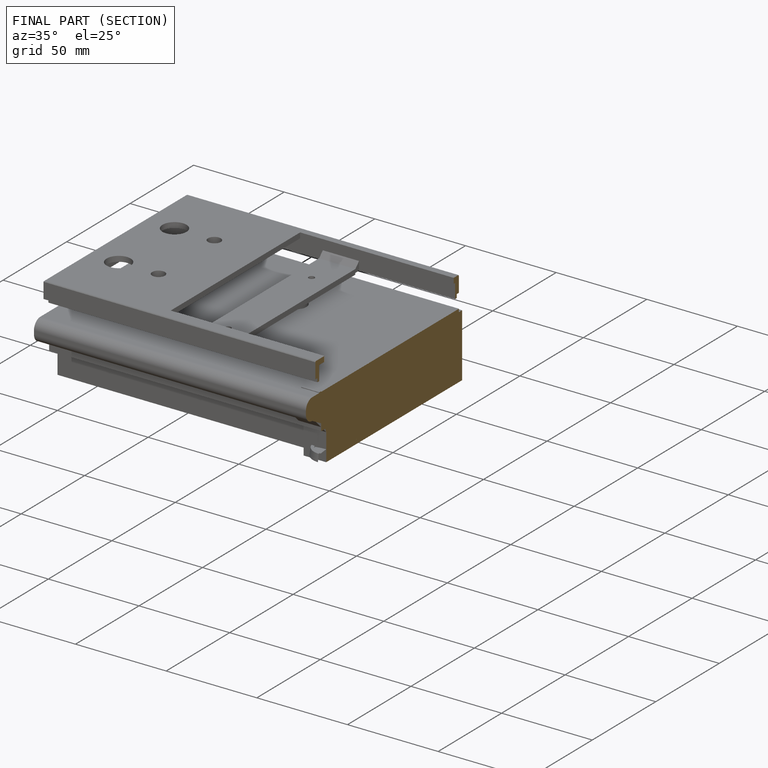
[diagram: finished part — half-section view (interior)]
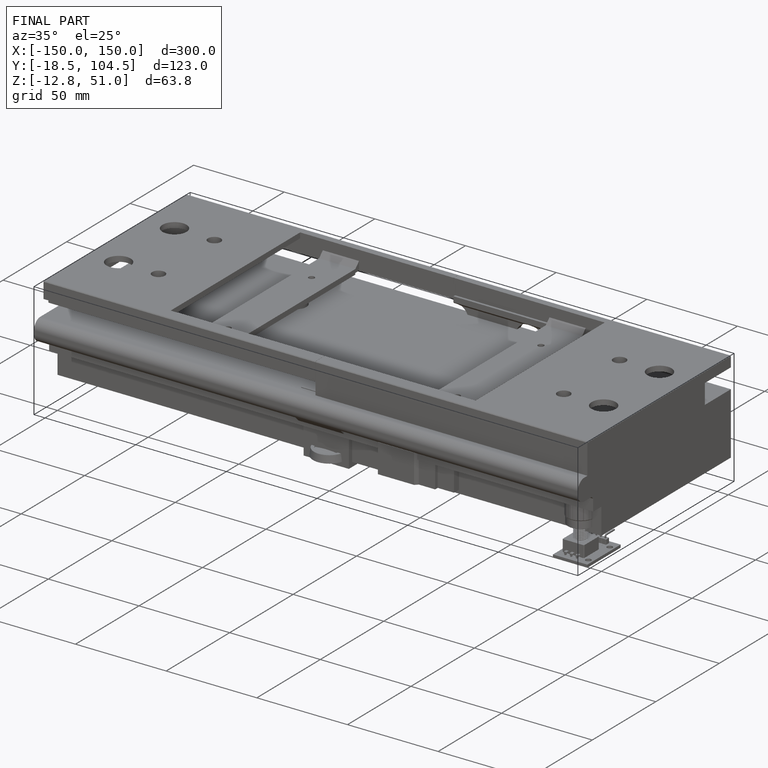
[diagram: finished part — iso view with bounding-box wireframe]
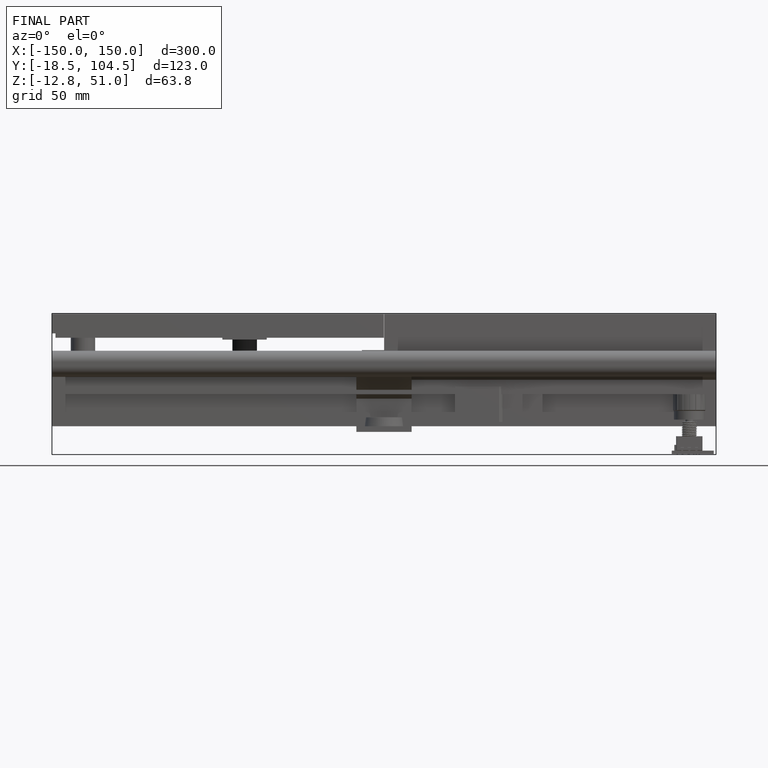
[diagram: finished part — front view with bounding-box wireframe]
